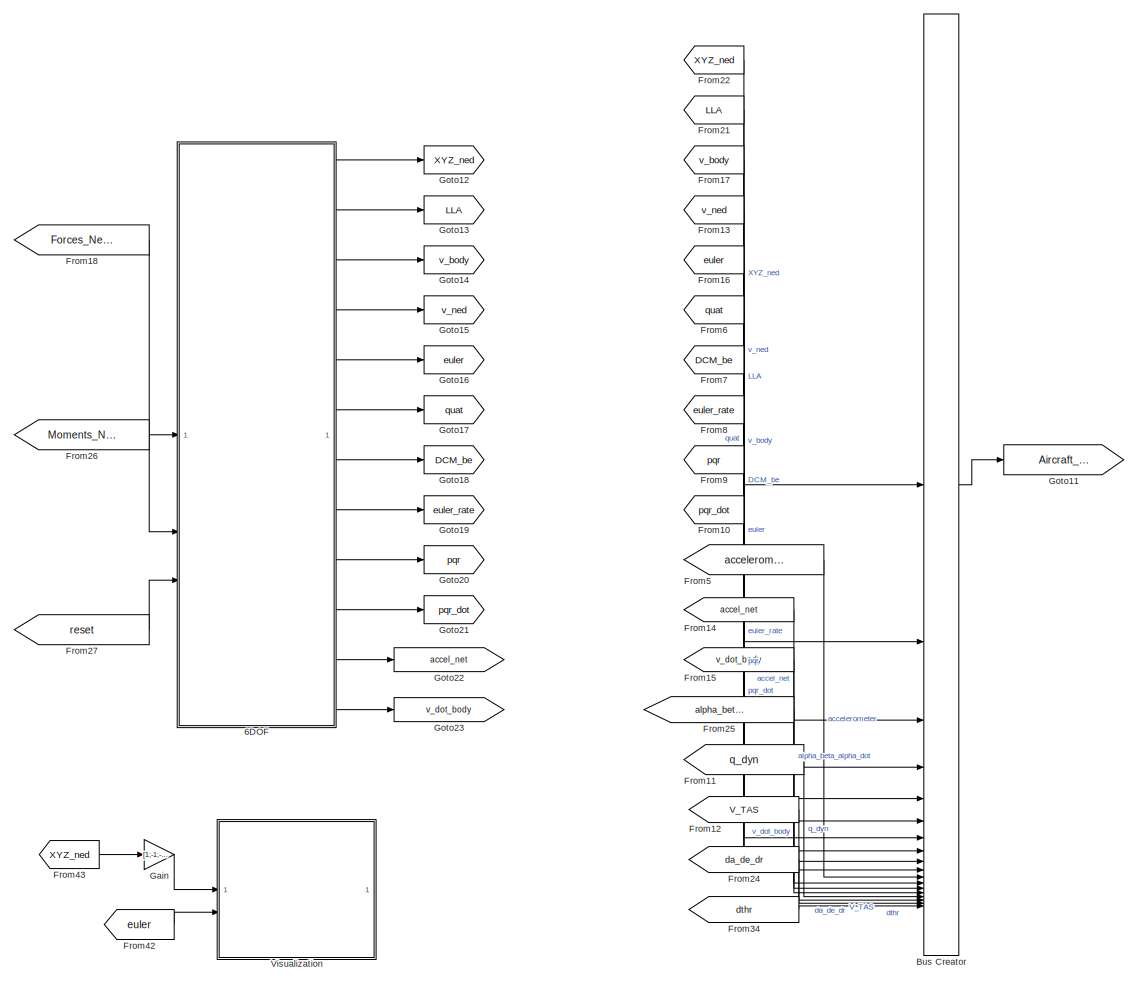
[diagram: root canvas - part 1/4, right side, full height]
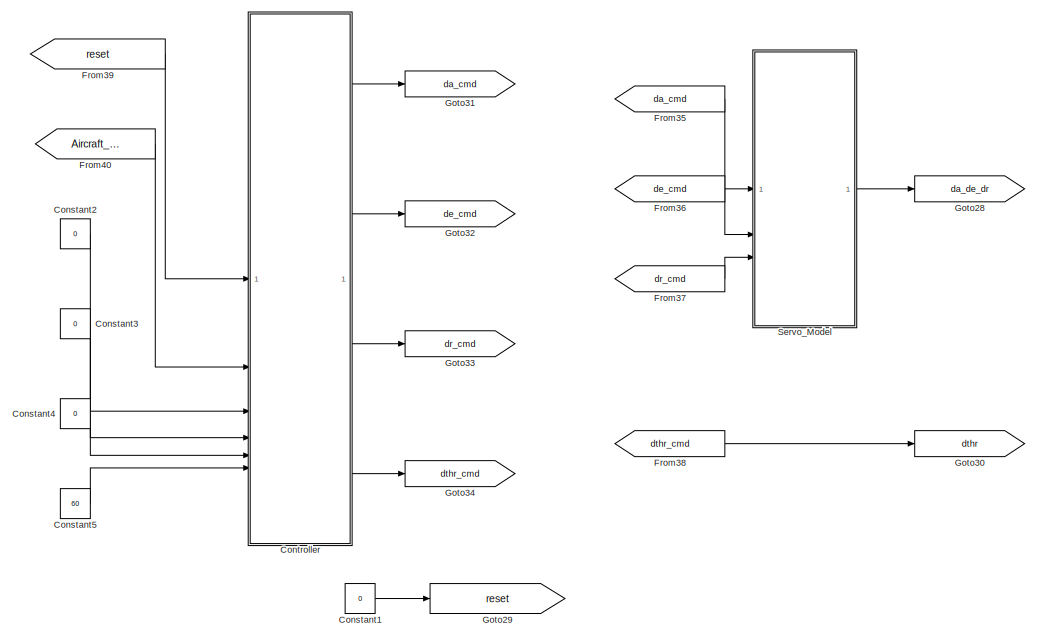
[diagram: root canvas - part 2/4, middle left region]
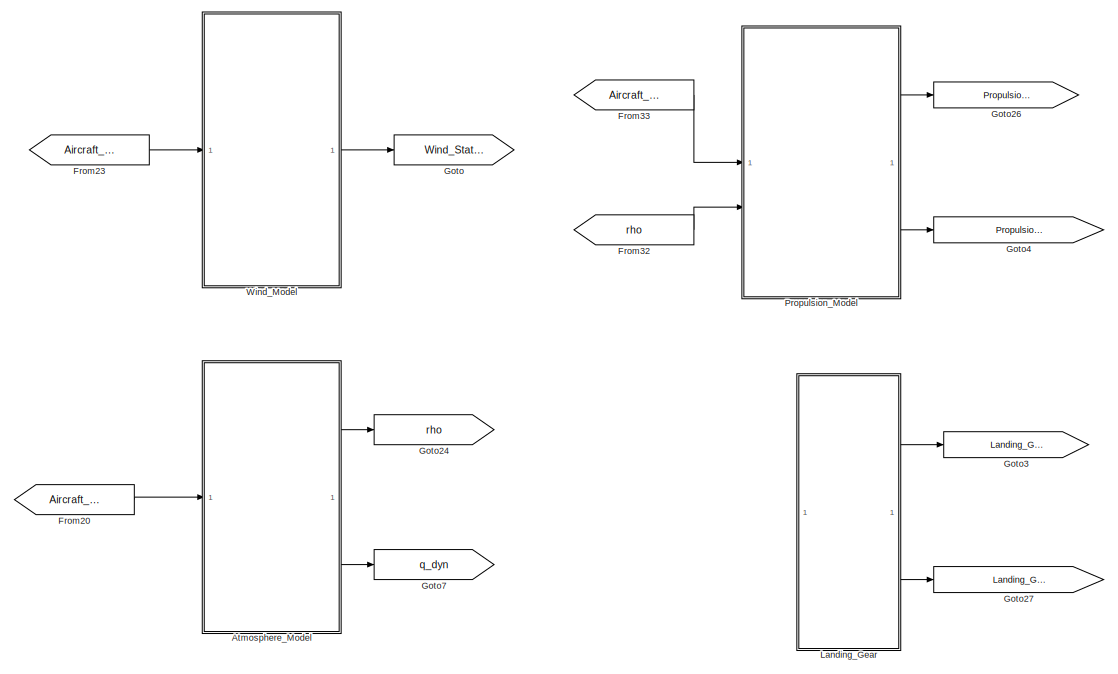
[diagram: root canvas - part 3/4, central region]
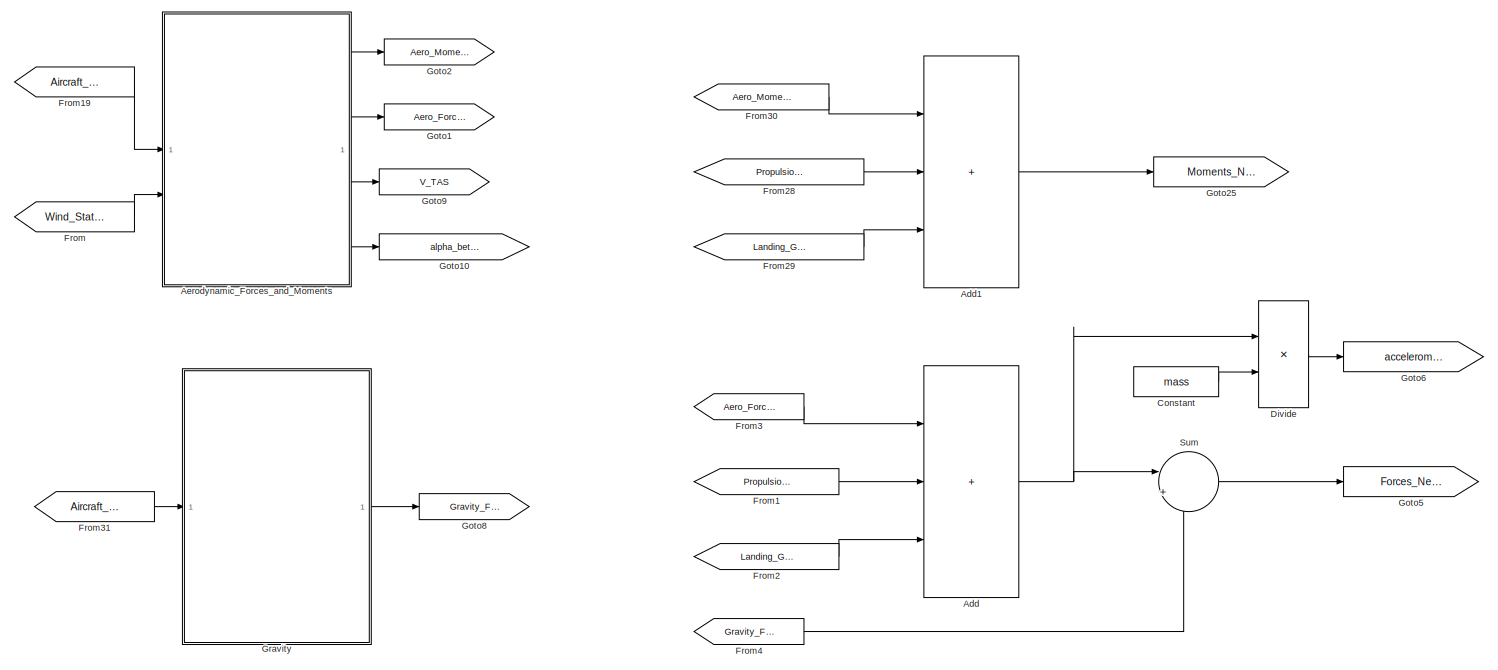
[diagram: root canvas - part 4/4, central region]
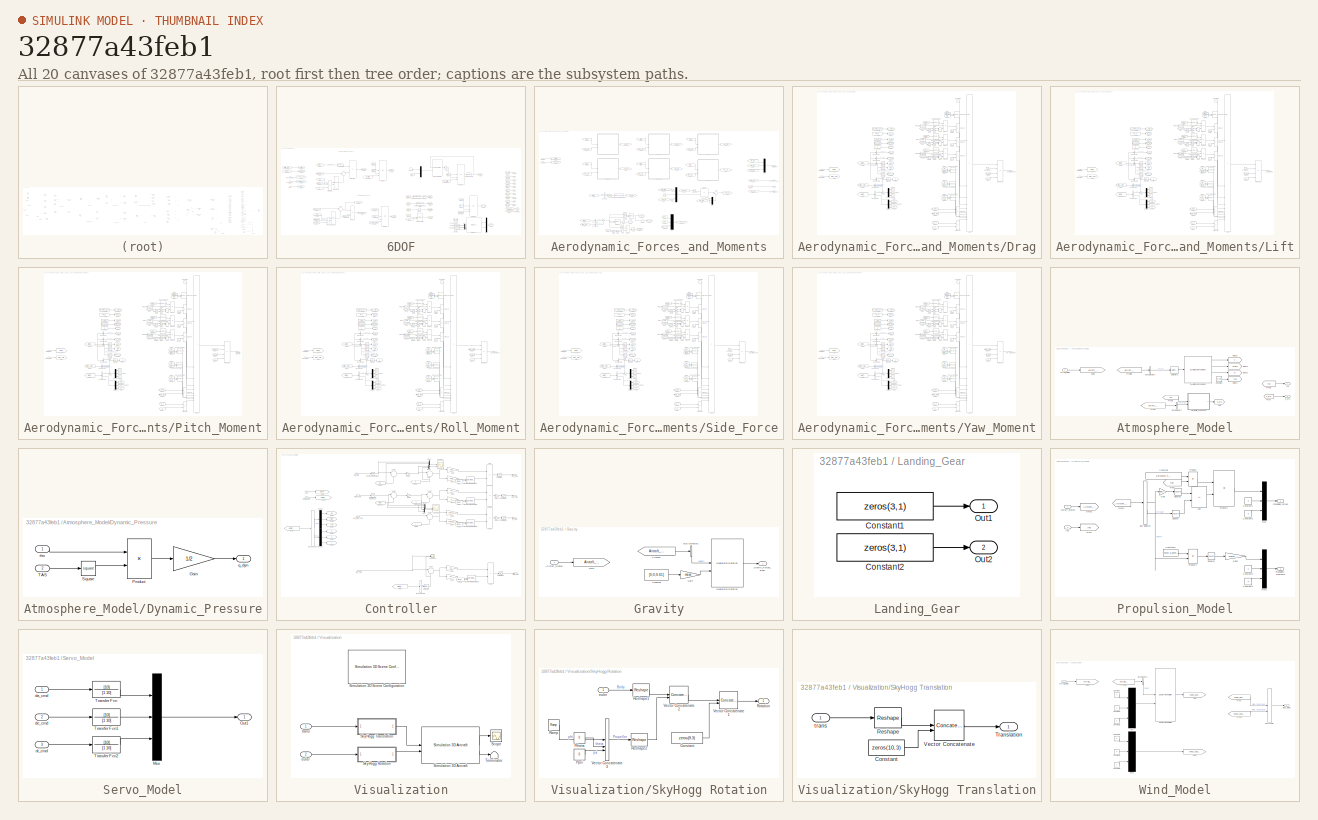
[diagram: thumbnail index - all 20 canvases of the model, root first then tree order]
MODEL slx_32877a43feb1
KIND model
CONFIG AbsTol = auto
CONFIG EnableMultiTasking = off
CONFIG FixedStep = model_sampling_time
CONFIG InitFcn = run("Parameters.m")\n
CONFIG MaxStep = auto
CONFIG MinStep = auto
CONFIG RelTol = 1e-3
CONFIG SampleTimeConstraint = Unconstrained
CONFIG SolverName = FixedStepAuto
CONFIG StartTime = 0.0
CONFIG StopTime = inf
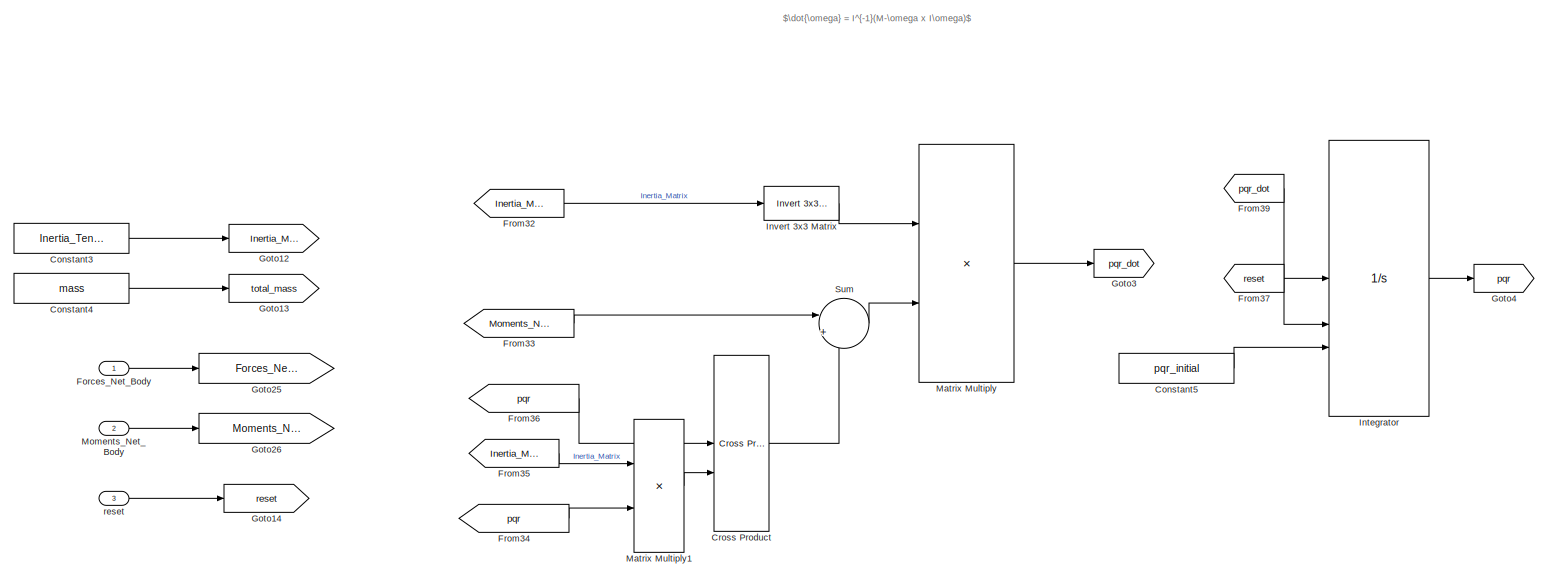
[diagram: 6DOF - part 1/5, top left region]
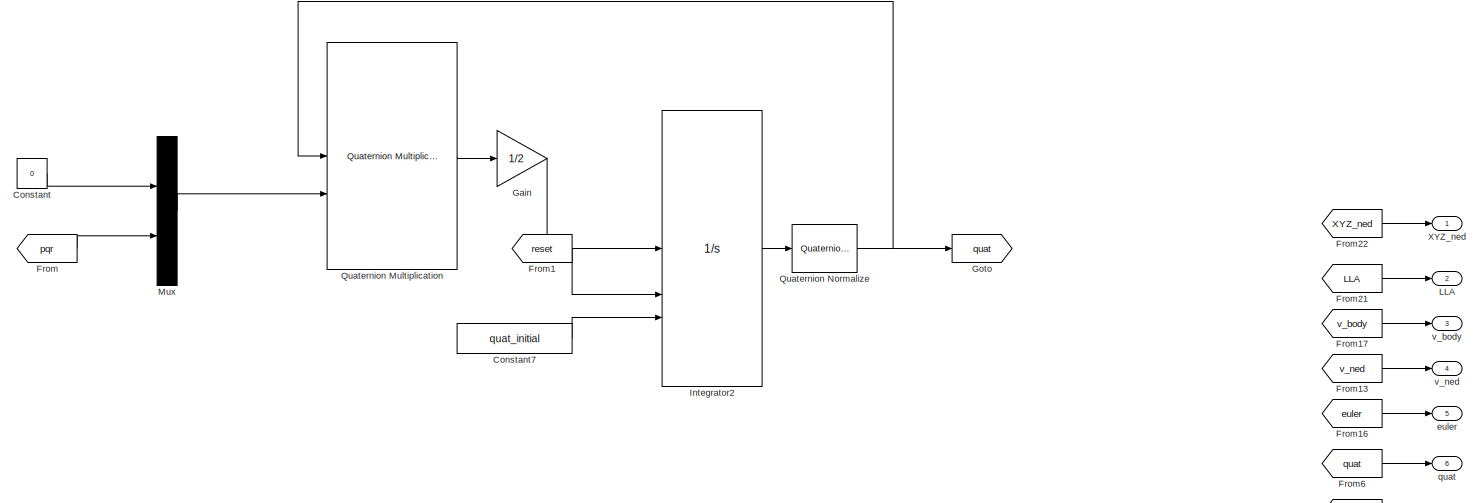
[diagram: 6DOF - part 2/5, top right region]
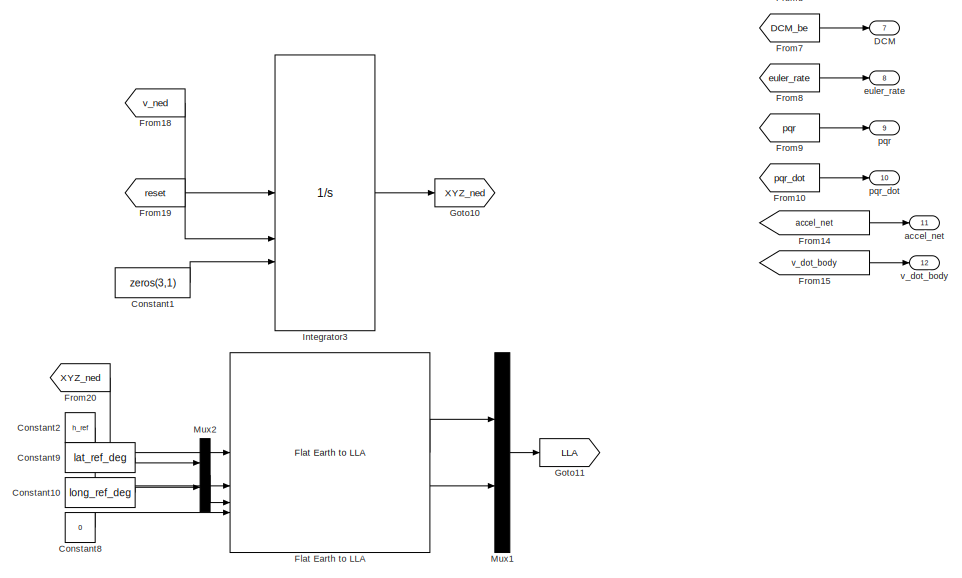
[diagram: 6DOF - part 3/5, bottom right region]
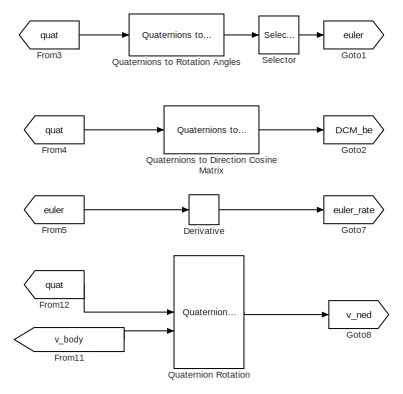
[diagram: 6DOF - part 4/5, bottom center region]
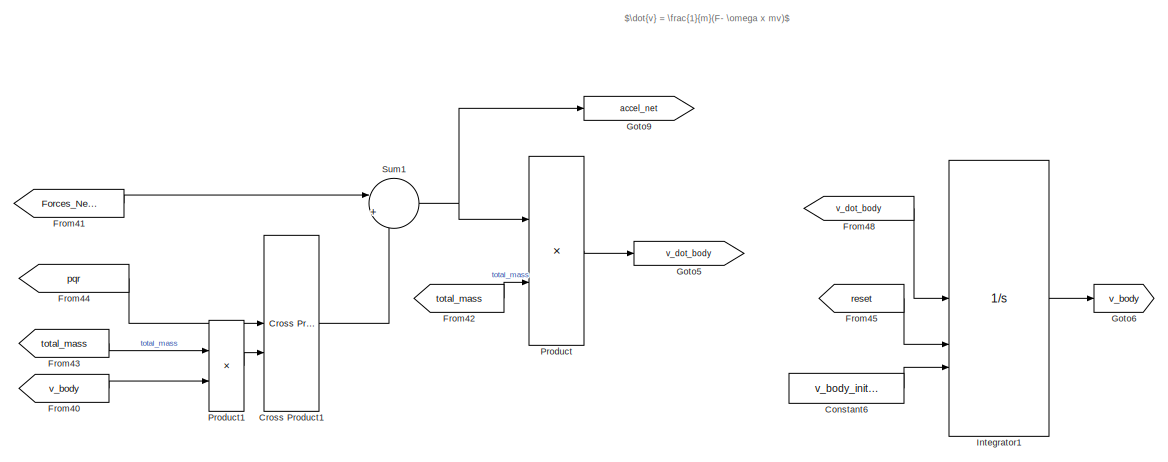
[diagram: 6DOF - part 5/5, bottom left region]
BLOCK [SubSystem] 6DOF
BLOCK [Constant] 6DOF/Constant
  Value = 0
BLOCK [Constant] 6DOF/Constant1
  Value = zeros(3,1)
BLOCK [Constant] 6DOF/Constant10
  Value = long_ref_deg
BLOCK [Constant] 6DOF/Constant2
  Value = h_ref
BLOCK [Constant] 6DOF/Constant3
  Value = Inertia_Tensor
BLOCK [Constant] 6DOF/Constant4
  Value = mass
BLOCK [Constant] 6DOF/Constant5
  Value = pqr_initial
BLOCK [Constant] 6DOF/Constant6
  Value = v_body_initial
BLOCK [Constant] 6DOF/Constant7
  Value = quat_initial
BLOCK [Constant] 6DOF/Constant8
  Value = 0
BLOCK [Constant] 6DOF/Constant9
  Value = lat_ref_deg
BLOCK [Reference] 6DOF/Cross Product  REF=matrix_library/Cross Product
  LibrarySourceBlock = simulink/Matrix\nOperations/Cross Product
  SourceBlock = matrix_library/Cross Product
  SourceType = CrossProduct
BLOCK [Reference] 6DOF/Cross Product1  REF=matrix_library/Cross Product
  LibrarySourceBlock = simulink/Matrix\nOperations/Cross Product
  SourceBlock = matrix_library/Cross Product
  SourceType = CrossProduct
BLOCK [Outport] 6DOF/DCM
  Port = 7
BLOCK [Derivative] 6DOF/Derivative
BLOCK [Reference] 6DOF/Flat Earth to LLA  REF=aerolibtransform2/Flat Earth to LLA
  SourceBlock = aerolibtransform2/Flat Earth to LLA
  SourceType = Flat Earth to LLA
BLOCK [Inport] 6DOF/Forces_Net_Body
BLOCK [From] 6DOF/From
  GotoTag = pqr
BLOCK [From] 6DOF/From1
  GotoTag = reset
BLOCK [From] 6DOF/From10
  GotoTag = pqr_dot
BLOCK [From] 6DOF/From11
  GotoTag = v_body
BLOCK [From] 6DOF/From12
  GotoTag = quat
BLOCK [From] 6DOF/From13
  GotoTag = v_ned
BLOCK [From] 6DOF/From14
  GotoTag = accel_net
BLOCK [From] 6DOF/From15
  GotoTag = v_dot_body
BLOCK [From] 6DOF/From16
  GotoTag = euler
BLOCK [From] 6DOF/From17
  GotoTag = v_body
BLOCK [From] 6DOF/From18
  GotoTag = v_ned
BLOCK [From] 6DOF/From19
  GotoTag = reset
BLOCK [From] 6DOF/From20
  GotoTag = XYZ_ned
BLOCK [From] 6DOF/From21
  GotoTag = LLA
BLOCK [From] 6DOF/From22
  GotoTag = XYZ_ned
BLOCK [From] 6DOF/From3
  GotoTag = quat
BLOCK [From] 6DOF/From32
  GotoTag = Inertia_Matrix
BLOCK [From] 6DOF/From33
  GotoTag = Moments_Net_Body
BLOCK [From] 6DOF/From34
  GotoTag = pqr
BLOCK [From] 6DOF/From35
  GotoTag = Inertia_Matrix
BLOCK [From] 6DOF/From36
  GotoTag = pqr
BLOCK [From] 6DOF/From37
  GotoTag = reset
BLOCK [From] 6DOF/From39
  GotoTag = pqr_dot
BLOCK [From] 6DOF/From4
  GotoTag = quat
BLOCK [From] 6DOF/From40
  GotoTag = v_body
BLOCK [From] 6DOF/From41
  GotoTag = Forces_Net_Body
BLOCK [From] 6DOF/From42
  GotoTag = total_mass
BLOCK [From] 6DOF/From43
  GotoTag = total_mass
BLOCK [From] 6DOF/From44
  GotoTag = pqr
BLOCK [From] 6DOF/From45
  GotoTag = reset
BLOCK [From] 6DOF/From48
  GotoTag = v_dot_body
BLOCK [From] 6DOF/From5
  GotoTag = euler
BLOCK [From] 6DOF/From6
  GotoTag = quat
BLOCK [From] 6DOF/From7
  GotoTag = DCM_be
BLOCK [From] 6DOF/From8
  GotoTag = euler_rate
BLOCK [From] 6DOF/From9
  GotoTag = pqr
BLOCK [Gain] 6DOF/Gain
  Gain = 1/2
BLOCK [Goto] 6DOF/Goto
  GotoTag = quat
BLOCK [Goto] 6DOF/Goto1
  GotoTag = euler
BLOCK [Goto] 6DOF/Goto10
  GotoTag = XYZ_ned
BLOCK [Goto] 6DOF/Goto11
  GotoTag = LLA
BLOCK [Goto] 6DOF/Goto12
  GotoTag = Inertia_Matrix
BLOCK [Goto] 6DOF/Goto13
  GotoTag = total_mass
BLOCK [Goto] 6DOF/Goto14
  GotoTag = reset
BLOCK [Goto] 6DOF/Goto2
  GotoTag = DCM_be
BLOCK [Goto] 6DOF/Goto25
  GotoTag = Forces_Net_Body
BLOCK [Goto] 6DOF/Goto26
  GotoTag = Moments_Net_Body
BLOCK [Goto] 6DOF/Goto3
  GotoTag = pqr_dot
BLOCK [Goto] 6DOF/Goto4
  GotoTag = pqr
BLOCK [Goto] 6DOF/Goto5
  GotoTag = v_dot_body
BLOCK [Goto] 6DOF/Goto6
  GotoTag = v_body
BLOCK [Goto] 6DOF/Goto7
  GotoTag = euler_rate
BLOCK [Goto] 6DOF/Goto8
  GotoTag = v_ned
BLOCK [Goto] 6DOF/Goto9
  GotoTag = accel_net
BLOCK [Integrator] 6DOF/Integrator
  ExternalReset = rising
  InitialConditionSource = external
BLOCK [Integrator] 6DOF/Integrator1
  ExternalReset = rising
  InitialConditionSource = external
BLOCK [Integrator] 6DOF/Integrator2
  ExternalReset = rising
  InitialConditionSource = external
BLOCK [Integrator] 6DOF/Integrator3
  ExternalReset = rising
  InitialConditionSource = external
BLOCK [Reference] 6DOF/Invert 3x3 Matrix  REF=aerolibutil/Invert 
3x3 Matrix
  SourceBlock = aerolibutil/Invert \n3x3 Matrix
  SourceType = Invert 3x3 Matrix
BLOCK [Outport] 6DOF/LLA
  Port = 2
BLOCK [Product] 6DOF/Matrix Multiply
  Multiplication = Matrix(*)
BLOCK [Product] 6DOF/Matrix Multiply1
  Multiplication = Matrix(*)
BLOCK [Inport] 6DOF/Moments_Net_Body
  Port = 2
BLOCK [Mux] 6DOF/Mux
  DisplayOption = bar
  Inputs = 2
BLOCK [Mux] 6DOF/Mux1
  DisplayOption = bar
  Inputs = 2
BLOCK [Mux] 6DOF/Mux2
  DisplayOption = bar
  Inputs = 2
BLOCK [Product] 6DOF/Product
  Inputs = */
BLOCK [Product] 6DOF/Product1
BLOCK [Reference] 6DOF/Quaternion Multiplication  REF=aerolibutil/Quaternion
Multiplication
  SourceBlock = aerolibutil/Quaternion\nMultiplication
  SourceType = Quaternion Multiplication
BLOCK [Reference] 6DOF/Quaternion Normalize  REF=sharedutil/Quaternion
Normalize
  LibrarySourceBlock = aerolibutil/Quaternion\nNormalize
  SourceBlock = sharedutil/Quaternion\nNormalize
  SourceType = Quaternion Normalize
BLOCK [Reference] 6DOF/Quaternion Rotation  REF=aerolibutil/Quaternion
Rotation
  SourceBlock = aerolibutil/Quaternion\nRotation
  SourceType = Quaternion Rotation
BLOCK [Reference] 6DOF/Quaternions to Direction Cosine Matrix  REF=sharedtransform/Quaternions to 
Direction Cosine Matrix
  LibrarySourceBlock = aerolibtransform2/Quaternions to \nDirection Cosine Matrix
  SourceBlock = sharedtransform/Quaternions to \nDirection Cosine Matrix
  SourceType = Quaternion2DCM
BLOCK [Reference] 6DOF/Quaternions to Rotation Angles  REF=sharedtransform/Quaternions to Rotation Angles
  AttributesFormatString = Rotation Order: %<rotationOrder>
  LibrarySourceBlock = aerolibtransform2/Quaternions to Rotation Angles
  SourceBlock = sharedtransform/Quaternions to Rotation Angles
  SourceType = Quat2Ang
BLOCK [Selector] 6DOF/Selector
  IndexOptions = Index vector (dialog)
  Indices = [3 2 1]
  InputPortWidth = 3
  OutputSizes = 1
BLOCK [Sum] 6DOF/Sum
  Inputs = |+-
BLOCK [Sum] 6DOF/Sum1
  Inputs = |+-
BLOCK [Outport] 6DOF/XYZ_ned
BLOCK [Outport] 6DOF/accel_net
  Port = 11
BLOCK [Outport] 6DOF/euler
  Port = 5
BLOCK [Outport] 6DOF/euler_rate
  Port = 8
BLOCK [Outport] 6DOF/pqr
  Port = 9
BLOCK [Outport] 6DOF/pqr_dot
  Port = 10
BLOCK [Outport] 6DOF/quat
  Port = 6
BLOCK [Inport] 6DOF/reset
  Port = 3
BLOCK [Outport] 6DOF/v_body
  Port = 3
BLOCK [Outport] 6DOF/v_dot_body
  Port = 12
BLOCK [Outport] 6DOF/v_ned
  Port = 4
BLOCK [Sum] Add
  IconShape = rectangular
  Inputs = +++
BLOCK [Sum] Add1
  IconShape = rectangular
  Inputs = +++
BLOCK [SubSystem] Aerodynamic_Forces_and_Moments
BLOCK [Sum] Aerodynamic_Forces_and_Moments/Add2
  IconShape = rectangular
BLOCK [Outport] Aerodynamic_Forces_and_Moments/Aero_Forces_Body
  Port = 2
BLOCK [Outport] Aerodynamic_Forces_and_Moments/Aero_Moments_Body
BLOCK [Inport] Aerodynamic_Forces_and_Moments/Aircraft_States
BLOCK [Trigonometry] Aerodynamic_Forces_and_Moments/Asin
  Operator = asin
BLOCK [Trigonometry] Aerodynamic_Forces_and_Moments/Atan2
  Operator = atan2
BLOCK [BusSelector] Aerodynamic_Forces_and_Moments/Bus Selector
  OutputSignals = alpha_beta_alpha_dot
BLOCK [BusSelector] Aerodynamic_Forces_and_Moments/Bus Selector1
  OutputSignals = Wind_Linear_Body
BLOCK [BusSelector] Aerodynamic_Forces_and_Moments/Bus Selector2
  OutputSignals = v_body
BLOCK [Constant] Aerodynamic_Forces_and_Moments/Constant
  Value = 0
BLOCK [Constant] Aerodynamic_Forces_and_Moments/Constant1
  Value = 0
BLOCK [Derivative] Aerodynamic_Forces_and_Moments/Derivative
BLOCK [Reference] Aerodynamic_Forces_and_Moments/Direction Cosine Matrix Body to Wind  REF=aerolibtransform2/Direction Cosine Matrix
Body to Wind
  SourceBlock = aerolibtransform2/Direction Cosine Matrix\nBody to Wind
  SourceType = DCM Body to Wind
BLOCK [Product] Aerodynamic_Forces_and_Moments/Divide
  Inputs = */
BLOCK [DotProduct] Aerodynamic_Forces_and_Moments/Dot Product
  OutDataTypeStr = Inherit: Inherit via internal rule
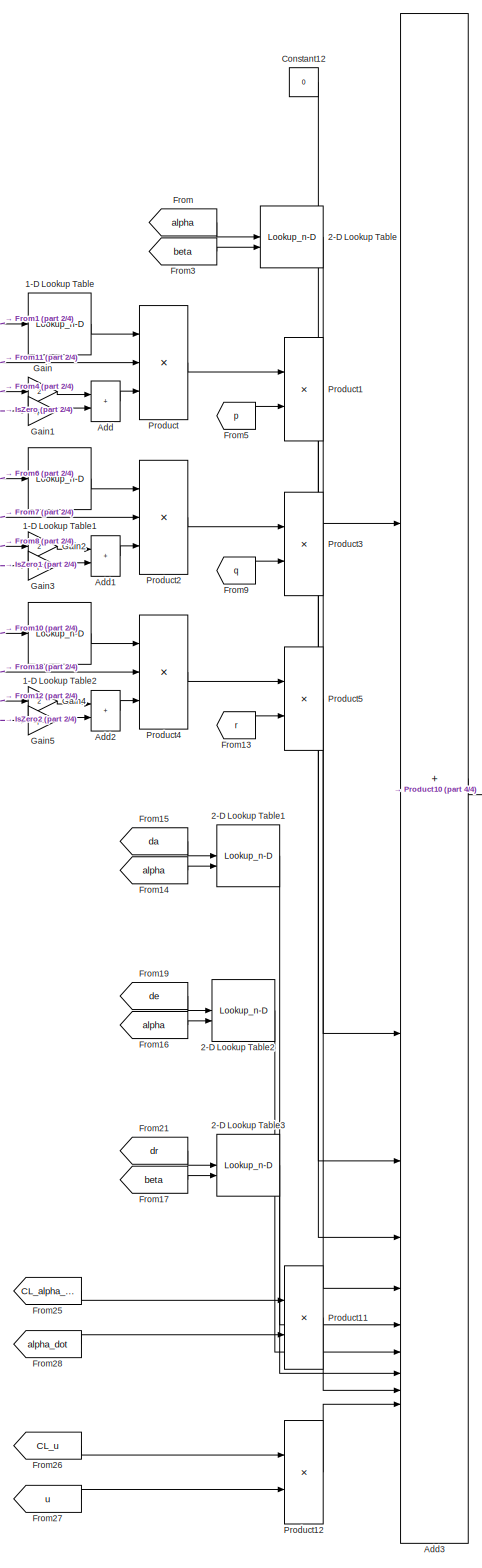
[diagram: Aerodynamic_Forces_and_Moments/Drag - part 1/4, right side, full height]
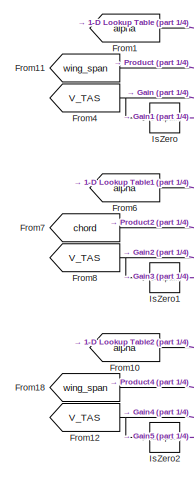
[diagram: Aerodynamic_Forces_and_Moments/Drag - part 2/4, central region]
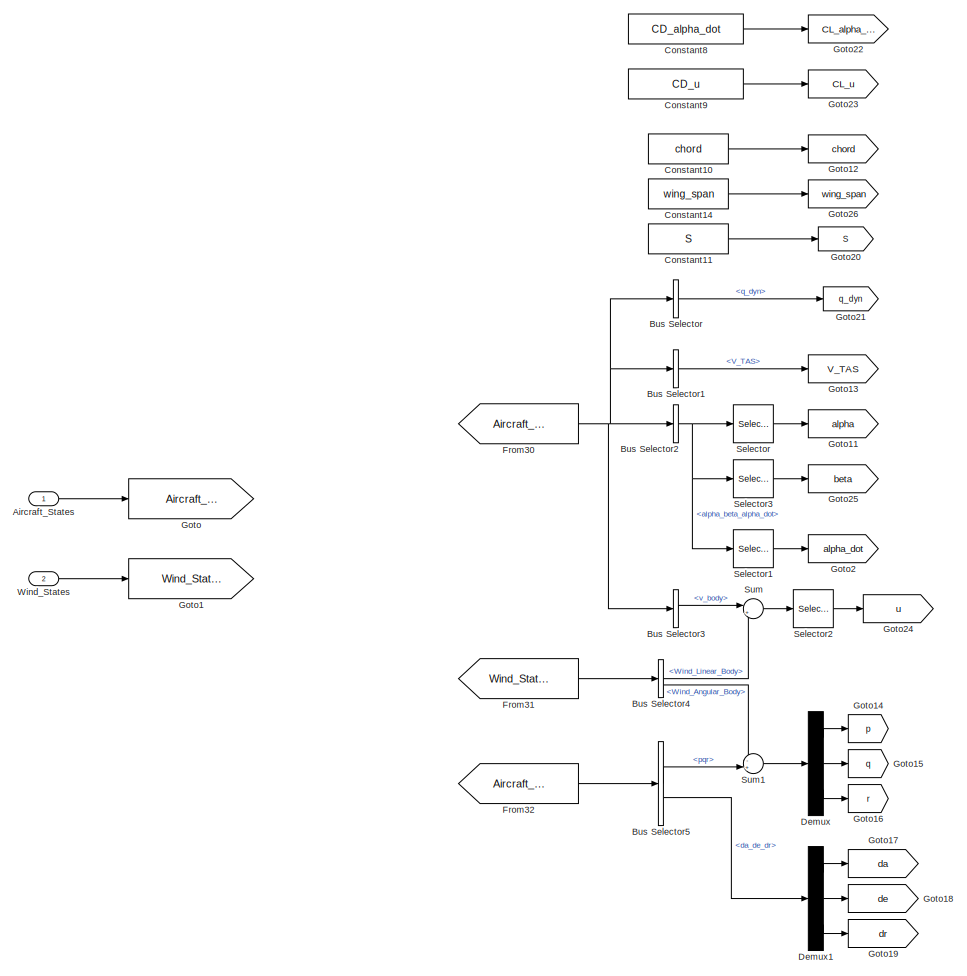
[diagram: Aerodynamic_Forces_and_Moments/Drag - part 3/4, middle left region]
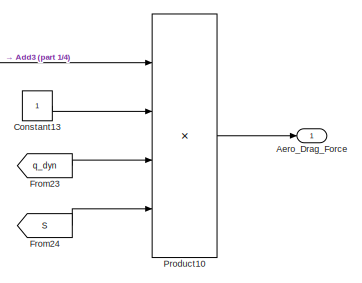
[diagram: Aerodynamic_Forces_and_Moments/Drag - part 4/4, middle right region]
BLOCK [SubSystem] Aerodynamic_Forces_and_Moments/Drag
BLOCK [Lookup_n-D] Aerodynamic_Forces_and_Moments/Drag/1-D Lookup Table
  BreakpointsForDimension1 = Alpha
  InputPortMap = u0
  InternalRulePriority = Speed
  NumberOfTableDimensions = 1
  RndMeth = Simplest
  Table = CDp
BLOCK [Lookup_n-D] Aerodynamic_Forces_and_Moments/Drag/1-D Lookup Table1
  BreakpointsForDimension1 = Alpha
  InputPortMap = u0
  InternalRulePriority = Speed
  NumberOfTableDimensions = 1
  RndMeth = Simplest
  Table = CDq
BLOCK [Lookup_n-D] Aerodynamic_Forces_and_Moments/Drag/1-D Lookup Table2
  BreakpointsForDimension1 = Alpha
  InputPortMap = u0
  InternalRulePriority = Speed
  NumberOfTableDimensions = 1
  RndMeth = Simplest
  Table = CDr
BLOCK [Lookup_n-D] Aerodynamic_Forces_and_Moments/Drag/2-D Lookup Table
  BreakpointsForDimension1 = Alpha
  BreakpointsForDimension2 = Beta
  InputPortMap = u0,u1
  InternalRulePriority = Speed
  RndMeth = Simplest
  Table = CD_alpha_beta
BLOCK [Lookup_n-D] Aerodynamic_Forces_and_Moments/Drag/2-D Lookup Table1
  BreakpointsForDimension1 = da
  BreakpointsForDimension2 = Alpha
  InputPortMap = u0,u1
  InternalRulePriority = Speed
  RndMeth = Simplest
  Table = CDda
BLOCK [Lookup_n-D] Aerodynamic_Forces_and_Moments/Drag/2-D Lookup Table2
  BreakpointsForDimension1 = da
  BreakpointsForDimension2 = Alpha
  InputPortMap = u0,u1
  InternalRulePriority = Speed
  RndMeth = Simplest
  Table = CDde
BLOCK [Lookup_n-D] Aerodynamic_Forces_and_Moments/Drag/2-D Lookup Table3
  BreakpointsForDimension1 = dr
  BreakpointsForDimension2 = Beta
  InputPortMap = u0,u1
  InternalRulePriority = Speed
  RndMeth = Simplest
  Table = CDdr
BLOCK [Sum] Aerodynamic_Forces_and_Moments/Drag/Add
  IconShape = rectangular
BLOCK [Sum] Aerodynamic_Forces_and_Moments/Drag/Add1
  IconShape = rectangular
BLOCK [Sum] Aerodynamic_Forces_and_Moments/Drag/Add2
  IconShape = rectangular
BLOCK [Sum] Aerodynamic_Forces_and_Moments/Drag/Add3
  IconShape = rectangular
  Inputs = 10
BLOCK [Outport] Aerodynamic_Forces_and_Moments/Drag/Aero_Drag_Force
  Unit = N*m
BLOCK [Inport] Aerodynamic_Forces_and_Moments/Drag/Aircraft_States
BLOCK [BusSelector] Aerodynamic_Forces_and_Moments/Drag/Bus Selector
  OutputSignals = q_dyn
BLOCK [BusSelector] Aerodynamic_Forces_and_Moments/Drag/Bus Selector1
  OutputSignals = V_TAS
BLOCK [BusSelector] Aerodynamic_Forces_and_Moments/Drag/Bus Selector2
  OutputSignals = alpha_beta_alpha_dot
BLOCK [BusSelector] Aerodynamic_Forces_and_Moments/Drag/Bus Selector3
  OutputSignals = v_body
BLOCK [BusSelector] Aerodynamic_Forces_and_Moments/Drag/Bus Selector4
  OutputSignals = Wind_Linear_Body,Wind_Angular_Body
BLOCK [BusSelector] Aerodynamic_Forces_and_Moments/Drag/Bus Selector5
  OutputSignals = pqr,da_de_dr
BLOCK [Constant] Aerodynamic_Forces_and_Moments/Drag/Constant10
  Value = chord
BLOCK [Constant] Aerodynamic_Forces_and_Moments/Drag/Constant11
  Value = S
BLOCK [Constant] Aerodynamic_Forces_and_Moments/Drag/Constant12
  Value = 0
BLOCK [Constant] Aerodynamic_Forces_and_Moments/Drag/Constant13
BLOCK [Constant] Aerodynamic_Forces_and_Moments/Drag/Constant14
  Value = wing_span
BLOCK [Constant] Aerodynamic_Forces_and_Moments/Drag/Constant8
  Value = CD_alpha_dot
BLOCK [Constant] Aerodynamic_Forces_and_Moments/Drag/Constant9
  Value = CD_u
BLOCK [Demux] Aerodynamic_Forces_and_Moments/Drag/Demux
  Outputs = 3
BLOCK [Demux] Aerodynamic_Forces_and_Moments/Drag/Demux1
  Outputs = 3
BLOCK [From] Aerodynamic_Forces_and_Moments/Drag/From
  GotoTag = alpha
BLOCK [From] Aerodynamic_Forces_and_Moments/Drag/From1
  GotoTag = alpha
BLOCK [From] Aerodynamic_Forces_and_Moments/Drag/From10
  GotoTag = alpha
BLOCK [From] Aerodynamic_Forces_and_Moments/Drag/From11
  GotoTag = wing_span
BLOCK [From] Aerodynamic_Forces_and_Moments/Drag/From12
  GotoTag = V_TAS
BLOCK [From] Aerodynamic_Forces_and_Moments/Drag/From13
  GotoTag = r
BLOCK [From] Aerodynamic_Forces_and_Moments/Drag/From14
  GotoTag = alpha
BLOCK [From] Aerodynamic_Forces_and_Moments/Drag/From15
  GotoTag = da
BLOCK [From] Aerodynamic_Forces_and_Moments/Drag/From16
  GotoTag = alpha
BLOCK [From] Aerodynamic_Forces_and_Moments/Drag/From17
  GotoTag = beta
BLOCK [From] Aerodynamic_Forces_and_Moments/Drag/From18
  GotoTag = wing_span
BLOCK [From] Aerodynamic_Forces_and_Moments/Drag/From19
  GotoTag = de
BLOCK [From] Aerodynamic_Forces_and_Moments/Drag/From21
  GotoTag = dr
BLOCK [From] Aerodynamic_Forces_and_Moments/Drag/From23
  GotoTag = q_dyn
BLOCK [From] Aerodynamic_Forces_and_Moments/Drag/From24
  GotoTag = S
BLOCK [From] Aerodynamic_Forces_and_Moments/Drag/From25
  GotoTag = CL_alpha_dot
BLOCK [From] Aerodynamic_Forces_and_Moments/Drag/From26
  GotoTag = CL_u
BLOCK [From] Aerodynamic_Forces_and_Moments/Drag/From27
  GotoTag = u
BLOCK [From] Aerodynamic_Forces_and_Moments/Drag/From28
  GotoTag = alpha_dot
BLOCK [From] Aerodynamic_Forces_and_Moments/Drag/From3
  GotoTag = beta
BLOCK [From] Aerodynamic_Forces_and_Moments/Drag/From30
  GotoTag = Aircraft_States
BLOCK [From] Aerodynamic_Forces_and_Moments/Drag/From31
  GotoTag = Wind_States
BLOCK [From] Aerodynamic_Forces_and_Moments/Drag/From32
  GotoTag = Aircraft_States
BLOCK [From] Aerodynamic_Forces_and_Moments/Drag/From4
  GotoTag = V_TAS
BLOCK [From] Aerodynamic_Forces_and_Moments/Drag/From5
  GotoTag = p
BLOCK [From] Aerodynamic_Forces_and_Moments/Drag/From6
  GotoTag = alpha
BLOCK [From] Aerodynamic_Forces_and_Moments/Drag/From7
  GotoTag = chord
BLOCK [From] Aerodynamic_Forces_and_Moments/Drag/From8
  GotoTag = V_TAS
BLOCK [From] Aerodynamic_Forces_and_Moments/Drag/From9
  GotoTag = q
BLOCK [Gain] Aerodynamic_Forces_and_Moments/Drag/Gain
  Gain = 2
BLOCK [Gain] Aerodynamic_Forces_and_Moments/Drag/Gain1
  Gain = eps
BLOCK [Gain] Aerodynamic_Forces_and_Moments/Drag/Gain2
  Gain = 2
BLOCK [Gain] Aerodynamic_Forces_and_Moments/Drag/Gain3
  Gain = eps
BLOCK [Gain] Aerodynamic_Forces_and_Moments/Drag/Gain4
  Gain = 2
BLOCK [Gain] Aerodynamic_Forces_and_Moments/Drag/Gain5
  Gain = eps
BLOCK [Goto] Aerodynamic_Forces_and_Moments/Drag/Goto
  GotoTag = Aircraft_States
BLOCK [Goto] Aerodynamic_Forces_and_Moments/Drag/Goto1
  GotoTag = Wind_States
BLOCK [Goto] Aerodynamic_Forces_and_Moments/Drag/Goto11
  GotoTag = alpha
BLOCK [Goto] Aerodynamic_Forces_and_Moments/Drag/Goto12
  GotoTag = chord
BLOCK [Goto] Aerodynamic_Forces_and_Moments/Drag/Goto13
  GotoTag = V_TAS
BLOCK [Goto] Aerodynamic_Forces_and_Moments/Drag/Goto14
  GotoTag = p
BLOCK [Goto] Aerodynamic_Forces_and_Moments/Drag/Goto15
  GotoTag = q
BLOCK [Goto] Aerodynamic_Forces_and_Moments/Drag/Goto16
  GotoTag = r
BLOCK [Goto] Aerodynamic_Forces_and_Moments/Drag/Goto17
  GotoTag = da
BLOCK [Goto] Aerodynamic_Forces_and_Moments/Drag/Goto18
  GotoTag = de
BLOCK [Goto] Aerodynamic_Forces_and_Moments/Drag/Goto19
  GotoTag = dr
BLOCK [Goto] Aerodynamic_Forces_and_Moments/Drag/Goto2
  GotoTag = alpha_dot
BLOCK [Goto] Aerodynamic_Forces_and_Moments/Drag/Goto20
  GotoTag = S
BLOCK [Goto] Aerodynamic_Forces_and_Moments/Drag/Goto21
  GotoTag = q_dyn
BLOCK [Goto] Aerodynamic_Forces_and_Moments/Drag/Goto22
  GotoTag = CL_alpha_dot
BLOCK [Goto] Aerodynamic_Forces_and_Moments/Drag/Goto23
  GotoTag = CL_u
BLOCK [Goto] Aerodynamic_Forces_and_Moments/Drag/Goto24
  GotoTag = u
BLOCK [Goto] Aerodynamic_Forces_and_Moments/Drag/Goto25
  GotoTag = beta
BLOCK [Goto] Aerodynamic_Forces_and_Moments/Drag/Goto26
  GotoTag = wing_span
BLOCK [Reference] Aerodynamic_Forces_and_Moments/Drag/IsZero  REF=simulink/Logic and Bit
Operations/Compare
To Zero
  LibrarySourceBlock = simulink/Quick Insert/Logic and Bit\nOperations/IsZero
  SourceBlock = simulink/Logic and Bit\nOperations/Compare\nTo Zero
  SourceType = Compare To Zero
BLOCK [Reference] Aerodynamic_Forces_and_Moments/Drag/IsZero1  REF=simulink/Logic and Bit
Operations/Compare
To Zero
  LibrarySourceBlock = simulink/Quick Insert/Logic and Bit\nOperations/IsZero
  SourceBlock = simulink/Logic and Bit\nOperations/Compare\nTo Zero
  SourceType = Compare To Zero
BLOCK [Reference] Aerodynamic_Forces_and_Moments/Drag/IsZero2  REF=simulink/Logic and Bit
Operations/Compare
To Zero
  LibrarySourceBlock = simulink/Quick Insert/Logic and Bit\nOperations/IsZero
  SourceBlock = simulink/Logic and Bit\nOperations/Compare\nTo Zero
  SourceType = Compare To Zero
BLOCK [Product] Aerodynamic_Forces_and_Moments/Drag/Product
  Inputs = **/
BLOCK [Product] Aerodynamic_Forces_and_Moments/Drag/Product1
BLOCK [Product] Aerodynamic_Forces_and_Moments/Drag/Product10
  Inputs = 4
BLOCK [Product] Aerodynamic_Forces_and_Moments/Drag/Product11
BLOCK [Product] Aerodynamic_Forces_and_Moments/Drag/Product12
BLOCK [Product] Aerodynamic_Forces_and_Moments/Drag/Product2
  Inputs = **/
BLOCK [Product] Aerodynamic_Forces_and_Moments/Drag/Product3
BLOCK [Product] Aerodynamic_Forces_and_Moments/Drag/Product4
  Inputs = **/
BLOCK [Product] Aerodynamic_Forces_and_Moments/Drag/Product5
BLOCK [Selector] Aerodynamic_Forces_and_Moments/Drag/Selector
  IndexOptions = Index vector (dialog)
  Indices = 1
  InputPortWidth = 3
  OutputSizes = 1
BLOCK [Selector] Aerodynamic_Forces_and_Moments/Drag/Selector1
  IndexOptions = Index vector (dialog)
  Indices = 3
  InputPortWidth = 3
  OutputSizes = 1
BLOCK [Selector] Aerodynamic_Forces_and_Moments/Drag/Selector2
  IndexOptions = Index vector (dialog)
  Indices = 1
  InputPortWidth = 3
  OutputSizes = 1
BLOCK [Selector] Aerodynamic_Forces_and_Moments/Drag/Selector3
  IndexOptions = Index vector (dialog)
  Indices = 2
  InputPortWidth = 3
  OutputSizes = 1
BLOCK [Sum] Aerodynamic_Forces_and_Moments/Drag/Sum
  Inputs = |+-
BLOCK [Sum] Aerodynamic_Forces_and_Moments/Drag/Sum1
  Inputs = -+|
BLOCK [Inport] Aerodynamic_Forces_and_Moments/Drag/Wind_States
  Port = 2
BLOCK [From] Aerodynamic_Forces_and_Moments/From
  GotoTag = Aircraft_States
BLOCK [From] Aerodynamic_Forces_and_Moments/From1
  GotoTag = Aircraft_States
BLOCK [From] Aerodynamic_Forces_and_Moments/From10
  GotoTag = Wind_States
BLOCK [From] Aerodynamic_Forces_and_Moments/From11
  GotoTag = Aero_Lift_Force
BLOCK [From] Aerodynamic_Forces_and_Moments/From12
  GotoTag = Aero_Drag_Force
BLOCK [From] Aerodynamic_Forces_and_Moments/From13
  GotoTag = DCM_wb
BLOCK [From] Aerodynamic_Forces_and_Moments/From14
  GotoTag = Wind_States
BLOCK [From] Aerodynamic_Forces_and_Moments/From15
  GotoTag = Aircraft_States
BLOCK [From] Aerodynamic_Forces_and_Moments/From16
  GotoTag = Aero_Side_Force
BLOCK [From] Aerodynamic_Forces_and_Moments/From17
  GotoTag = Aero_Roll_Moment
BLOCK [From] Aerodynamic_Forces_and_Moments/From18
  GotoTag = Aero_Pitch_Moment
BLOCK [From] Aerodynamic_Forces_and_Moments/From19
  GotoTag = Aero_Yaw_Moment
BLOCK [From] Aerodynamic_Forces_and_Moments/From2
  GotoTag = Wind_States
BLOCK [From] Aerodynamic_Forces_and_Moments/From20
  GotoTag = Aero_Forces_Body
BLOCK [From] Aerodynamic_Forces_and_Moments/From21
  GotoTag = Wind_States
BLOCK [From] Aerodynamic_Forces_and_Moments/From22
  GotoTag = V_TAS
BLOCK [From] Aerodynamic_Forces_and_Moments/From24
  GotoTag = alpha_dot
BLOCK [From] Aerodynamic_Forces_and_Moments/From25
  GotoTag = alpha_beta_alpha_dot
BLOCK [From] Aerodynamic_Forces_and_Moments/From3
  GotoTag = Aircraft_States
BLOCK [From] Aerodynamic_Forces_and_Moments/From4
  GotoTag = Wind_States
BLOCK [From] Aerodynamic_Forces_and_Moments/From5
  GotoTag = Aircraft_States
BLOCK [From] Aerodynamic_Forces_and_Moments/From6
  GotoTag = Wind_States
BLOCK [From] Aerodynamic_Forces_and_Moments/From7
  GotoTag = Aircraft_States
BLOCK [From] Aerodynamic_Forces_and_Moments/From8
  GotoTag = Wind_States
BLOCK [From] Aerodynamic_Forces_and_Moments/From85
  GotoTag = Aircraft_States
BLOCK [From] Aerodynamic_Forces_and_Moments/From86
  GotoTag = alpha
BLOCK [From] Aerodynamic_Forces_and_Moments/From87
  GotoTag = V_TAS
BLOCK [From] Aerodynamic_Forces_and_Moments/From88
  GotoTag = beta
BLOCK [From] Aerodynamic_Forces_and_Moments/From9
  GotoTag = Aircraft_States
BLOCK [Gain] Aerodynamic_Forces_and_Moments/Gain
  Gain = -1
BLOCK [Gain] Aerodynamic_Forces_and_Moments/Gain1
  Gain = -1
BLOCK [Gain] Aerodynamic_Forces_and_Moments/Gain5
  Gain = eps
BLOCK [Goto] Aerodynamic_Forces_and_Moments/Goto
  GotoTag = alpha_dot
BLOCK [Goto] Aerodynamic_Forces_and_Moments/Goto1
  GotoTag = Aircraft_States
BLOCK [Goto] Aerodynamic_Forces_and_Moments/Goto10
  GotoTag = alpha
BLOCK [Goto] Aerodynamic_Forces_and_Moments/Goto11
  GotoTag = beta
BLOCK [Goto] Aerodynamic_Forces_and_Moments/Goto12
  GotoTag = alpha_beta_alpha_dot
BLOCK [Goto] Aerodynamic_Forces_and_Moments/Goto13
  GotoTag = Aero_Forces_Body
BLOCK [Goto] Aerodynamic_Forces_and_Moments/Goto14
  GotoTag = Wind_States
BLOCK [Goto] Aerodynamic_Forces_and_Moments/Goto2
  GotoTag = Aero_Pitch_Moment
BLOCK [Goto] Aerodynamic_Forces_and_Moments/Goto3
  GotoTag = Aero_Roll_Moment
BLOCK [Goto] Aerodynamic_Forces_and_Moments/Goto4
  GotoTag = Aero_Yaw_Moment
BLOCK [Goto] Aerodynamic_Forces_and_Moments/Goto5
  GotoTag = Aero_Lift_Force
BLOCK [Goto] Aerodynamic_Forces_and_Moments/Goto6
  GotoTag = Aero_Side_Force
BLOCK [Goto] Aerodynamic_Forces_and_Moments/Goto7
  GotoTag = Aero_Drag_Force
BLOCK [Goto] Aerodynamic_Forces_and_Moments/Goto8
  GotoTag = DCM_wb
BLOCK [Goto] Aerodynamic_Forces_and_Moments/Goto9
  GotoTag = V_TAS
BLOCK [Reference] Aerodynamic_Forces_and_Moments/IsZero2  REF=simulink/Logic and Bit
Operations/Compare
To Zero
  LibrarySourceBlock = simulink/Quick Insert/Logic and Bit\nOperations/IsZero
  SourceBlock = simulink/Logic and Bit\nOperations/Compare\nTo Zero
  SourceType = Compare To Zero
BLOCK [SubSystem] Aerodynamic_Forces_and_Moments/Lift
BLOCK [Lookup_n-D] Aerodynamic_Forces_and_Moments/Lift/1-D Lookup Table
  BreakpointsForDimension1 = Alpha
  InputPortMap = u0
  InternalRulePriority = Speed
  NumberOfTableDimensions = 1
  RndMeth = Simplest
  Table = CLp
BLOCK [Lookup_n-D] Aerodynamic_Forces_and_Moments/Lift/1-D Lookup Table1
  BreakpointsForDimension1 = Alpha
  InputPortMap = u0
  InternalRulePriority = Speed
  NumberOfTableDimensions = 1
  RndMeth = Simplest
  Table = CLq
BLOCK [Lookup_n-D] Aerodynamic_Forces_and_Moments/Lift/1-D Lookup Table2
  BreakpointsForDimension1 = Alpha
  InputPortMap = u0
  InternalRulePriority = Speed
  NumberOfTableDimensions = 1
  RndMeth = Simplest
  Table = CLr
BLOCK [Lookup_n-D] Aerodynamic_Forces_and_Moments/Lift/2-D Lookup Table
  BreakpointsForDimension1 = Alpha
  BreakpointsForDimension2 = Beta
  InputPortMap = u0,u1
  InternalRulePriority = Speed
  RndMeth = Simplest
  Table = CL_alpha_beta
BLOCK [Lookup_n-D] Aerodynamic_Forces_and_Moments/Lift/2-D Lookup Table1
  BreakpointsForDimension1 = da
  BreakpointsForDimension2 = Alpha
  InputPortMap = u0,u1
  InternalRulePriority = Speed
  RndMeth = Simplest
  Table = CLda
BLOCK [Lookup_n-D] Aerodynamic_Forces_and_Moments/Lift/2-D Lookup Table2
  BreakpointsForDimension1 = da
  BreakpointsForDimension2 = Alpha
  InputPortMap = u0,u1
  InternalRulePriority = Speed
  RndMeth = Simplest
  Table = CLde
BLOCK [Lookup_n-D] Aerodynamic_Forces_and_Moments/Lift/2-D Lookup Table3
  BreakpointsForDimension1 = dr
  BreakpointsForDimension2 = Beta
  InputPortMap = u0,u1
  InternalRulePriority = Speed
  RndMeth = Simplest
  Table = CLdr
BLOCK [Sum] Aerodynamic_Forces_and_Moments/Lift/Add
  IconShape = rectangular
BLOCK [Sum] Aerodynamic_Forces_and_Moments/Lift/Add1
  IconShape = rectangular
BLOCK [Sum] Aerodynamic_Forces_and_Moments/Lift/Add2
  IconShape = rectangular
BLOCK [Sum] Aerodynamic_Forces_and_Moments/Lift/Add3
  IconShape = rectangular
  Inputs = 10
BLOCK [Outport] Aerodynamic_Forces_and_Moments/Lift/Aero_Lift_Force
  Unit = N*m
BLOCK [Inport] Aerodynamic_Forces_and_Moments/Lift/Aircraft_States
BLOCK [BusSelector] Aerodynamic_Forces_and_Moments/Lift/Bus Selector
  OutputSignals = q_dyn
BLOCK [BusSelector] Aerodynamic_Forces_and_Moments/Lift/Bus Selector1
  OutputSignals = V_TAS
BLOCK [BusSelector] Aerodynamic_Forces_and_Moments/Lift/Bus Selector2
  OutputSignals = alpha_beta_alpha_dot
BLOCK [BusSelector] Aerodynamic_Forces_and_Moments/Lift/Bus Selector3
  OutputSignals = v_body
BLOCK [BusSelector] Aerodynamic_Forces_and_Moments/Lift/Bus Selector4
  OutputSignals = Wind_Linear_Body,Wind_Angular_Body
BLOCK [BusSelector] Aerodynamic_Forces_and_Moments/Lift/Bus Selector5
  OutputSignals = pqr,da_de_dr
BLOCK [Constant] Aerodynamic_Forces_and_Moments/Lift/Constant10
  Value = chord
BLOCK [Constant] Aerodynamic_Forces_and_Moments/Lift/Constant11
  Value = S
BLOCK [Constant] Aerodynamic_Forces_and_Moments/Lift/Constant12
  Value = 0
BLOCK [Constant] Aerodynamic_Forces_and_Moments/Lift/Constant13
BLOCK [Constant] Aerodynamic_Forces_and_Moments/Lift/Constant14
  Value = wing_span
BLOCK [Constant] Aerodynamic_Forces_and_Moments/Lift/Constant8
  Value = CL_alpha_dot
BLOCK [Constant] Aerodynamic_Forces_and_Moments/Lift/Constant9
  Value = CL_u
BLOCK [Demux] Aerodynamic_Forces_and_Moments/Lift/Demux
  Outputs = 3
BLOCK [Demux] Aerodynamic_Forces_and_Moments/Lift/Demux1
  Outputs = 3
BLOCK [From] Aerodynamic_Forces_and_Moments/Lift/From
  GotoTag = alpha
BLOCK [From] Aerodynamic_Forces_and_Moments/Lift/From1
  GotoTag = alpha
BLOCK [From] Aerodynamic_Forces_and_Moments/Lift/From10
  GotoTag = alpha
BLOCK [From] Aerodynamic_Forces_and_Moments/Lift/From11
  GotoTag = wing_span
BLOCK [From] Aerodynamic_Forces_and_Moments/Lift/From12
  GotoTag = V_TAS
BLOCK [From] Aerodynamic_Forces_and_Moments/Lift/From13
  GotoTag = r
BLOCK [From] Aerodynamic_Forces_and_Moments/Lift/From14
  GotoTag = alpha
BLOCK [From] Aerodynamic_Forces_and_Moments/Lift/From15
  GotoTag = da
BLOCK [From] Aerodynamic_Forces_and_Moments/Lift/From16
  GotoTag = alpha
BLOCK [From] Aerodynamic_Forces_and_Moments/Lift/From17
  GotoTag = beta
BLOCK [From] Aerodynamic_Forces_and_Moments/Lift/From18
  GotoTag = wing_span
BLOCK [From] Aerodynamic_Forces_and_Moments/Lift/From19
  GotoTag = de
BLOCK [From] Aerodynamic_Forces_and_Moments/Lift/From21
  GotoTag = dr
BLOCK [From] Aerodynamic_Forces_and_Moments/Lift/From23
  GotoTag = q_dyn
BLOCK [From] Aerodynamic_Forces_and_Moments/Lift/From24
  GotoTag = S
BLOCK [From] Aerodynamic_Forces_and_Moments/Lift/From25
  GotoTag = CL_alpha_dot
BLOCK [From] Aerodynamic_Forces_and_Moments/Lift/From26
  GotoTag = CL_u
BLOCK [From] Aerodynamic_Forces_and_Moments/Lift/From27
  GotoTag = u
BLOCK [From] Aerodynamic_Forces_and_Moments/Lift/From28
  GotoTag = alpha_dot
BLOCK [From] Aerodynamic_Forces_and_Moments/Lift/From3
  GotoTag = beta
BLOCK [From] Aerodynamic_Forces_and_Moments/Lift/From30
  GotoTag = Aircraft_States
BLOCK [From] Aerodynamic_Forces_and_Moments/Lift/From31
  GotoTag = Wind_States
BLOCK [From] Aerodynamic_Forces_and_Moments/Lift/From32
  GotoTag = Aircraft_States
BLOCK [From] Aerodynamic_Forces_and_Moments/Lift/From4
  GotoTag = V_TAS
BLOCK [From] Aerodynamic_Forces_and_Moments/Lift/From5
  GotoTag = p
BLOCK [From] Aerodynamic_Forces_and_Moments/Lift/From6
  GotoTag = alpha
BLOCK [From] Aerodynamic_Forces_and_Moments/Lift/From7
  GotoTag = chord
BLOCK [From] Aerodynamic_Forces_and_Moments/Lift/From8
  GotoTag = V_TAS
BLOCK [From] Aerodynamic_Forces_and_Moments/Lift/From9
  GotoTag = q
BLOCK [Gain] Aerodynamic_Forces_and_Moments/Lift/Gain
  Gain = 2
BLOCK [Gain] Aerodynamic_Forces_and_Moments/Lift/Gain1
  Gain = eps
BLOCK [Gain] Aerodynamic_Forces_and_Moments/Lift/Gain2
  Gain = 2
BLOCK [Gain] Aerodynamic_Forces_and_Moments/Lift/Gain3
  Gain = eps
BLOCK [Gain] Aerodynamic_Forces_and_Moments/Lift/Gain4
  Gain = 2
BLOCK [Gain] Aerodynamic_Forces_and_Moments/Lift/Gain5
  Gain = eps
BLOCK [Goto] Aerodynamic_Forces_and_Moments/Lift/Goto
  GotoTag = Aircraft_States
BLOCK [Goto] Aerodynamic_Forces_and_Moments/Lift/Goto1
  GotoTag = Wind_States
BLOCK [Goto] Aerodynamic_Forces_and_Moments/Lift/Goto11
  GotoTag = alpha
BLOCK [Goto] Aerodynamic_Forces_and_Moments/Lift/Goto12
  GotoTag = chord
BLOCK [Goto] Aerodynamic_Forces_and_Moments/Lift/Goto13
  GotoTag = V_TAS
BLOCK [Goto] Aerodynamic_Forces_and_Moments/Lift/Goto14
  GotoTag = p
BLOCK [Goto] Aerodynamic_Forces_and_Moments/Lift/Goto15
  GotoTag = q
BLOCK [Goto] Aerodynamic_Forces_and_Moments/Lift/Goto16
  GotoTag = r
BLOCK [Goto] Aerodynamic_Forces_and_Moments/Lift/Goto17
  GotoTag = da
BLOCK [Goto] Aerodynamic_Forces_and_Moments/Lift/Goto18
  GotoTag = de
BLOCK [Goto] Aerodynamic_Forces_and_Moments/Lift/Goto19
  GotoTag = dr
BLOCK [Goto] Aerodynamic_Forces_and_Moments/Lift/Goto2
  GotoTag = alpha_dot
BLOCK [Goto] Aerodynamic_Forces_and_Moments/Lift/Goto20
  GotoTag = S
BLOCK [Goto] Aerodynamic_Forces_and_Moments/Lift/Goto21
  GotoTag = q_dyn
BLOCK [Goto] Aerodynamic_Forces_and_Moments/Lift/Goto22
  GotoTag = CL_alpha_dot
BLOCK [Goto] Aerodynamic_Forces_and_Moments/Lift/Goto23
  GotoTag = CL_u
BLOCK [Goto] Aerodynamic_Forces_and_Moments/Lift/Goto24
  GotoTag = u
BLOCK [Goto] Aerodynamic_Forces_and_Moments/Lift/Goto25
  GotoTag = beta
BLOCK [Goto] Aerodynamic_Forces_and_Moments/Lift/Goto26
  GotoTag = wing_span
BLOCK [Reference] Aerodynamic_Forces_and_Moments/Lift/IsZero  REF=simulink/Logic and Bit
Operations/Compare
To Zero
  LibrarySourceBlock = simulink/Quick Insert/Logic and Bit\nOperations/IsZero
  SourceBlock = simulink/Logic and Bit\nOperations/Compare\nTo Zero
  SourceType = Compare To Zero
BLOCK [Reference] Aerodynamic_Forces_and_Moments/Lift/IsZero1  REF=simulink/Logic and Bit
Operations/Compare
To Zero
  LibrarySourceBlock = simulink/Quick Insert/Logic and Bit\nOperations/IsZero
  SourceBlock = simulink/Logic and Bit\nOperations/Compare\nTo Zero
  SourceType = Compare To Zero
BLOCK [Reference] Aerodynamic_Forces_and_Moments/Lift/IsZero2  REF=simulink/Logic and Bit
Operations/Compare
To Zero
  LibrarySourceBlock = simulink/Quick Insert/Logic and Bit\nOperations/IsZero
  SourceBlock = simulink/Logic and Bit\nOperations/Compare\nTo Zero
  SourceType = Compare To Zero
BLOCK [Product] Aerodynamic_Forces_and_Moments/Lift/Product
  Inputs = **/
BLOCK [Product] Aerodynamic_Forces_and_Moments/Lift/Product1
BLOCK [Product] Aerodynamic_Forces_and_Moments/Lift/Product10
  Inputs = 4
BLOCK [Product] Aerodynamic_Forces_and_Moments/Lift/Product11
BLOCK [Product] Aerodynamic_Forces_and_Moments/Lift/Product12
BLOCK [Product] Aerodynamic_Forces_and_Moments/Lift/Product2
  Inputs = **/
BLOCK [Product] Aerodynamic_Forces_and_Moments/Lift/Product3
BLOCK [Product] Aerodynamic_Forces_and_Moments/Lift/Product4
  Inputs = **/
BLOCK [Product] Aerodynamic_Forces_and_Moments/Lift/Product5
BLOCK [Selector] Aerodynamic_Forces_and_Moments/Lift/Selector
  IndexOptions = Index vector (dialog)
  Indices = 1
  InputPortWidth = 3
  OutputSizes = 1
BLOCK [Selector] Aerodynamic_Forces_and_Moments/Lift/Selector1
  IndexOptions = Index vector (dialog)
  Indices = 3
  InputPortWidth = 3
  OutputSizes = 1
BLOCK [Selector] Aerodynamic_Forces_and_Moments/Lift/Selector2
  IndexOptions = Index vector (dialog)
  Indices = 1
  InputPortWidth = 3
  OutputSizes = 1
BLOCK [Selector] Aerodynamic_Forces_and_Moments/Lift/Selector3
  IndexOptions = Index vector (dialog)
  Indices = 2
  InputPortWidth = 3
  OutputSizes = 1
BLOCK [Sum] Aerodynamic_Forces_and_Moments/Lift/Sum
  Inputs = |+-
BLOCK [Sum] Aerodynamic_Forces_and_Moments/Lift/Sum1
  Inputs = -+|
BLOCK [Inport] Aerodynamic_Forces_and_Moments/Lift/Wind_States
  Port = 2
BLOCK [Product] Aerodynamic_Forces_and_Moments/Matrix Multiply
  Multiplication = Matrix(*)
BLOCK [Mux] Aerodynamic_Forces_and_Moments/Mux
  DisplayOption = bar
  Inputs = 3
BLOCK [Mux] Aerodynamic_Forces_and_Moments/Mux1
  DisplayOption = bar
  Inputs = 3
BLOCK [Mux] Aerodynamic_Forces_and_Moments/Mux2
  DisplayOption = bar
  Inputs = 3
BLOCK [Mux] Aerodynamic_Forces_and_Moments/Mux3
  DisplayOption = bar
  Inputs = 3
BLOCK [SubSystem] Aerodynamic_Forces_and_Moments/Pitch_Moment
BLOCK [Lookup_n-D] Aerodynamic_Forces_and_Moments/Pitch_Moment/1-D Lookup Table
  BreakpointsForDimension1 = Alpha
  InputPortMap = u0
  InternalRulePriority = Speed
  NumberOfTableDimensions = 1
  RndMeth = Simplest
  Table = Cmp
BLOCK [Lookup_n-D] Aerodynamic_Forces_and_Moments/Pitch_Moment/1-D Lookup Table1
  BreakpointsForDimension1 = Alpha
  InputPortMap = u0
  InternalRulePriority = Speed
  NumberOfTableDimensions = 1
  RndMeth = Simplest
  Table = Cmq
BLOCK [Lookup_n-D] Aerodynamic_Forces_and_Moments/Pitch_Moment/1-D Lookup Table2
  BreakpointsForDimension1 = Alpha
  InputPortMap = u0
  InternalRulePriority = Speed
  NumberOfTableDimensions = 1
  RndMeth = Simplest
  Table = Cmr
BLOCK [Lookup_n-D] Aerodynamic_Forces_and_Moments/Pitch_Moment/2-D Lookup Table
  BreakpointsForDimension1 = Alpha
  BreakpointsForDimension2 = Beta
  InputPortMap = u0,u1
  InternalRulePriority = Speed
  RndMeth = Simplest
  Table = Cm_alpha_beta
BLOCK [Lookup_n-D] Aerodynamic_Forces_and_Moments/Pitch_Moment/2-D Lookup Table1
  BreakpointsForDimension1 = da
  BreakpointsForDimension2 = Alpha
  InputPortMap = u0,u1
  InternalRulePriority = Speed
  RndMeth = Simplest
  Table = Cmda
BLOCK [Lookup_n-D] Aerodynamic_Forces_and_Moments/Pitch_Moment/2-D Lookup Table2
  BreakpointsForDimension1 = da
  BreakpointsForDimension2 = Alpha
  InputPortMap = u0,u1
  InternalRulePriority = Speed
  RndMeth = Simplest
  Table = Cmde
BLOCK [Lookup_n-D] Aerodynamic_Forces_and_Moments/Pitch_Moment/2-D Lookup Table3
  BreakpointsForDimension1 = dr
  BreakpointsForDimension2 = Beta
  InputPortMap = u0,u1
  InternalRulePriority = Speed
  RndMeth = Simplest
  Table = Cmdr
BLOCK [Sum] Aerodynamic_Forces_and_Moments/Pitch_Moment/Add
  IconShape = rectangular
BLOCK [Sum] Aerodynamic_Forces_and_Moments/Pitch_Moment/Add1
  IconShape = rectangular
BLOCK [Sum] Aerodynamic_Forces_and_Moments/Pitch_Moment/Add2
  IconShape = rectangular
BLOCK [Sum] Aerodynamic_Forces_and_Moments/Pitch_Moment/Add3
  IconShape = rectangular
  Inputs = 10
BLOCK [Outport] Aerodynamic_Forces_and_Moments/Pitch_Moment/Aero_Pitch_Moment
  Unit = N*m
BLOCK [Inport] Aerodynamic_Forces_and_Moments/Pitch_Moment/Aircraft_States
BLOCK [BusSelector] Aerodynamic_Forces_and_Moments/Pitch_Moment/Bus Selector
  OutputSignals = q_dyn
BLOCK [BusSelector] Aerodynamic_Forces_and_Moments/Pitch_Moment/Bus Selector1
  OutputSignals = V_TAS
BLOCK [BusSelector] Aerodynamic_Forces_and_Moments/Pitch_Moment/Bus Selector2
  OutputSignals = alpha_beta_alpha_dot
BLOCK [BusSelector] Aerodynamic_Forces_and_Moments/Pitch_Moment/Bus Selector3
  OutputSignals = v_body
BLOCK [BusSelector] Aerodynamic_Forces_and_Moments/Pitch_Moment/Bus Selector4
  OutputSignals = Wind_Linear_Body,Wind_Angular_Body
BLOCK [BusSelector] Aerodynamic_Forces_and_Moments/Pitch_Moment/Bus Selector5
  OutputSignals = pqr,da_de_dr
BLOCK [Constant] Aerodynamic_Forces_and_Moments/Pitch_Moment/Constant10
  Value = chord
BLOCK [Constant] Aerodynamic_Forces_and_Moments/Pitch_Moment/Constant11
  Value = S
BLOCK [Constant] Aerodynamic_Forces_and_Moments/Pitch_Moment/Constant12
  Value = 0
BLOCK [Constant] Aerodynamic_Forces_and_Moments/Pitch_Moment/Constant14
  Value = wing_span
BLOCK [Constant] Aerodynamic_Forces_and_Moments/Pitch_Moment/Constant8
  Value = Cm_alpha_dot
BLOCK [Constant] Aerodynamic_Forces_and_Moments/Pitch_Moment/Constant9
  Value = Cm_u
BLOCK [Demux] Aerodynamic_Forces_and_Moments/Pitch_Moment/Demux
  Outputs = 3
BLOCK [Demux] Aerodynamic_Forces_and_Moments/Pitch_Moment/Demux1
  Outputs = 3
BLOCK [From] Aerodynamic_Forces_and_Moments/Pitch_Moment/From
  GotoTag = alpha
BLOCK [From] Aerodynamic_Forces_and_Moments/Pitch_Moment/From1
  GotoTag = alpha
BLOCK [From] Aerodynamic_Forces_and_Moments/Pitch_Moment/From10
  GotoTag = alpha
BLOCK [From] Aerodynamic_Forces_and_Moments/Pitch_Moment/From11
  GotoTag = wing_span
BLOCK [From] Aerodynamic_Forces_and_Moments/Pitch_Moment/From12
  GotoTag = V_TAS
BLOCK [From] Aerodynamic_Forces_and_Moments/Pitch_Moment/From13
  GotoTag = r
BLOCK [From] Aerodynamic_Forces_and_Moments/Pitch_Moment/From14
  GotoTag = alpha
BLOCK [From] Aerodynamic_Forces_and_Moments/Pitch_Moment/From15
  GotoTag = da
BLOCK [From] Aerodynamic_Forces_and_Moments/Pitch_Moment/From16
  GotoTag = alpha
BLOCK [From] Aerodynamic_Forces_and_Moments/Pitch_Moment/From17
  GotoTag = beta
BLOCK [From] Aerodynamic_Forces_and_Moments/Pitch_Moment/From18
  GotoTag = wing_span
BLOCK [From] Aerodynamic_Forces_and_Moments/Pitch_Moment/From19
  GotoTag = de
BLOCK [From] Aerodynamic_Forces_and_Moments/Pitch_Moment/From2
  GotoTag = chord
BLOCK [From] Aerodynamic_Forces_and_Moments/Pitch_Moment/From21
  GotoTag = dr
BLOCK [From] Aerodynamic_Forces_and_Moments/Pitch_Moment/From23
  GotoTag = q_dyn
BLOCK [From] Aerodynamic_Forces_and_Moments/Pitch_Moment/From24
  GotoTag = S
BLOCK [From] Aerodynamic_Forces_and_Moments/Pitch_Moment/From25
  GotoTag = CL_alpha_dot
BLOCK [From] Aerodynamic_Forces_and_Moments/Pitch_Moment/From26
  GotoTag = CL_u
BLOCK [From] Aerodynamic_Forces_and_Moments/Pitch_Moment/From27
  GotoTag = u
BLOCK [From] Aerodynamic_Forces_and_Moments/Pitch_Moment/From28
  GotoTag = alpha_dot
BLOCK [From] Aerodynamic_Forces_and_Moments/Pitch_Moment/From3
  GotoTag = beta
BLOCK [From] Aerodynamic_Forces_and_Moments/Pitch_Moment/From30
  GotoTag = Aircraft_States
BLOCK [From] Aerodynamic_Forces_and_Moments/Pitch_Moment/From31
  GotoTag = Wind_States
BLOCK [From] Aerodynamic_Forces_and_Moments/Pitch_Moment/From32
  GotoTag = Aircraft_States
BLOCK [From] Aerodynamic_Forces_and_Moments/Pitch_Moment/From4
  GotoTag = V_TAS
BLOCK [From] Aerodynamic_Forces_and_Moments/Pitch_Moment/From5
  GotoTag = p
BLOCK [From] Aerodynamic_Forces_and_Moments/Pitch_Moment/From6
  GotoTag = alpha
BLOCK [From] Aerodynamic_Forces_and_Moments/Pitch_Moment/From7
  GotoTag = chord
BLOCK [From] Aerodynamic_Forces_and_Moments/Pitch_Moment/From8
  GotoTag = V_TAS
BLOCK [From] Aerodynamic_Forces_and_Moments/Pitch_Moment/From9
  GotoTag = q
BLOCK [Gain] Aerodynamic_Forces_and_Moments/Pitch_Moment/Gain
  Gain = 2
BLOCK [Gain] Aerodynamic_Forces_and_Moments/Pitch_Moment/Gain1
  Gain = eps
BLOCK [Gain] Aerodynamic_Forces_and_Moments/Pitch_Moment/Gain2
  Gain = 2
BLOCK [Gain] Aerodynamic_Forces_and_Moments/Pitch_Moment/Gain3
  Gain = eps
BLOCK [Gain] Aerodynamic_Forces_and_Moments/Pitch_Moment/Gain4
  Gain = 2
BLOCK [Gain] Aerodynamic_Forces_and_Moments/Pitch_Moment/Gain5
  Gain = eps
BLOCK [Goto] Aerodynamic_Forces_and_Moments/Pitch_Moment/Goto
  GotoTag = Aircraft_States
BLOCK [Goto] Aerodynamic_Forces_and_Moments/Pitch_Moment/Goto1
  GotoTag = Wind_States
BLOCK [Goto] Aerodynamic_Forces_and_Moments/Pitch_Moment/Goto11
  GotoTag = alpha
BLOCK [Goto] Aerodynamic_Forces_and_Moments/Pitch_Moment/Goto12
  GotoTag = chord
BLOCK [Goto] Aerodynamic_Forces_and_Moments/Pitch_Moment/Goto13
  GotoTag = V_TAS
BLOCK [Goto] Aerodynamic_Forces_and_Moments/Pitch_Moment/Goto14
  GotoTag = p
BLOCK [Goto] Aerodynamic_Forces_and_Moments/Pitch_Moment/Goto15
  GotoTag = q
BLOCK [Goto] Aerodynamic_Forces_and_Moments/Pitch_Moment/Goto16
  GotoTag = r
BLOCK [Goto] Aerodynamic_Forces_and_Moments/Pitch_Moment/Goto17
  GotoTag = da
BLOCK [Goto] Aerodynamic_Forces_and_Moments/Pitch_Moment/Goto18
  GotoTag = de
BLOCK [Goto] Aerodynamic_Forces_and_Moments/Pitch_Moment/Goto19
  GotoTag = dr
BLOCK [Goto] Aerodynamic_Forces_and_Moments/Pitch_Moment/Goto2
  GotoTag = alpha_dot
BLOCK [Goto] Aerodynamic_Forces_and_Moments/Pitch_Moment/Goto20
  GotoTag = S
BLOCK [Goto] Aerodynamic_Forces_and_Moments/Pitch_Moment/Goto21
  GotoTag = q_dyn
BLOCK [Goto] Aerodynamic_Forces_and_Moments/Pitch_Moment/Goto22
  GotoTag = CL_alpha_dot
BLOCK [Goto] Aerodynamic_Forces_and_Moments/Pitch_Moment/Goto23
  GotoTag = CL_u
BLOCK [Goto] Aerodynamic_Forces_and_Moments/Pitch_Moment/Goto24
  GotoTag = u
BLOCK [Goto] Aerodynamic_Forces_and_Moments/Pitch_Moment/Goto25
  GotoTag = beta
BLOCK [Goto] Aerodynamic_Forces_and_Moments/Pitch_Moment/Goto26
  GotoTag = wing_span
BLOCK [Reference] Aerodynamic_Forces_and_Moments/Pitch_Moment/IsZero  REF=simulink/Logic and Bit
Operations/Compare
To Zero
  LibrarySourceBlock = simulink/Quick Insert/Logic and Bit\nOperations/IsZero
  SourceBlock = simulink/Logic and Bit\nOperations/Compare\nTo Zero
  SourceType = Compare To Zero
BLOCK [Reference] Aerodynamic_Forces_and_Moments/Pitch_Moment/IsZero1  REF=simulink/Logic and Bit
Operations/Compare
To Zero
  LibrarySourceBlock = simulink/Quick Insert/Logic and Bit\nOperations/IsZero
  SourceBlock = simulink/Logic and Bit\nOperations/Compare\nTo Zero
  SourceType = Compare To Zero
BLOCK [Reference] Aerodynamic_Forces_and_Moments/Pitch_Moment/IsZero2  REF=simulink/Logic and Bit
Operations/Compare
To Zero
  LibrarySourceBlock = simulink/Quick Insert/Logic and Bit\nOperations/IsZero
  SourceBlock = simulink/Logic and Bit\nOperations/Compare\nTo Zero
  SourceType = Compare To Zero
BLOCK [Product] Aerodynamic_Forces_and_Moments/Pitch_Moment/Product
  Inputs = **/
BLOCK [Product] Aerodynamic_Forces_and_Moments/Pitch_Moment/Product1
BLOCK [Product] Aerodynamic_Forces_and_Moments/Pitch_Moment/Product10
  Inputs = 4
BLOCK [Product] Aerodynamic_Forces_and_Moments/Pitch_Moment/Product11
BLOCK [Product] Aerodynamic_Forces_and_Moments/Pitch_Moment/Product12
BLOCK [Product] Aerodynamic_Forces_and_Moments/Pitch_Moment/Product2
  Inputs = **/
BLOCK [Product] Aerodynamic_Forces_and_Moments/Pitch_Moment/Product3
BLOCK [Product] Aerodynamic_Forces_and_Moments/Pitch_Moment/Product4
  Inputs = **/
BLOCK [Product] Aerodynamic_Forces_and_Moments/Pitch_Moment/Product5
BLOCK [Selector] Aerodynamic_Forces_and_Moments/Pitch_Moment/Selector
  IndexOptions = Index vector (dialog)
  Indices = 1
  InputPortWidth = 3
  OutputSizes = 1
BLOCK [Selector] Aerodynamic_Forces_and_Moments/Pitch_Moment/Selector1
  IndexOptions = Index vector (dialog)
  Indices = 3
  InputPortWidth = 3
  OutputSizes = 1
BLOCK [Selector] Aerodynamic_Forces_and_Moments/Pitch_Moment/Selector2
  IndexOptions = Index vector (dialog)
  Indices = 1
  InputPortWidth = 3
  OutputSizes = 1
BLOCK [Selector] Aerodynamic_Forces_and_Moments/Pitch_Moment/Selector3
  IndexOptions = Index vector (dialog)
  Indices = 2
  InputPortWidth = 3
  OutputSizes = 1
BLOCK [Sum] Aerodynamic_Forces_and_Moments/Pitch_Moment/Sum
  Inputs = |+-
BLOCK [Sum] Aerodynamic_Forces_and_Moments/Pitch_Moment/Sum1
  Inputs = -+|
BLOCK [Inport] Aerodynamic_Forces_and_Moments/Pitch_Moment/Wind_States
  Port = 2
BLOCK [SubSystem] Aerodynamic_Forces_and_Moments/Roll_Moment
BLOCK [Lookup_n-D] Aerodynamic_Forces_and_Moments/Roll_Moment/1-D Lookup Table
  BreakpointsForDimension1 = Alpha
  InputPortMap = u0
  InternalRulePriority = Speed
  NumberOfTableDimensions = 1
  RndMeth = Simplest
  Table = Clp
BLOCK [Lookup_n-D] Aerodynamic_Forces_and_Moments/Roll_Moment/1-D Lookup Table1
  BreakpointsForDimension1 = Alpha
  InputPortMap = u0
  InternalRulePriority = Speed
  NumberOfTableDimensions = 1
  RndMeth = Simplest
  Table = Clq
BLOCK [Lookup_n-D] Aerodynamic_Forces_and_Moments/Roll_Moment/1-D Lookup Table2
  BreakpointsForDimension1 = Alpha
  InputPortMap = u0
  InternalRulePriority = Speed
  NumberOfTableDimensions = 1
  RndMeth = Simplest
  Table = Clr
BLOCK [Lookup_n-D] Aerodynamic_Forces_and_Moments/Roll_Moment/2-D Lookup Table
  BreakpointsForDimension1 = Alpha
  BreakpointsForDimension2 = Beta
  InputPortMap = u0,u1
  InternalRulePriority = Speed
  RndMeth = Simplest
  Table = Cl_alpha_beta
BLOCK [Lookup_n-D] Aerodynamic_Forces_and_Moments/Roll_Moment/2-D Lookup Table1
  BreakpointsForDimension1 = da
  BreakpointsForDimension2 = Alpha
  InputPortMap = u0,u1
  InternalRulePriority = Speed
  RndMeth = Simplest
  Table = Clda
BLOCK [Lookup_n-D] Aerodynamic_Forces_and_Moments/Roll_Moment/2-D Lookup Table2
  BreakpointsForDimension1 = da
  BreakpointsForDimension2 = Alpha
  InputPortMap = u0,u1
  InternalRulePriority = Speed
  RndMeth = Simplest
  Table = Clde
BLOCK [Lookup_n-D] Aerodynamic_Forces_and_Moments/Roll_Moment/2-D Lookup Table3
  BreakpointsForDimension1 = dr
  BreakpointsForDimension2 = Beta
  InputPortMap = u0,u1
  InternalRulePriority = Speed
  RndMeth = Simplest
  Table = Cldr
BLOCK [Sum] Aerodynamic_Forces_and_Moments/Roll_Moment/Add
  IconShape = rectangular
BLOCK [Sum] Aerodynamic_Forces_and_Moments/Roll_Moment/Add1
  IconShape = rectangular
BLOCK [Sum] Aerodynamic_Forces_and_Moments/Roll_Moment/Add2
  IconShape = rectangular
BLOCK [Sum] Aerodynamic_Forces_and_Moments/Roll_Moment/Add3
  IconShape = rectangular
  Inputs = 10
BLOCK [Outport] Aerodynamic_Forces_and_Moments/Roll_Moment/Aero_Roll_Moment
  Unit = N*m
BLOCK [Inport] Aerodynamic_Forces_and_Moments/Roll_Moment/Aircraft_States
BLOCK [BusSelector] Aerodynamic_Forces_and_Moments/Roll_Moment/Bus Selector
  OutputSignals = q_dyn
BLOCK [BusSelector] Aerodynamic_Forces_and_Moments/Roll_Moment/Bus Selector1
  OutputSignals = V_TAS
BLOCK [BusSelector] Aerodynamic_Forces_and_Moments/Roll_Moment/Bus Selector2
  OutputSignals = alpha_beta_alpha_dot
BLOCK [BusSelector] Aerodynamic_Forces_and_Moments/Roll_Moment/Bus Selector3
  OutputSignals = v_body
BLOCK [BusSelector] Aerodynamic_Forces_and_Moments/Roll_Moment/Bus Selector4
  OutputSignals = Wind_Linear_Body,Wind_Angular_Body
BLOCK [BusSelector] Aerodynamic_Forces_and_Moments/Roll_Moment/Bus Selector5
  OutputSignals = pqr,da_de_dr
BLOCK [Constant] Aerodynamic_Forces_and_Moments/Roll_Moment/Constant10
  Value = chord
BLOCK [Constant] Aerodynamic_Forces_and_Moments/Roll_Moment/Constant11
  Value = S
BLOCK [Constant] Aerodynamic_Forces_and_Moments/Roll_Moment/Constant12
  Value = 0
BLOCK [Constant] Aerodynamic_Forces_and_Moments/Roll_Moment/Constant14
  Value = wing_span
BLOCK [Constant] Aerodynamic_Forces_and_Moments/Roll_Moment/Constant8
  Value = Cl_alpha_dot
BLOCK [Constant] Aerodynamic_Forces_and_Moments/Roll_Moment/Constant9
  Value = Cl_u
BLOCK [Demux] Aerodynamic_Forces_and_Moments/Roll_Moment/Demux
  Outputs = 3
BLOCK [Demux] Aerodynamic_Forces_and_Moments/Roll_Moment/Demux1
  Outputs = 3
BLOCK [From] Aerodynamic_Forces_and_Moments/Roll_Moment/From
  GotoTag = alpha
BLOCK [From] Aerodynamic_Forces_and_Moments/Roll_Moment/From1
  GotoTag = alpha
BLOCK [From] Aerodynamic_Forces_and_Moments/Roll_Moment/From10
  GotoTag = alpha
BLOCK [From] Aerodynamic_Forces_and_Moments/Roll_Moment/From11
  GotoTag = wing_span
BLOCK [From] Aerodynamic_Forces_and_Moments/Roll_Moment/From12
  GotoTag = V_TAS
BLOCK [From] Aerodynamic_Forces_and_Moments/Roll_Moment/From13
  GotoTag = r
BLOCK [From] Aerodynamic_Forces_and_Moments/Roll_Moment/From14
  GotoTag = alpha
BLOCK [From] Aerodynamic_Forces_and_Moments/Roll_Moment/From15
  GotoTag = da
BLOCK [From] Aerodynamic_Forces_and_Moments/Roll_Moment/From16
  GotoTag = alpha
BLOCK [From] Aerodynamic_Forces_and_Moments/Roll_Moment/From17
  GotoTag = beta
BLOCK [From] Aerodynamic_Forces_and_Moments/Roll_Moment/From18
  GotoTag = wing_span
BLOCK [From] Aerodynamic_Forces_and_Moments/Roll_Moment/From19
  GotoTag = de
BLOCK [From] Aerodynamic_Forces_and_Moments/Roll_Moment/From20
  GotoTag = wing_span
BLOCK [From] Aerodynamic_Forces_and_Moments/Roll_Moment/From21
  GotoTag = dr
BLOCK [From] Aerodynamic_Forces_and_Moments/Roll_Moment/From23
  GotoTag = q_dyn
BLOCK [From] Aerodynamic_Forces_and_Moments/Roll_Moment/From24
  GotoTag = S
BLOCK [From] Aerodynamic_Forces_and_Moments/Roll_Moment/From25
  GotoTag = CL_alpha_dot
BLOCK [From] Aerodynamic_Forces_and_Moments/Roll_Moment/From26
  GotoTag = CL_u
BLOCK [From] Aerodynamic_Forces_and_Moments/Roll_Moment/From27
  GotoTag = u
BLOCK [From] Aerodynamic_Forces_and_Moments/Roll_Moment/From28
  GotoTag = alpha_dot
BLOCK [From] Aerodynamic_Forces_and_Moments/Roll_Moment/From3
  GotoTag = beta
BLOCK [From] Aerodynamic_Forces_and_Moments/Roll_Moment/From30
  GotoTag = Aircraft_States
BLOCK [From] Aerodynamic_Forces_and_Moments/Roll_Moment/From31
  GotoTag = Wind_States
BLOCK [From] Aerodynamic_Forces_and_Moments/Roll_Moment/From32
  GotoTag = Aircraft_States
BLOCK [From] Aerodynamic_Forces_and_Moments/Roll_Moment/From4
  GotoTag = V_TAS
BLOCK [From] Aerodynamic_Forces_and_Moments/Roll_Moment/From5
  GotoTag = p
BLOCK [From] Aerodynamic_Forces_and_Moments/Roll_Moment/From6
  GotoTag = alpha
BLOCK [From] Aerodynamic_Forces_and_Moments/Roll_Moment/From7
  GotoTag = chord
BLOCK [From] Aerodynamic_Forces_and_Moments/Roll_Moment/From8
  GotoTag = V_TAS
BLOCK [From] Aerodynamic_Forces_and_Moments/Roll_Moment/From9
  GotoTag = q
BLOCK [Gain] Aerodynamic_Forces_and_Moments/Roll_Moment/Gain
  Gain = 2
BLOCK [Gain] Aerodynamic_Forces_and_Moments/Roll_Moment/Gain1
  Gain = eps
BLOCK [Gain] Aerodynamic_Forces_and_Moments/Roll_Moment/Gain2
  Gain = 2
BLOCK [Gain] Aerodynamic_Forces_and_Moments/Roll_Moment/Gain3
  Gain = eps
BLOCK [Gain] Aerodynamic_Forces_and_Moments/Roll_Moment/Gain4
  Gain = 2
BLOCK [Gain] Aerodynamic_Forces_and_Moments/Roll_Moment/Gain5
  Gain = eps
BLOCK [Goto] Aerodynamic_Forces_and_Moments/Roll_Moment/Goto
  GotoTag = Aircraft_States
BLOCK [Goto] Aerodynamic_Forces_and_Moments/Roll_Moment/Goto1
  GotoTag = Wind_States
BLOCK [Goto] Aerodynamic_Forces_and_Moments/Roll_Moment/Goto11
  GotoTag = alpha
BLOCK [Goto] Aerodynamic_Forces_and_Moments/Roll_Moment/Goto12
  GotoTag = chord
BLOCK [Goto] Aerodynamic_Forces_and_Moments/Roll_Moment/Goto13
  GotoTag = V_TAS
BLOCK [Goto] Aerodynamic_Forces_and_Moments/Roll_Moment/Goto14
  GotoTag = p
BLOCK [Goto] Aerodynamic_Forces_and_Moments/Roll_Moment/Goto15
  GotoTag = q
BLOCK [Goto] Aerodynamic_Forces_and_Moments/Roll_Moment/Goto16
  GotoTag = r
BLOCK [Goto] Aerodynamic_Forces_and_Moments/Roll_Moment/Goto17
  GotoTag = da
BLOCK [Goto] Aerodynamic_Forces_and_Moments/Roll_Moment/Goto18
  GotoTag = de
BLOCK [Goto] Aerodynamic_Forces_and_Moments/Roll_Moment/Goto19
  GotoTag = dr
BLOCK [Goto] Aerodynamic_Forces_and_Moments/Roll_Moment/Goto2
  GotoTag = alpha_dot
BLOCK [Goto] Aerodynamic_Forces_and_Moments/Roll_Moment/Goto20
  GotoTag = S
BLOCK [Goto] Aerodynamic_Forces_and_Moments/Roll_Moment/Goto21
  GotoTag = q_dyn
BLOCK [Goto] Aerodynamic_Forces_and_Moments/Roll_Moment/Goto22
  GotoTag = CL_alpha_dot
BLOCK [Goto] Aerodynamic_Forces_and_Moments/Roll_Moment/Goto23
  GotoTag = CL_u
BLOCK [Goto] Aerodynamic_Forces_and_Moments/Roll_Moment/Goto24
  GotoTag = u
BLOCK [Goto] Aerodynamic_Forces_and_Moments/Roll_Moment/Goto25
  GotoTag = beta
BLOCK [Goto] Aerodynamic_Forces_and_Moments/Roll_Moment/Goto26
  GotoTag = wing_span
BLOCK [Reference] Aerodynamic_Forces_and_Moments/Roll_Moment/IsZero  REF=simulink/Logic and Bit
Operations/Compare
To Zero
  LibrarySourceBlock = simulink/Quick Insert/Logic and Bit\nOperations/IsZero
  SourceBlock = simulink/Logic and Bit\nOperations/Compare\nTo Zero
  SourceType = Compare To Zero
BLOCK [Reference] Aerodynamic_Forces_and_Moments/Roll_Moment/IsZero1  REF=simulink/Logic and Bit
Operations/Compare
To Zero
  LibrarySourceBlock = simulink/Quick Insert/Logic and Bit\nOperations/IsZero
  SourceBlock = simulink/Logic and Bit\nOperations/Compare\nTo Zero
  SourceType = Compare To Zero
BLOCK [Reference] Aerodynamic_Forces_and_Moments/Roll_Moment/IsZero2  REF=simulink/Logic and Bit
Operations/Compare
To Zero
  LibrarySourceBlock = simulink/Quick Insert/Logic and Bit\nOperations/IsZero
  SourceBlock = simulink/Logic and Bit\nOperations/Compare\nTo Zero
  SourceType = Compare To Zero
BLOCK [Product] Aerodynamic_Forces_and_Moments/Roll_Moment/Product
  Inputs = **/
BLOCK [Product] Aerodynamic_Forces_and_Moments/Roll_Moment/Product1
BLOCK [Product] Aerodynamic_Forces_and_Moments/Roll_Moment/Product10
  Inputs = 4
BLOCK [Product] Aerodynamic_Forces_and_Moments/Roll_Moment/Product11
BLOCK [Product] Aerodynamic_Forces_and_Moments/Roll_Moment/Product12
BLOCK [Product] Aerodynamic_Forces_and_Moments/Roll_Moment/Product2
  Inputs = **/
BLOCK [Product] Aerodynamic_Forces_and_Moments/Roll_Moment/Product3
BLOCK [Product] Aerodynamic_Forces_and_Moments/Roll_Moment/Product4
  Inputs = **/
BLOCK [Product] Aerodynamic_Forces_and_Moments/Roll_Moment/Product5
BLOCK [Selector] Aerodynamic_Forces_and_Moments/Roll_Moment/Selector
  IndexOptions = Index vector (dialog)
  Indices = 1
  InputPortWidth = 3
  OutputSizes = 1
BLOCK [Selector] Aerodynamic_Forces_and_Moments/Roll_Moment/Selector1
  IndexOptions = Index vector (dialog)
  Indices = 3
  InputPortWidth = 3
  OutputSizes = 1
BLOCK [Selector] Aerodynamic_Forces_and_Moments/Roll_Moment/Selector2
  IndexOptions = Index vector (dialog)
  Indices = 1
  InputPortWidth = 3
  OutputSizes = 1
BLOCK [Selector] Aerodynamic_Forces_and_Moments/Roll_Moment/Selector3
  IndexOptions = Index vector (dialog)
  Indices = 2
  InputPortWidth = 3
  OutputSizes = 1
BLOCK [Sum] Aerodynamic_Forces_and_Moments/Roll_Moment/Sum
  Inputs = |+-
BLOCK [Sum] Aerodynamic_Forces_and_Moments/Roll_Moment/Sum1
  Inputs = -+|
BLOCK [Inport] Aerodynamic_Forces_and_Moments/Roll_Moment/Wind_States
  Port = 2
BLOCK [Selector] Aerodynamic_Forces_and_Moments/Selector
  IndexOptions = Index vector (dialog)
  Indices = 3
  InputPortWidth = 3
  OutputSizes = 1
BLOCK [Selector] Aerodynamic_Forces_and_Moments/Selector1
  IndexOptions = Index vector (dialog)
  Indices = 1
  InputPortWidth = 3
  OutputSizes = 1
BLOCK [Selector] Aerodynamic_Forces_and_Moments/Selector2
  IndexOptions = Index vector (dialog)
  Indices = 2
  InputPortWidth = 3
  OutputSizes = 1
BLOCK [Selector] Aerodynamic_Forces_and_Moments/Selector3
  IndexOptions = Index vector (dialog)
  Indices = [1 2]
  InputPortWidth = 3
  OutputSizes = 1
BLOCK [SubSystem] Aerodynamic_Forces_and_Moments/Side_Force
BLOCK [Lookup_n-D] Aerodynamic_Forces_and_Moments/Side_Force/1-D Lookup Table
  BreakpointsForDimension1 = Alpha
  InputPortMap = u0
  InternalRulePriority = Speed
  NumberOfTableDimensions = 1
  RndMeth = Simplest
  Table = CYp
BLOCK [Lookup_n-D] Aerodynamic_Forces_and_Moments/Side_Force/1-D Lookup Table1
  BreakpointsForDimension1 = Alpha
  InputPortMap = u0
  InternalRulePriority = Speed
  NumberOfTableDimensions = 1
  RndMeth = Simplest
  Table = CYq
BLOCK [Lookup_n-D] Aerodynamic_Forces_and_Moments/Side_Force/1-D Lookup Table2
  BreakpointsForDimension1 = Alpha
  InputPortMap = u0
  InternalRulePriority = Speed
  NumberOfTableDimensions = 1
  RndMeth = Simplest
  Table = CYr
BLOCK [Lookup_n-D] Aerodynamic_Forces_and_Moments/Side_Force/2-D Lookup Table
  BreakpointsForDimension1 = Alpha
  BreakpointsForDimension2 = Beta
  InputPortMap = u0,u1
  InternalRulePriority = Speed
  RndMeth = Simplest
  Table = CY_alpha_beta
BLOCK [Lookup_n-D] Aerodynamic_Forces_and_Moments/Side_Force/2-D Lookup Table1
  BreakpointsForDimension1 = da
  BreakpointsForDimension2 = Alpha
  InputPortMap = u0,u1
  InternalRulePriority = Speed
  RndMeth = Simplest
  Table = CYda
BLOCK [Lookup_n-D] Aerodynamic_Forces_and_Moments/Side_Force/2-D Lookup Table2
  BreakpointsForDimension1 = da
  BreakpointsForDimension2 = Alpha
  InputPortMap = u0,u1
  InternalRulePriority = Speed
  RndMeth = Simplest
  Table = CYde
BLOCK [Lookup_n-D] Aerodynamic_Forces_and_Moments/Side_Force/2-D Lookup Table3
  BreakpointsForDimension1 = dr
  BreakpointsForDimension2 = Beta
  InputPortMap = u0,u1
  InternalRulePriority = Speed
  RndMeth = Simplest
  Table = CYdr
BLOCK [Sum] Aerodynamic_Forces_and_Moments/Side_Force/Add
  IconShape = rectangular
BLOCK [Sum] Aerodynamic_Forces_and_Moments/Side_Force/Add1
  IconShape = rectangular
BLOCK [Sum] Aerodynamic_Forces_and_Moments/Side_Force/Add2
  IconShape = rectangular
BLOCK [Sum] Aerodynamic_Forces_and_Moments/Side_Force/Add3
  IconShape = rectangular
  Inputs = 10
BLOCK [Outport] Aerodynamic_Forces_and_Moments/Side_Force/Aero_Side_Force
  Unit = N*m
BLOCK [Inport] Aerodynamic_Forces_and_Moments/Side_Force/Aircraft_States
BLOCK [BusSelector] Aerodynamic_Forces_and_Moments/Side_Force/Bus Selector
  OutputSignals = q_dyn
BLOCK [BusSelector] Aerodynamic_Forces_and_Moments/Side_Force/Bus Selector1
  OutputSignals = V_TAS
BLOCK [BusSelector] Aerodynamic_Forces_and_Moments/Side_Force/Bus Selector2
  OutputSignals = alpha_beta_alpha_dot
BLOCK [BusSelector] Aerodynamic_Forces_and_Moments/Side_Force/Bus Selector3
  OutputSignals = v_body
BLOCK [BusSelector] Aerodynamic_Forces_and_Moments/Side_Force/Bus Selector4
  OutputSignals = Wind_Linear_Body,Wind_Angular_Body
BLOCK [BusSelector] Aerodynamic_Forces_and_Moments/Side_Force/Bus Selector5
  OutputSignals = pqr,da_de_dr
BLOCK [Constant] Aerodynamic_Forces_and_Moments/Side_Force/Constant10
  Value = chord
BLOCK [Constant] Aerodynamic_Forces_and_Moments/Side_Force/Constant11
  Value = S
BLOCK [Constant] Aerodynamic_Forces_and_Moments/Side_Force/Constant12
  Value = 0
BLOCK [Constant] Aerodynamic_Forces_and_Moments/Side_Force/Constant13
BLOCK [Constant] Aerodynamic_Forces_and_Moments/Side_Force/Constant14
  Value = wing_span
BLOCK [Constant] Aerodynamic_Forces_and_Moments/Side_Force/Constant8
  Value = CY_alpha_dot
BLOCK [Constant] Aerodynamic_Forces_and_Moments/Side_Force/Constant9
  Value = CY_u
BLOCK [Demux] Aerodynamic_Forces_and_Moments/Side_Force/Demux
  Outputs = 3
BLOCK [Demux] Aerodynamic_Forces_and_Moments/Side_Force/Demux1
  Outputs = 3
BLOCK [From] Aerodynamic_Forces_and_Moments/Side_Force/From
  GotoTag = alpha
BLOCK [From] Aerodynamic_Forces_and_Moments/Side_Force/From1
  GotoTag = alpha
BLOCK [From] Aerodynamic_Forces_and_Moments/Side_Force/From10
  GotoTag = alpha
BLOCK [From] Aerodynamic_Forces_and_Moments/Side_Force/From11
  GotoTag = wing_span
BLOCK [From] Aerodynamic_Forces_and_Moments/Side_Force/From12
  GotoTag = V_TAS
BLOCK [From] Aerodynamic_Forces_and_Moments/Side_Force/From13
  GotoTag = r
BLOCK [From] Aerodynamic_Forces_and_Moments/Side_Force/From14
  GotoTag = alpha
BLOCK [From] Aerodynamic_Forces_and_Moments/Side_Force/From15
  GotoTag = da
BLOCK [From] Aerodynamic_Forces_and_Moments/Side_Force/From16
  GotoTag = alpha
BLOCK [From] Aerodynamic_Forces_and_Moments/Side_Force/From17
  GotoTag = beta
BLOCK [From] Aerodynamic_Forces_and_Moments/Side_Force/From18
  GotoTag = wing_span
BLOCK [From] Aerodynamic_Forces_and_Moments/Side_Force/From19
  GotoTag = de
BLOCK [From] Aerodynamic_Forces_and_Moments/Side_Force/From21
  GotoTag = dr
BLOCK [From] Aerodynamic_Forces_and_Moments/Side_Force/From23
  GotoTag = q_dyn
BLOCK [From] Aerodynamic_Forces_and_Moments/Side_Force/From24
  GotoTag = S
BLOCK [From] Aerodynamic_Forces_and_Moments/Side_Force/From25
  GotoTag = CL_alpha_dot
BLOCK [From] Aerodynamic_Forces_and_Moments/Side_Force/From26
  GotoTag = CL_u
BLOCK [From] Aerodynamic_Forces_and_Moments/Side_Force/From27
  GotoTag = u
BLOCK [From] Aerodynamic_Forces_and_Moments/Side_Force/From28
  GotoTag = alpha_dot
BLOCK [From] Aerodynamic_Forces_and_Moments/Side_Force/From3
  GotoTag = beta
BLOCK [From] Aerodynamic_Forces_and_Moments/Side_Force/From30
  GotoTag = Aircraft_States
BLOCK [From] Aerodynamic_Forces_and_Moments/Side_Force/From31
  GotoTag = Wind_States
BLOCK [From] Aerodynamic_Forces_and_Moments/Side_Force/From32
  GotoTag = Aircraft_States
BLOCK [From] Aerodynamic_Forces_and_Moments/Side_Force/From4
  GotoTag = V_TAS
BLOCK [From] Aerodynamic_Forces_and_Moments/Side_Force/From5
  GotoTag = p
BLOCK [From] Aerodynamic_Forces_and_Moments/Side_Force/From6
  GotoTag = alpha
BLOCK [From] Aerodynamic_Forces_and_Moments/Side_Force/From7
  GotoTag = chord
BLOCK [From] Aerodynamic_Forces_and_Moments/Side_Force/From8
  GotoTag = V_TAS
BLOCK [From] Aerodynamic_Forces_and_Moments/Side_Force/From9
  GotoTag = q
BLOCK [Gain] Aerodynamic_Forces_and_Moments/Side_Force/Gain
  Gain = 2
BLOCK [Gain] Aerodynamic_Forces_and_Moments/Side_Force/Gain1
  Gain = eps
BLOCK [Gain] Aerodynamic_Forces_and_Moments/Side_Force/Gain2
  Gain = 2
BLOCK [Gain] Aerodynamic_Forces_and_Moments/Side_Force/Gain3
  Gain = eps
BLOCK [Gain] Aerodynamic_Forces_and_Moments/Side_Force/Gain4
  Gain = 2
BLOCK [Gain] Aerodynamic_Forces_and_Moments/Side_Force/Gain5
  Gain = eps
BLOCK [Goto] Aerodynamic_Forces_and_Moments/Side_Force/Goto
  GotoTag = Aircraft_States
BLOCK [Goto] Aerodynamic_Forces_and_Moments/Side_Force/Goto1
  GotoTag = Wind_States
BLOCK [Goto] Aerodynamic_Forces_and_Moments/Side_Force/Goto11
  GotoTag = alpha
BLOCK [Goto] Aerodynamic_Forces_and_Moments/Side_Force/Goto12
  GotoTag = chord
BLOCK [Goto] Aerodynamic_Forces_and_Moments/Side_Force/Goto13
  GotoTag = V_TAS
BLOCK [Goto] Aerodynamic_Forces_and_Moments/Side_Force/Goto14
  GotoTag = p
BLOCK [Goto] Aerodynamic_Forces_and_Moments/Side_Force/Goto15
  GotoTag = q
BLOCK [Goto] Aerodynamic_Forces_and_Moments/Side_Force/Goto16
  GotoTag = r
BLOCK [Goto] Aerodynamic_Forces_and_Moments/Side_Force/Goto17
  GotoTag = da
BLOCK [Goto] Aerodynamic_Forces_and_Moments/Side_Force/Goto18
  GotoTag = de
BLOCK [Goto] Aerodynamic_Forces_and_Moments/Side_Force/Goto19
  GotoTag = dr
BLOCK [Goto] Aerodynamic_Forces_and_Moments/Side_Force/Goto2
  GotoTag = alpha_dot
BLOCK [Goto] Aerodynamic_Forces_and_Moments/Side_Force/Goto20
  GotoTag = S
BLOCK [Goto] Aerodynamic_Forces_and_Moments/Side_Force/Goto21
  GotoTag = q_dyn
BLOCK [Goto] Aerodynamic_Forces_and_Moments/Side_Force/Goto22
  GotoTag = CL_alpha_dot
BLOCK [Goto] Aerodynamic_Forces_and_Moments/Side_Force/Goto23
  GotoTag = CL_u
BLOCK [Goto] Aerodynamic_Forces_and_Moments/Side_Force/Goto24
  GotoTag = u
BLOCK [Goto] Aerodynamic_Forces_and_Moments/Side_Force/Goto25
  GotoTag = beta
BLOCK [Goto] Aerodynamic_Forces_and_Moments/Side_Force/Goto26
  GotoTag = wing_span
BLOCK [Reference] Aerodynamic_Forces_and_Moments/Side_Force/IsZero  REF=simulink/Logic and Bit
Operations/Compare
To Zero
  LibrarySourceBlock = simulink/Quick Insert/Logic and Bit\nOperations/IsZero
  SourceBlock = simulink/Logic and Bit\nOperations/Compare\nTo Zero
  SourceType = Compare To Zero
BLOCK [Reference] Aerodynamic_Forces_and_Moments/Side_Force/IsZero1  REF=simulink/Logic and Bit
Operations/Compare
To Zero
  LibrarySourceBlock = simulink/Quick Insert/Logic and Bit\nOperations/IsZero
  SourceBlock = simulink/Logic and Bit\nOperations/Compare\nTo Zero
  SourceType = Compare To Zero
BLOCK [Reference] Aerodynamic_Forces_and_Moments/Side_Force/IsZero2  REF=simulink/Logic and Bit
Operations/Compare
To Zero
  LibrarySourceBlock = simulink/Quick Insert/Logic and Bit\nOperations/IsZero
  SourceBlock = simulink/Logic and Bit\nOperations/Compare\nTo Zero
  SourceType = Compare To Zero
BLOCK [Product] Aerodynamic_Forces_and_Moments/Side_Force/Product
  Inputs = **/
BLOCK [Product] Aerodynamic_Forces_and_Moments/Side_Force/Product1
BLOCK [Product] Aerodynamic_Forces_and_Moments/Side_Force/Product10
  Inputs = 4
BLOCK [Product] Aerodynamic_Forces_and_Moments/Side_Force/Product11
BLOCK [Product] Aerodynamic_Forces_and_Moments/Side_Force/Product12
BLOCK [Product] Aerodynamic_Forces_and_Moments/Side_Force/Product2
  Inputs = **/
BLOCK [Product] Aerodynamic_Forces_and_Moments/Side_Force/Product3
BLOCK [Product] Aerodynamic_Forces_and_Moments/Side_Force/Product4
  Inputs = **/
BLOCK [Product] Aerodynamic_Forces_and_Moments/Side_Force/Product5
BLOCK [Selector] Aerodynamic_Forces_and_Moments/Side_Force/Selector
  IndexOptions = Index vector (dialog)
  Indices = 1
  InputPortWidth = 3
  OutputSizes = 1
BLOCK [Selector] Aerodynamic_Forces_and_Moments/Side_Force/Selector1
  IndexOptions = Index vector (dialog)
  Indices = 3
  InputPortWidth = 3
  OutputSizes = 1
BLOCK [Selector] Aerodynamic_Forces_and_Moments/Side_Force/Selector2
  IndexOptions = Index vector (dialog)
  Indices = 1
  InputPortWidth = 3
  OutputSizes = 1
BLOCK [Selector] Aerodynamic_Forces_and_Moments/Side_Force/Selector3
  IndexOptions = Index vector (dialog)
  Indices = 2
  InputPortWidth = 3
  OutputSizes = 1
BLOCK [Sum] Aerodynamic_Forces_and_Moments/Side_Force/Sum
  Inputs = |+-
BLOCK [Sum] Aerodynamic_Forces_and_Moments/Side_Force/Sum1
  Inputs = -+|
BLOCK [Inport] Aerodynamic_Forces_and_Moments/Side_Force/Wind_States
  Port = 2
BLOCK [Sqrt] Aerodynamic_Forces_and_Moments/Sqrt
BLOCK [Sum] Aerodynamic_Forces_and_Moments/Sum
  Inputs = |++
BLOCK [Sum] Aerodynamic_Forces_and_Moments/Sum1
  Inputs = |+-
BLOCK [Math] Aerodynamic_Forces_and_Moments/Transpose
  Operator = transpose
BLOCK [Outport] Aerodynamic_Forces_and_Moments/V_TAS
  Port = 3
BLOCK [Inport] Aerodynamic_Forces_and_Moments/Wind_States
  Port = 2
BLOCK [SubSystem] Aerodynamic_Forces_and_Moments/Yaw_Moment
BLOCK [Lookup_n-D] Aerodynamic_Forces_and_Moments/Yaw_Moment/1-D Lookup Table
  BreakpointsForDimension1 = Alpha
  InputPortMap = u0
  InternalRulePriority = Speed
  NumberOfTableDimensions = 1
  RndMeth = Simplest
  Table = Cnp
BLOCK [Lookup_n-D] Aerodynamic_Forces_and_Moments/Yaw_Moment/1-D Lookup Table1
  BreakpointsForDimension1 = Alpha
  InputPortMap = u0
  InternalRulePriority = Speed
  NumberOfTableDimensions = 1
  RndMeth = Simplest
  Table = Cnq
BLOCK [Lookup_n-D] Aerodynamic_Forces_and_Moments/Yaw_Moment/1-D Lookup Table2
  BreakpointsForDimension1 = Alpha
  InputPortMap = u0
  InternalRulePriority = Speed
  NumberOfTableDimensions = 1
  RndMeth = Simplest
  Table = Cnr
BLOCK [Lookup_n-D] Aerodynamic_Forces_and_Moments/Yaw_Moment/2-D Lookup Table
  BreakpointsForDimension1 = Alpha
  BreakpointsForDimension2 = Beta
  InputPortMap = u0,u1
  InternalRulePriority = Speed
  RndMeth = Simplest
  Table = Cn_alpha_beta
BLOCK [Lookup_n-D] Aerodynamic_Forces_and_Moments/Yaw_Moment/2-D Lookup Table1
  BreakpointsForDimension1 = da
  BreakpointsForDimension2 = Alpha
  InputPortMap = u0,u1
  InternalRulePriority = Speed
  RndMeth = Simplest
  Table = Cnda
BLOCK [Lookup_n-D] Aerodynamic_Forces_and_Moments/Yaw_Moment/2-D Lookup Table2
  BreakpointsForDimension1 = da
  BreakpointsForDimension2 = Alpha
  InputPortMap = u0,u1
  InternalRulePriority = Speed
  RndMeth = Simplest
  Table = Cnde
BLOCK [Lookup_n-D] Aerodynamic_Forces_and_Moments/Yaw_Moment/2-D Lookup Table3
  BreakpointsForDimension1 = dr
  BreakpointsForDimension2 = Beta
  InputPortMap = u0,u1
  InternalRulePriority = Speed
  RndMeth = Simplest
  Table = Cndr
BLOCK [Sum] Aerodynamic_Forces_and_Moments/Yaw_Moment/Add
  IconShape = rectangular
BLOCK [Sum] Aerodynamic_Forces_and_Moments/Yaw_Moment/Add1
  IconShape = rectangular
BLOCK [Sum] Aerodynamic_Forces_and_Moments/Yaw_Moment/Add2
  IconShape = rectangular
BLOCK [Sum] Aerodynamic_Forces_and_Moments/Yaw_Moment/Add3
  IconShape = rectangular
  Inputs = 10
BLOCK [Outport] Aerodynamic_Forces_and_Moments/Yaw_Moment/Aero_Yaw_Moment
  Unit = N*m
BLOCK [Inport] Aerodynamic_Forces_and_Moments/Yaw_Moment/Aircraft_States
BLOCK [BusSelector] Aerodynamic_Forces_and_Moments/Yaw_Moment/Bus Selector
  OutputSignals = q_dyn
BLOCK [BusSelector] Aerodynamic_Forces_and_Moments/Yaw_Moment/Bus Selector1
  OutputSignals = V_TAS
BLOCK [BusSelector] Aerodynamic_Forces_and_Moments/Yaw_Moment/Bus Selector2
  OutputSignals = alpha_beta_alpha_dot
BLOCK [BusSelector] Aerodynamic_Forces_and_Moments/Yaw_Moment/Bus Selector3
  OutputSignals = v_body
BLOCK [BusSelector] Aerodynamic_Forces_and_Moments/Yaw_Moment/Bus Selector4
  OutputSignals = Wind_Linear_Body,Wind_Angular_Body
BLOCK [BusSelector] Aerodynamic_Forces_and_Moments/Yaw_Moment/Bus Selector5
  OutputSignals = pqr,da_de_dr
BLOCK [Constant] Aerodynamic_Forces_and_Moments/Yaw_Moment/Constant10
  Value = chord
BLOCK [Constant] Aerodynamic_Forces_and_Moments/Yaw_Moment/Constant11
  Value = S
BLOCK [Constant] Aerodynamic_Forces_and_Moments/Yaw_Moment/Constant12
  Value = 0
BLOCK [Constant] Aerodynamic_Forces_and_Moments/Yaw_Moment/Constant14
  Value = wing_span
BLOCK [Constant] Aerodynamic_Forces_and_Moments/Yaw_Moment/Constant8
  Value = Cn_alpha_dot
BLOCK [Constant] Aerodynamic_Forces_and_Moments/Yaw_Moment/Constant9
  Value = Cn_u
BLOCK [Demux] Aerodynamic_Forces_and_Moments/Yaw_Moment/Demux
  Outputs = 3
BLOCK [Demux] Aerodynamic_Forces_and_Moments/Yaw_Moment/Demux1
  Outputs = 3
BLOCK [From] Aerodynamic_Forces_and_Moments/Yaw_Moment/From
  GotoTag = alpha
BLOCK [From] Aerodynamic_Forces_and_Moments/Yaw_Moment/From1
  GotoTag = alpha
BLOCK [From] Aerodynamic_Forces_and_Moments/Yaw_Moment/From10
  GotoTag = alpha
BLOCK [From] Aerodynamic_Forces_and_Moments/Yaw_Moment/From11
  GotoTag = wing_span
BLOCK [From] Aerodynamic_Forces_and_Moments/Yaw_Moment/From12
  GotoTag = V_TAS
BLOCK [From] Aerodynamic_Forces_and_Moments/Yaw_Moment/From13
  GotoTag = r
BLOCK [From] Aerodynamic_Forces_and_Moments/Yaw_Moment/From14
  GotoTag = alpha
BLOCK [From] Aerodynamic_Forces_and_Moments/Yaw_Moment/From15
  GotoTag = da
BLOCK [From] Aerodynamic_Forces_and_Moments/Yaw_Moment/From16
  GotoTag = alpha
BLOCK [From] Aerodynamic_Forces_and_Moments/Yaw_Moment/From17
  GotoTag = beta
BLOCK [From] Aerodynamic_Forces_and_Moments/Yaw_Moment/From18
  GotoTag = wing_span
BLOCK [From] Aerodynamic_Forces_and_Moments/Yaw_Moment/From19
  GotoTag = de
BLOCK [From] Aerodynamic_Forces_and_Moments/Yaw_Moment/From20
  GotoTag = wing_span
BLOCK [From] Aerodynamic_Forces_and_Moments/Yaw_Moment/From21
  GotoTag = dr
BLOCK [From] Aerodynamic_Forces_and_Moments/Yaw_Moment/From23
  GotoTag = q_dyn
BLOCK [From] Aerodynamic_Forces_and_Moments/Yaw_Moment/From24
  GotoTag = S
BLOCK [From] Aerodynamic_Forces_and_Moments/Yaw_Moment/From25
  GotoTag = CL_alpha_dot
BLOCK [From] Aerodynamic_Forces_and_Moments/Yaw_Moment/From26
  GotoTag = CL_u
BLOCK [From] Aerodynamic_Forces_and_Moments/Yaw_Moment/From27
  GotoTag = u
BLOCK [From] Aerodynamic_Forces_and_Moments/Yaw_Moment/From28
  GotoTag = alpha_dot
BLOCK [From] Aerodynamic_Forces_and_Moments/Yaw_Moment/From3
  GotoTag = beta
BLOCK [From] Aerodynamic_Forces_and_Moments/Yaw_Moment/From30
  GotoTag = Aircraft_States
BLOCK [From] Aerodynamic_Forces_and_Moments/Yaw_Moment/From31
  GotoTag = Wind_States
BLOCK [From] Aerodynamic_Forces_and_Moments/Yaw_Moment/From32
  GotoTag = Aircraft_States
BLOCK [From] Aerodynamic_Forces_and_Moments/Yaw_Moment/From4
  GotoTag = V_TAS
BLOCK [From] Aerodynamic_Forces_and_Moments/Yaw_Moment/From5
  GotoTag = p
BLOCK [From] Aerodynamic_Forces_and_Moments/Yaw_Moment/From6
  GotoTag = alpha
BLOCK [From] Aerodynamic_Forces_and_Moments/Yaw_Moment/From7
  GotoTag = chord
BLOCK [From] Aerodynamic_Forces_and_Moments/Yaw_Moment/From8
  GotoTag = V_TAS
BLOCK [From] Aerodynamic_Forces_and_Moments/Yaw_Moment/From9
  GotoTag = q
BLOCK [Gain] Aerodynamic_Forces_and_Moments/Yaw_Moment/Gain
  Gain = 2
BLOCK [Gain] Aerodynamic_Forces_and_Moments/Yaw_Moment/Gain1
  Gain = eps
BLOCK [Gain] Aerodynamic_Forces_and_Moments/Yaw_Moment/Gain2
  Gain = 2
BLOCK [Gain] Aerodynamic_Forces_and_Moments/Yaw_Moment/Gain3
  Gain = eps
BLOCK [Gain] Aerodynamic_Forces_and_Moments/Yaw_Moment/Gain4
  Gain = 2
BLOCK [Gain] Aerodynamic_Forces_and_Moments/Yaw_Moment/Gain5
  Gain = eps
BLOCK [Goto] Aerodynamic_Forces_and_Moments/Yaw_Moment/Goto
  GotoTag = Aircraft_States
BLOCK [Goto] Aerodynamic_Forces_and_Moments/Yaw_Moment/Goto1
  GotoTag = Wind_States
BLOCK [Goto] Aerodynamic_Forces_and_Moments/Yaw_Moment/Goto11
  GotoTag = alpha
BLOCK [Goto] Aerodynamic_Forces_and_Moments/Yaw_Moment/Goto12
  GotoTag = chord
BLOCK [Goto] Aerodynamic_Forces_and_Moments/Yaw_Moment/Goto13
  GotoTag = V_TAS
BLOCK [Goto] Aerodynamic_Forces_and_Moments/Yaw_Moment/Goto14
  GotoTag = p
BLOCK [Goto] Aerodynamic_Forces_and_Moments/Yaw_Moment/Goto15
  GotoTag = q
BLOCK [Goto] Aerodynamic_Forces_and_Moments/Yaw_Moment/Goto16
  GotoTag = r
BLOCK [Goto] Aerodynamic_Forces_and_Moments/Yaw_Moment/Goto17
  GotoTag = da
BLOCK [Goto] Aerodynamic_Forces_and_Moments/Yaw_Moment/Goto18
  GotoTag = de
BLOCK [Goto] Aerodynamic_Forces_and_Moments/Yaw_Moment/Goto19
  GotoTag = dr
BLOCK [Goto] Aerodynamic_Forces_and_Moments/Yaw_Moment/Goto2
  GotoTag = alpha_dot
BLOCK [Goto] Aerodynamic_Forces_and_Moments/Yaw_Moment/Goto20
  GotoTag = S
BLOCK [Goto] Aerodynamic_Forces_and_Moments/Yaw_Moment/Goto21
  GotoTag = q_dyn
BLOCK [Goto] Aerodynamic_Forces_and_Moments/Yaw_Moment/Goto22
  GotoTag = CL_alpha_dot
BLOCK [Goto] Aerodynamic_Forces_and_Moments/Yaw_Moment/Goto23
  GotoTag = CL_u
BLOCK [Goto] Aerodynamic_Forces_and_Moments/Yaw_Moment/Goto24
  GotoTag = u
BLOCK [Goto] Aerodynamic_Forces_and_Moments/Yaw_Moment/Goto25
  GotoTag = beta
BLOCK [Goto] Aerodynamic_Forces_and_Moments/Yaw_Moment/Goto26
  GotoTag = wing_span
BLOCK [Reference] Aerodynamic_Forces_and_Moments/Yaw_Moment/IsZero  REF=simulink/Logic and Bit
Operations/Compare
To Zero
  LibrarySourceBlock = simulink/Quick Insert/Logic and Bit\nOperations/IsZero
  SourceBlock = simulink/Logic and Bit\nOperations/Compare\nTo Zero
  SourceType = Compare To Zero
BLOCK [Reference] Aerodynamic_Forces_and_Moments/Yaw_Moment/IsZero1  REF=simulink/Logic and Bit
Operations/Compare
To Zero
  LibrarySourceBlock = simulink/Quick Insert/Logic and Bit\nOperations/IsZero
  SourceBlock = simulink/Logic and Bit\nOperations/Compare\nTo Zero
  SourceType = Compare To Zero
BLOCK [Reference] Aerodynamic_Forces_and_Moments/Yaw_Moment/IsZero2  REF=simulink/Logic and Bit
Operations/Compare
To Zero
  LibrarySourceBlock = simulink/Quick Insert/Logic and Bit\nOperations/IsZero
  SourceBlock = simulink/Logic and Bit\nOperations/Compare\nTo Zero
  SourceType = Compare To Zero
BLOCK [Product] Aerodynamic_Forces_and_Moments/Yaw_Moment/Product
  Inputs = **/
BLOCK [Product] Aerodynamic_Forces_and_Moments/Yaw_Moment/Product1
BLOCK [Product] Aerodynamic_Forces_and_Moments/Yaw_Moment/Product10
  Inputs = 4
BLOCK [Product] Aerodynamic_Forces_and_Moments/Yaw_Moment/Product11
BLOCK [Product] Aerodynamic_Forces_and_Moments/Yaw_Moment/Product12
BLOCK [Product] Aerodynamic_Forces_and_Moments/Yaw_Moment/Product2
  Inputs = **/
BLOCK [Product] Aerodynamic_Forces_and_Moments/Yaw_Moment/Product3
BLOCK [Product] Aerodynamic_Forces_and_Moments/Yaw_Moment/Product4
  Inputs = **/
BLOCK [Product] Aerodynamic_Forces_and_Moments/Yaw_Moment/Product5
BLOCK [Selector] Aerodynamic_Forces_and_Moments/Yaw_Moment/Selector
  IndexOptions = Index vector (dialog)
  Indices = 1
  InputPortWidth = 3
  OutputSizes = 1
BLOCK [Selector] Aerodynamic_Forces_and_Moments/Yaw_Moment/Selector1
  IndexOptions = Index vector (dialog)
  Indices = 3
  InputPortWidth = 3
  OutputSizes = 1
BLOCK [Selector] Aerodynamic_Forces_and_Moments/Yaw_Moment/Selector2
  IndexOptions = Index vector (dialog)
  Indices = 1
  InputPortWidth = 3
  OutputSizes = 1
BLOCK [Selector] Aerodynamic_Forces_and_Moments/Yaw_Moment/Selector3
  IndexOptions = Index vector (dialog)
  Indices = 2
  InputPortWidth = 3
  OutputSizes = 1
BLOCK [Sum] Aerodynamic_Forces_and_Moments/Yaw_Moment/Sum
  Inputs = |+-
BLOCK [Sum] Aerodynamic_Forces_and_Moments/Yaw_Moment/Sum1
  Inputs = -+|
BLOCK [Inport] Aerodynamic_Forces_and_Moments/Yaw_Moment/Wind_States
  Port = 2
BLOCK [Outport] Aerodynamic_Forces_and_Moments/alpha_beta_alpha_dot
  Port = 4
BLOCK [SubSystem] Atmosphere_Model
BLOCK [Inport] Atmosphere_Model/Aircraft_States
BLOCK [BusSelector] Atmosphere_Model/Bus Selector1
  OutputSignals = V_TAS
BLOCK [BusSelector] Atmosphere_Model/Bus Selector3
  OutputSignals = LLA
BLOCK [Constant] Atmosphere_Model/Constant
  Value = rho_msl
BLOCK [SubSystem] Atmosphere_Model/Dynamic_Pressure
BLOCK [Gain] Atmosphere_Model/Dynamic_Pressure/Gain
  Gain = 1/2
BLOCK [Product] Atmosphere_Model/Dynamic_Pressure/Product
BLOCK [Math] Atmosphere_Model/Dynamic_Pressure/Square
  Operator = square
BLOCK [Inport] Atmosphere_Model/Dynamic_Pressure/TAS
  Port = 2
  Unit = m/s
BLOCK [Outport] Atmosphere_Model/Dynamic_Pressure/q_dyn
  Unit = N/m^2
BLOCK [Inport] Atmosphere_Model/Dynamic_Pressure/rho
  Unit = kg/m^3
BLOCK [From] Atmosphere_Model/From
  GotoTag = q_dyn
BLOCK [From] Atmosphere_Model/From1
  GotoTag = rho
BLOCK [From] Atmosphere_Model/From2
  GotoTag = rho
BLOCK [From] Atmosphere_Model/From4
  GotoTag = Aircraft_States
BLOCK [From] Atmosphere_Model/From89
  GotoTag = Aircraft_States
BLOCK [Goto] Atmosphere_Model/Goto
  GotoTag = q_dyn
BLOCK [Goto] Atmosphere_Model/Goto1
  GotoTag = Aircraft_States
BLOCK [Goto] Atmosphere_Model/Goto13
  GotoTag = Mach
BLOCK [Goto] Atmosphere_Model/Goto14
  GotoTag = rho
BLOCK [Goto] Atmosphere_Model/Goto15
  GotoTag = P
BLOCK [Goto] Atmosphere_Model/Goto16
  GotoTag = T
BLOCK [Reference] Atmosphere_Model/ISA Atmosphere Model  REF=aerolibatmos2/ISA Atmosphere Model
  SourceBlock = aerolibatmos2/ISA Atmosphere Model
  SourceType = International Standard Atmosphere Model
BLOCK [Selector] Atmosphere_Model/Selector3
  IndexOptions = Index vector (dialog)
  Indices = 3
  InputPortWidth = 3
  OutputSizes = 1
BLOCK [Outport] Atmosphere_Model/q_dyn
  Port = 2
BLOCK [Outport] Atmosphere_Model/rho
BLOCK [BusCreator] Bus Creator
  DisplayOption = bar
  InheritFromInputs = on
  Inputs = 18
BLOCK [Constant] Constant
  Value = mass
BLOCK [Constant] Constant1
  Value = 0
BLOCK [Constant] Constant2
  Value = 0
BLOCK [Constant] Constant3
  Value = 0
BLOCK [Constant] Constant4
  Value = 0
BLOCK [Constant] Constant5
  Value = 60
BLOCK [SubSystem] Controller
  SystemSampleTime = 1/50
  TreatAsAtomicUnit = on
BLOCK [Sum] Controller/Add
  IconShape = rectangular
BLOCK [Sum] Controller/Add1
  IconShape = rectangular
BLOCK [Sum] Controller/Add2
  IconShape = rectangular
BLOCK [Sum] Controller/Add3
  IconShape = rectangular
BLOCK [Inport] Controller/Aircraft_States
  Port = 2
BLOCK [BusSelector] Controller/Bus Selector
  OutputSignals = euler,pqr
BLOCK [BusSelector] Controller/Bus Selector1
  OutputSignals = v_body
BLOCK [Reference] Controller/Degrees to Radians  REF=simulink_extras/Transformations/Degrees to
Radians
  SourceBlock = simulink_extras/Transformations/Degrees to\nRadians
  SourceType = DegreesToRadians
BLOCK [Reference] Controller/Degrees to Radians1  REF=simulink_extras/Transformations/Degrees to
Radians
  SourceBlock = simulink_extras/Transformations/Degrees to\nRadians
  SourceType = DegreesToRadians
BLOCK [Demux] Controller/Demux
  Outputs = 3
BLOCK [Demux] Controller/Demux1
  Outputs = 3
BLOCK [DiscreteIntegrator] Controller/Discrete-Time Integrator
  ExternalReset = rising
  ICPrevOutput = DiscIntNeverNeededParam
  ICPrevScaledInput = DiscIntNeverNeededParam
  InitialConditionSetting = Auto
  LimitOutput = on
  LowerSaturationLimit = -da_lim
  SampleTime = -1
  UpperSaturationLimit = da_lim
BLOCK [DiscreteIntegrator] Controller/Discrete-Time Integrator1
  ExternalReset = rising
  ICPrevOutput = DiscIntNeverNeededParam
  ICPrevScaledInput = DiscIntNeverNeededParam
  InitialConditionSetting = Auto
  LimitOutput = on
  LowerSaturationLimit = -de_lim
  SampleTime = -1
  UpperSaturationLimit = de_lim
BLOCK [DiscreteIntegrator] Controller/Discrete-Time Integrator2
  ExternalReset = rising
  ICPrevOutput = DiscIntNeverNeededParam
  ICPrevScaledInput = DiscIntNeverNeededParam
  InitialConditionSetting = Auto
  LimitOutput = on
  LowerSaturationLimit = -dr_lim
  SampleTime = -1
  UpperSaturationLimit = dr_lim
BLOCK [DiscreteIntegrator] Controller/Discrete-Time Integrator3
  ExternalReset = rising
  ICPrevOutput = DiscIntNeverNeededParam
  ICPrevScaledInput = DiscIntNeverNeededParam
  InitialConditionSetting = Auto
  LimitOutput = on
  LowerSaturationLimit = 0
  SampleTime = -1
  UpperSaturationLimit = dth_lim
BLOCK [From] Controller/From
  GotoTag = reset
BLOCK [From] Controller/From1
  GotoTag = reset
BLOCK [From] Controller/From10
  GotoTag = pitch
BLOCK [From] Controller/From2
  GotoTag = reset
BLOCK [From] Controller/From3
  GotoTag = Aircraft_States
BLOCK [From] Controller/From4
  GotoTag = p
BLOCK [From] Controller/From5
  GotoTag = q
BLOCK [From] Controller/From6
  GotoTag = r
BLOCK [From] Controller/From7
  GotoTag = Aircraft_States
BLOCK [From] Controller/From8
  GotoTag = reset
BLOCK [From] Controller/From9
  GotoTag = roll
BLOCK [Gain] Controller/Gain
  Gain = 0.05
BLOCK [Gain] Controller/Gain1
  Gain = 0.05
BLOCK [Gain] Controller/Gain11
  Gain = -1
BLOCK [Gain] Controller/Gain12
BLOCK [Gain] Controller/Gain2
  Gain = 0.2
BLOCK [Gain] Controller/Gain3
BLOCK [Gain] Controller/Gain4
  Gain = 0.05*0
BLOCK [Gain] Controller/Gain5
  Gain = 0.05*0
BLOCK [Gain] Controller/Gain6
  Gain = 0.1
BLOCK [Gain] Controller/Gain7
  Gain = 0.1
BLOCK [Gain] Controller/Gain8
  Gain = 2
BLOCK [Gain] Controller/Gain9
  Gain = 2
BLOCK [Goto] Controller/Goto
  GotoTag = reset
BLOCK [Goto] Controller/Goto1
  GotoTag = Aircraft_States
BLOCK [Goto] Controller/Goto2
  GotoTag = p
BLOCK [Goto] Controller/Goto3
  GotoTag = q
BLOCK [Goto] Controller/Goto4
  GotoTag = r
BLOCK [Goto] Controller/Goto5
  GotoTag = roll
BLOCK [Goto] Controller/Goto6
  GotoTag = pitch
BLOCK [Goto] Controller/Goto7
  GotoTag = yaw
BLOCK [Inport] Controller/In1
BLOCK [Mux] Controller/Mux
  DisplayOption = bar
  Inputs = 2
BLOCK [Mux] Controller/Mux1
  DisplayOption = bar
  Inputs = 2
BLOCK [Mux] Controller/Mux2
  DisplayOption = bar
  Inputs = 2
BLOCK [Mux] Controller/Mux3
  DisplayOption = bar
  Inputs = 2
BLOCK [Saturate] Controller/Saturation
  LowerLimit = -da_lim
  UpperLimit = da_lim
BLOCK [Saturate] Controller/Saturation1
  LowerLimit = -de_lim
  UpperLimit = de_lim
BLOCK [Saturate] Controller/Saturation2
  LowerLimit = -dr_lim
  UpperLimit = dr_lim
BLOCK [Saturate] Controller/Saturation3
  LowerLimit = 0
  UpperLimit = dth_lim
BLOCK [Scope] Controller/Scope
  Floating = off
  NumInputPorts = 2
  ScopeSpecificationString = Simulink.scopes.TimeScopeBlockCfg('CurrentConfiguration', extmgr.ConfigurationSet(extmgr.Configuration('Core','General UI',true),extmgr.Configuration('Core','Source UI',true),extmgr.Configuration('Sources','WiredSimulink',true,'DataLoggingVariableName','ScopeData1'),extmgr.Configuration('Visuals','Time Domain',true,'SerializedDisplays',{struct('MinYLimReal','-0.43633','MaxYLimReal','0.43635','YLab...<+2121ch>
BLOCK [Scope] Controller/Scope1
  Floating = off
  NumInputPorts = 2
  ScopeSpecificationString = Simulink.scopes.TimeScopeBlockCfg('CurrentConfiguration', extmgr.ConfigurationSet(extmgr.Configuration('Core','General UI',true),extmgr.Configuration('Core','Source UI',true),extmgr.Configuration('Sources','WiredSimulink',true,'DataLoggingVariableName','ScopeData2'),extmgr.Configuration('Visuals','Time Domain',true,'SerializedDisplays',{struct('MinYLimReal','-0.04379','MaxYLimReal','0.39403','YLab...<+2101ch>
BLOCK [Scope] Controller/Scope3
  Floating = off
  NumInputPorts = 2
  ScopeSpecificationString = Simulink.scopes.TimeScopeBlockCfg('CurrentConfiguration', extmgr.ConfigurationSet(extmgr.Configuration('Core','General UI',true),extmgr.Configuration('Core','Source UI',true),extmgr.Configuration('Sources','WiredSimulink',true,'DataLoggingVariableName','ScopeData4'),extmgr.Configuration('Visuals','Time Domain',true,'SerializedDisplays',{struct('MinYLimReal','27.08291','MaxYLimReal','30.73188','YLa...<+1444ch>
BLOCK [Selector] Controller/Selector
  IndexOptions = Index vector (dialog)
  Indices = 1
  InputPortWidth = 3
  OutputSizes = 1
BLOCK [Sum] Controller/Sum
  Inputs = |+-
BLOCK [Sum] Controller/Sum1
  Inputs = |+-
BLOCK [Sum] Controller/Sum2
  Inputs = |+-
BLOCK [Sum] Controller/Sum3
  Inputs = |+-
BLOCK [Sum] Controller/Sum4
  Inputs = |+-
BLOCK [Sum] Controller/Sum5
  Inputs = |+-
BLOCK [Outport] Controller/da_cmd
BLOCK [Outport] Controller/de_cmd
  Port = 2
BLOCK [Outport] Controller/dr_cmd
  Port = 3
BLOCK [Outport] Controller/dthr_cmd
  Port = 4
BLOCK [Inport] Controller/pitch_cmd
  Port = 4
BLOCK [Inport] Controller/roll_cmd
  Port = 3
BLOCK [Inport] Controller/tas_cmd
  Port = 6
BLOCK [Inport] Controller/yaw_rate_cmd
  Port = 5
BLOCK [Product] Divide
  Inputs = */
BLOCK [From] From
  GotoTag = Wind_States
BLOCK [From] From1
  GotoTag = Propulsion_Forces_Body
BLOCK [From] From10
  GotoTag = pqr_dot
BLOCK [From] From11
  GotoTag = q_dyn
BLOCK [From] From12
  GotoTag = V_TAS
BLOCK [From] From13
  GotoTag = v_ned
BLOCK [From] From14
  GotoTag = accel_net
BLOCK [From] From15
  GotoTag = v_dot_body
BLOCK [From] From16
  GotoTag = euler
BLOCK [From] From17
  GotoTag = v_body
BLOCK [From] From18
  GotoTag = Forces_Net_Body
BLOCK [From] From19
  GotoTag = Aircraft_States
BLOCK [From] From2
  GotoTag = Landing_Gear_Forces_Body
BLOCK [From] From20
  GotoTag = Aircraft_States
BLOCK [From] From21
  GotoTag = LLA
BLOCK [From] From22
  GotoTag = XYZ_ned
BLOCK [From] From23
  GotoTag = Aircraft_States
BLOCK [From] From24
  GotoTag = da_de_dr
BLOCK [From] From25
  GotoTag = alpha_beta_alpha_dot
BLOCK [From] From26
  GotoTag = Moments_Net_Body
BLOCK [From] From27
  GotoTag = reset
BLOCK [From] From28
  GotoTag = Propulsion_Moments_Body
BLOCK [From] From29
  GotoTag = Landing_Gear_Moments_Body
BLOCK [From] From3
  GotoTag = Aero_Forces_Body
BLOCK [From] From30
  GotoTag = Aero_Moments_Body
BLOCK [From] From31
  GotoTag = Aircraft_States
BLOCK [From] From32
  GotoTag = rho
BLOCK [From] From33
  GotoTag = Aircraft_States
BLOCK [From] From34
  GotoTag = dthr
BLOCK [From] From35
  GotoTag = da_cmd
BLOCK [From] From36
  GotoTag = de_cmd
BLOCK [From] From37
  GotoTag = dr_cmd
BLOCK [From] From38
  GotoTag = dthr_cmd
BLOCK [From] From39
  GotoTag = reset
BLOCK [From] From4
  GotoTag = Gravity_Forces_Body
BLOCK [From] From40
  GotoTag = Aircraft_States
BLOCK [From] From42
  GotoTag = euler
BLOCK [From] From43
  GotoTag = XYZ_ned
BLOCK [From] From5
  GotoTag = accelerometer
BLOCK [From] From6
  GotoTag = quat
BLOCK [From] From7
  GotoTag = DCM_be
BLOCK [From] From8
  GotoTag = euler_rate
BLOCK [From] From9
  GotoTag = pqr
BLOCK [Gain] Gain
  Gain = [1;-1;-1]
BLOCK [Goto] Goto
  GotoTag = Wind_States
BLOCK [Goto] Goto1
  GotoTag = Aero_Forces_Body
BLOCK [Goto] Goto10
  GotoTag = alpha_beta_alpha_dot
BLOCK [Goto] Goto11
  GotoTag = Aircraft_States
BLOCK [Goto] Goto12
  GotoTag = XYZ_ned
BLOCK [Goto] Goto13
  GotoTag = LLA
BLOCK [Goto] Goto14
  GotoTag = v_body
BLOCK [Goto] Goto15
  GotoTag = v_ned
BLOCK [Goto] Goto16
  GotoTag = euler
BLOCK [Goto] Goto17
  GotoTag = quat
BLOCK [Goto] Goto18
  GotoTag = DCM_be
BLOCK [Goto] Goto19
  GotoTag = euler_rate
BLOCK [Goto] Goto2
  GotoTag = Aero_Moments_Body
BLOCK [Goto] Goto20
  GotoTag = pqr
BLOCK [Goto] Goto21
  GotoTag = pqr_dot
BLOCK [Goto] Goto22
  GotoTag = accel_net
BLOCK [Goto] Goto23
  GotoTag = v_dot_body
BLOCK [Goto] Goto24
  GotoTag = rho
BLOCK [Goto] Goto25
  GotoTag = Moments_Net_Body
BLOCK [Goto] Goto26
  GotoTag = Propulsion_Forces_Body
BLOCK [Goto] Goto27
  GotoTag = Landing_Gear_Moments_Body
BLOCK [Goto] Goto28
  GotoTag = da_de_dr
BLOCK [Goto] Goto29
  GotoTag = reset
BLOCK [Goto] Goto3
  GotoTag = Landing_Gear_Forces_Body
BLOCK [Goto] Goto30
  GotoTag = dthr
BLOCK [Goto] Goto31
  GotoTag = da_cmd
BLOCK [Goto] Goto32
  GotoTag = de_cmd
BLOCK [Goto] Goto33
  GotoTag = dr_cmd
BLOCK [Goto] Goto34
  GotoTag = dthr_cmd
BLOCK [Goto] Goto4
  GotoTag = Propulsion_Moments_Body
BLOCK [Goto] Goto5
  GotoTag = Forces_Net_Body
BLOCK [Goto] Goto6
  GotoTag = accelerometer
BLOCK [Goto] Goto7
  GotoTag = q_dyn
BLOCK [Goto] Goto8
  GotoTag = Gravity_Forces_Body
BLOCK [Goto] Goto9
  GotoTag = V_TAS
BLOCK [SubSystem] Gravity
BLOCK [Inport] Gravity/Aircraft_States
BLOCK [BusSelector] Gravity/Bus Selector1
  OutputSignals = quat
BLOCK [Constant] Gravity/Constant
  Value = [0;0;9.81]
BLOCK [From] Gravity/From83
  GotoTag = Aircraft_States
BLOCK [Gain] Gravity/Gain
  Gain = mass
BLOCK [Goto] Gravity/Goto
  GotoTag = Aircraft_States
BLOCK [Outport] Gravity/Gravity_Forces_Body
BLOCK [Reference] Gravity/Quaternion Rotation  REF=aerolibutil/Quaternion
Rotation
  SourceBlock = aerolibutil/Quaternion\nRotation
  SourceType = Quaternion Rotation
BLOCK [SubSystem] Landing_Gear
BLOCK [Constant] Landing_Gear/Constant1
  Value = zeros(3,1)
BLOCK [Constant] Landing_Gear/Constant2
  Value = zeros(3,1)
BLOCK [Outport] Landing_Gear/Out1
BLOCK [Outport] Landing_Gear/Out2
  Port = 2
BLOCK [SubSystem] Propulsion_Model
BLOCK [Sum] Propulsion_Model/Add
  IconShape = rectangular
  Inputs = +-
BLOCK [Inport] Propulsion_Model/Aircraft_States
BLOCK [BusSelector] Propulsion_Model/Bus Selector
  OutputSignals = dthr,V_TAS
BLOCK [Constant] Propulsion_Model/Constant
  Value = 1/2*Motor.Sprop*Motor.Cprop
BLOCK [Constant] Propulsion_Model/Constant1
  Value = 0
BLOCK [Constant] Propulsion_Model/Constant2
  Value = 0
BLOCK [Constant] Propulsion_Model/Constant3
  Value = 0
BLOCK [Constant] Propulsion_Model/Constant4
  Value = 0
BLOCK [Constant] Propulsion_Model/Constant5
  Value = Motor.k_omega
BLOCK [From] Propulsion_Model/From
  GotoTag = rho
BLOCK [From] Propulsion_Model/From1
  GotoTag = Aircraft_States
BLOCK [Gain] Propulsion_Model/Gain
  Gain = Motor.k_motor
BLOCK [Gain] Propulsion_Model/Gain1
  Gain = -Motor.k_Tp
BLOCK [Goto] Propulsion_Model/Goto
  GotoTag = rho
BLOCK [Goto] Propulsion_Model/Goto1
  GotoTag = Aircraft_States
BLOCK [Mux] Propulsion_Model/Mux
  DisplayOption = bar
  Inputs = 3
BLOCK [Mux] Propulsion_Model/Mux1
  DisplayOption = bar
  Inputs = 3
BLOCK [Product] Propulsion_Model/Product
BLOCK [Product] Propulsion_Model/Product1
BLOCK [Product] Propulsion_Model/Product2
BLOCK [Outport] Propulsion_Model/Propulsion_Forces
BLOCK [Outport] Propulsion_Model/Propulsion_Moments
  Port = 2
BLOCK [Math] Propulsion_Model/Square
  Operator = square
BLOCK [Math] Propulsion_Model/Square1
  Operator = square
BLOCK [Math] Propulsion_Model/Square2
  Operator = square
BLOCK [Inport] Propulsion_Model/rho
  Port = 2
BLOCK [SubSystem] Servo_Model
BLOCK [Mux] Servo_Model/Mux
  DisplayOption = bar
  Inputs = 3
BLOCK [Outport] Servo_Model/Out1
BLOCK [TransferFcn] Servo_Model/Transfer Fcn
  Denominator = [1 10]
  Numerator = [10]
BLOCK [TransferFcn] Servo_Model/Transfer Fcn1
  Denominator = [1 10]
  Numerator = [10]
BLOCK [TransferFcn] Servo_Model/Transfer Fcn2
  Denominator = [1 10]
  Numerator = [10]
BLOCK [Inport] Servo_Model/da_cmd
BLOCK [Inport] Servo_Model/de_cmd
  Port = 2
BLOCK [Inport] Servo_Model/dr_cmd
  Port = 3
BLOCK [Sum] Sum
  Inputs = |++
BLOCK [SubSystem] Visualization
BLOCK [Scope] Visualization/Scope
  Floating = off
  NumInputPorts = 1
  ScopeSpecificationString = Simulink.scopes.TimeScopeBlockCfg('CurrentConfiguration', extmgr.ConfigurationSet(extmgr.Configuration('Core','General UI',true),extmgr.Configuration('Core','Source UI',true),extmgr.Configuration('Sources','WiredSimulink',true,'DataLoggingVariableName','ScopeData1'),extmgr.Configuration('Visuals','Time Domain',true,'SerializedDisplays',{struct('MinYLimReal','1995','MaxYLimReal','2055','YLabelReal'...<+1523ch>
BLOCK [Reference] Visualization/Simulation 3D Aircraft  REF=aerolibsim3d/Simulation 3D Aircraft
  SourceBlock = aerolibsim3d/Simulation 3D Aircraft
  SourceType = Simulation 3D Aircraft
BLOCK [Reference] Visualization/Simulation 3D Scene Configuration  REF=sim3dlib/Simulation 3D Scene Configuration
  Priority = 0
  SourceBlock = sim3dlib/Simulation 3D Scene Configuration
  SourceType = Simulation 3D Scene Configuration
BLOCK [SubSystem] Visualization/SkyHogg Rotation
BLOCK [Constant] Visualization/SkyHogg Rotation/Constant
  Value = zeros(9,3)
BLOCK [Constant] Visualization/SkyHogg Rotation/Ppsi
  Value = 0
BLOCK [Constant] Visualization/SkyHogg Rotation/Ptheta
  Value = 0
BLOCK [Reference] Visualization/SkyHogg Rotation/Ramp  REF=simulink/Sources/Ramp
  SourceBlock = simulink/Sources/Ramp
  SourceType = Ramp
BLOCK [Reshape] Visualization/SkyHogg Rotation/Reshape1
  OutputDimensionality = Row vector (2-D)
BLOCK [Reshape] Visualization/SkyHogg Rotation/Reshape2
  OutputDimensionality = Row vector (2-D)
BLOCK [Outport] Visualization/SkyHogg Rotation/Rotation
BLOCK [Concatenate] Visualization/SkyHogg Rotation/Vector Concatenate1
  Mode = Multidimensional array
BLOCK [Concatenate] Visualization/SkyHogg Rotation/Vector Concatenate2
  Mode = Multidimensional array
BLOCK [Concatenate] Visualization/SkyHogg Rotation/Vector Concatenate3
  NumInputs = 3
BLOCK [Inport] Visualization/SkyHogg Rotation/euler
BLOCK [SubSystem] Visualization/SkyHogg Translation
BLOCK [Constant] Visualization/SkyHogg Translation/Constant
  Value = zeros(10,3)
BLOCK [Reshape] Visualization/SkyHogg Translation/Reshape
  OutputDimensionality = Row vector (2-D)
BLOCK [Outport] Visualization/SkyHogg Translation/Translation
BLOCK [Concatenate] Visualization/SkyHogg Translation/Vector Concatenate
  Mode = Multidimensional array
BLOCK [Inport] Visualization/SkyHogg Translation/trans
BLOCK [Terminator] Visualization/Terminator
BLOCK [Inport] Visualization/euler
  Port = 2
BLOCK [Inport] Visualization/trans
BLOCK [SubSystem] Wind_Model
BLOCK [Inport] Wind_Model/Aircraft_States
BLOCK [BusCreator] Wind_Model/Bus Creator
  DisplayOption = bar
  InheritFromInputs = on
  Inputs = 2
BLOCK [BusSelector] Wind_Model/Bus Selector1
  OutputSignals = quat
BLOCK [Constant] Wind_Model/Constant
  Value = 0
BLOCK [Constant] Wind_Model/Constant1
  Value = 0
BLOCK [Constant] Wind_Model/Constant2
  Value = 0
BLOCK [Constant] Wind_Model/Constant3
  Value = 0
BLOCK [Constant] Wind_Model/Constant4
  Value = 0
BLOCK [Constant] Wind_Model/Constant5
  Value = 0
BLOCK [From] Wind_Model/From
  GotoTag = Wind_Linear_Body
BLOCK [From] Wind_Model/From1
  GotoTag = Wind_Angular_Body
BLOCK [From] Wind_Model/From83
  GotoTag = Aircraft_States
BLOCK [Goto] Wind_Model/Goto
  GotoTag = Wind_Linear_Body
BLOCK [Goto] Wind_Model/Goto1
  GotoTag = Wind_Angular_Body
BLOCK [Goto] Wind_Model/Goto2
  GotoTag = Aircraft_States
BLOCK [Mux] Wind_Model/Mux
  DisplayOption = bar
  Inputs = 3
BLOCK [Mux] Wind_Model/Mux1
  DisplayOption = bar
  Inputs = 3
BLOCK [Reference] Wind_Model/Quaternion Rotation  REF=aerolibutil/Quaternion
Rotation
  SourceBlock = aerolibutil/Quaternion\nRotation
  SourceType = Quaternion Rotation
BLOCK [Outport] Wind_Model/Wind_States
ANNOTATION 6DOF: $\dot{\omega} = I^{-1}(M-\omega x I\omega)$
ANNOTATION 6DOF: $\dot{v} = \frac{1}{m}(F- \omega x mv)$
LINE 6DOF/Constant10:1 -> 6DOF/Mux2:2
LINE 6DOF/Constant1:1 -> 6DOF/Integrator3:3
LINE 6DOF/Constant2:1 -> 6DOF/Flat Earth to LLA:2
LINE 6DOF/Constant3:1 -> 6DOF/Goto12:1
LINE 6DOF/Constant4:1 -> 6DOF/Goto13:1
LINE 6DOF/Constant5:1 -> 6DOF/Integrator:3
LINE 6DOF/Constant6:1 -> 6DOF/Integrator1:3
LINE 6DOF/Constant7:1 -> 6DOF/Integrator2:3
LINE 6DOF/Constant8:1 -> 6DOF/Flat Earth to LLA:4
LINE 6DOF/Constant9:1 -> 6DOF/Mux2:1
LINE 6DOF/Constant:1 -> 6DOF/Mux:1
LINE 6DOF/Cross Product1:1 -> 6DOF/Sum1:2
LINE 6DOF/Cross Product:1 -> 6DOF/Sum:2
LINE 6DOF/Derivative:1 -> 6DOF/Goto7:1
LINE 6DOF/Flat Earth to LLA:1 -> 6DOF/Mux1:1
LINE 6DOF/Flat Earth to LLA:2 -> 6DOF/Mux1:2
LINE 6DOF/Forces_Net_Body:1 -> 6DOF/Goto25:1
LINE 6DOF/From10:1 -> 6DOF/pqr_dot:1
LINE 6DOF/From11:1 -> 6DOF/Quaternion Rotation:2
LINE 6DOF/From12:1 -> 6DOF/Quaternion Rotation:1
LINE 6DOF/From13:1 -> 6DOF/v_ned:1
LINE 6DOF/From14:1 -> 6DOF/accel_net:1
LINE 6DOF/From15:1 -> 6DOF/v_dot_body:1
LINE 6DOF/From16:1 -> 6DOF/euler:1
LINE 6DOF/From17:1 -> 6DOF/v_body:1
LINE 6DOF/From18:1 -> 6DOF/Integrator3:1
LINE 6DOF/From19:1 -> 6DOF/Integrator3:2
LINE 6DOF/From1:1 -> 6DOF/Integrator2:2
LINE 6DOF/From20:1 -> 6DOF/Flat Earth to LLA:1
LINE 6DOF/From21:1 -> 6DOF/LLA:1
LINE 6DOF/From22:1 -> 6DOF/XYZ_ned:1
LINE 6DOF/From32:1 -> 6DOF/Invert 3x3 Matrix:1
LINE 6DOF/From33:1 -> 6DOF/Sum:1
LINE 6DOF/From34:1 -> 6DOF/Matrix Multiply1:2
LINE 6DOF/From35:1 -> 6DOF/Matrix Multiply1:1
LINE 6DOF/From36:1 -> 6DOF/Cross Product:1
LINE 6DOF/From37:1 -> 6DOF/Integrator:2
LINE 6DOF/From39:1 -> 6DOF/Integrator:1
LINE 6DOF/From3:1 -> 6DOF/Quaternions to Rotation Angles:1
LINE 6DOF/From40:1 -> 6DOF/Product1:2
LINE 6DOF/From41:1 -> 6DOF/Sum1:1
LINE 6DOF/From42:1 -> 6DOF/Product:2
LINE 6DOF/From43:1 -> 6DOF/Product1:1
LINE 6DOF/From44:1 -> 6DOF/Cross Product1:1
LINE 6DOF/From45:1 -> 6DOF/Integrator1:2
LINE 6DOF/From48:1 -> 6DOF/Integrator1:1
LINE 6DOF/From4:1 -> 6DOF/Quaternions to Direction Cosine Matrix:1
LINE 6DOF/From5:1 -> 6DOF/Derivative:1
LINE 6DOF/From6:1 -> 6DOF/quat:1
LINE 6DOF/From7:1 -> 6DOF/DCM:1
LINE 6DOF/From8:1 -> 6DOF/euler_rate:1
LINE 6DOF/From9:1 -> 6DOF/pqr:1
LINE 6DOF/From:1 -> 6DOF/Mux:2
LINE 6DOF/Gain:1 -> 6DOF/Integrator2:1
LINE 6DOF/Integrator1:1 -> 6DOF/Goto6:1
LINE 6DOF/Integrator2:1 -> 6DOF/Quaternion Normalize:1
LINE 6DOF/Integrator3:1 -> 6DOF/Goto10:1
LINE 6DOF/Integrator:1 -> 6DOF/Goto4:1
LINE 6DOF/Invert 3x3 Matrix:1 -> 6DOF/Matrix Multiply:1
LINE 6DOF/Matrix Multiply1:1 -> 6DOF/Cross Product:2
LINE 6DOF/Matrix Multiply:1 -> 6DOF/Goto3:1
LINE 6DOF/Moments_Net_Body:1 -> 6DOF/Goto26:1
LINE 6DOF/Mux1:1 -> 6DOF/Goto11:1
LINE 6DOF/Mux2:1 -> 6DOF/Flat Earth to LLA:3
LINE 6DOF/Mux:1 -> 6DOF/Quaternion Multiplication:2
LINE 6DOF/Product1:1 -> 6DOF/Cross Product1:2
LINE 6DOF/Product:1 -> 6DOF/Goto5:1
LINE 6DOF/Quaternion Multiplication:1 -> 6DOF/Gain:1
NET 6DOF/Quaternion Normalize:1 -> 6DOF/Goto:1, 6DOF/Quaternion Multiplication:1
LINE 6DOF/Quaternion Rotation:1 -> 6DOF/Goto8:1
LINE 6DOF/Quaternions to Direction Cosine Matrix:1 -> 6DOF/Goto2:1
LINE 6DOF/Quaternions to Rotation Angles:1 -> 6DOF/Selector:1
LINE 6DOF/Selector:1 -> 6DOF/Goto1:1
NET 6DOF/Sum1:1 -> 6DOF/Goto9:1, 6DOF/Product:1
LINE 6DOF/Sum:1 -> 6DOF/Matrix Multiply:2
LINE 6DOF/reset:1 -> 6DOF/Goto14:1
LINE 6DOF:1 -> Goto12:1
LINE 6DOF:10 -> Goto21:1
LINE 6DOF:11 -> Goto22:1
LINE 6DOF:12 -> Goto23:1
LINE 6DOF:2 -> Goto13:1
LINE 6DOF:3 -> Goto14:1
LINE 6DOF:4 -> Goto15:1
LINE 6DOF:5 -> Goto16:1
LINE 6DOF:6 -> Goto17:1
LINE 6DOF:7 -> Goto18:1
LINE 6DOF:8 -> Goto19:1
LINE 6DOF:9 -> Goto20:1
LINE Add1:1 -> Goto25:1
NET Add:1 -> Divide:1, Sum:1
LINE Aerodynamic_Forces_and_Moments/Add2:1 -> Aerodynamic_Forces_and_Moments/Divide:2
LINE Aerodynamic_Forces_and_Moments/Aircraft_States:1 -> Aerodynamic_Forces_and_Moments/Goto1:1
LINE Aerodynamic_Forces_and_Moments/Asin:1 -> Aerodynamic_Forces_and_Moments/Goto11:1
NET Aerodynamic_Forces_and_Moments/Atan2:1 -> Aerodynamic_Forces_and_Moments/Derivative:1, Aerodynamic_Forces_and_Moments/Goto10:1
LINE Aerodynamic_Forces_and_Moments/Bus Selector1:1 -> Aerodynamic_Forces_and_Moments/Sum1:2
LINE Aerodynamic_Forces_and_Moments/Bus Selector2:1 -> Aerodynamic_Forces_and_Moments/Sum1:1
LINE Aerodynamic_Forces_and_Moments/Bus Selector:1 -> Aerodynamic_Forces_and_Moments/Selector3:1
NET Aerodynamic_Forces_and_Moments/Constant1:1 -> Aerodynamic_Forces_and_Moments/Mux2:1, Aerodynamic_Forces_and_Moments/Mux2:3
LINE Aerodynamic_Forces_and_Moments/Constant:1 -> Aerodynamic_Forces_and_Moments/Mux:2
LINE Aerodynamic_Forces_and_Moments/Derivative:1 -> Aerodynamic_Forces_and_Moments/Goto:1
LINE Aerodynamic_Forces_and_Moments/Direction Cosine Matrix Body to Wind:1 -> Aerodynamic_Forces_and_Moments/Goto8:1
LINE Aerodynamic_Forces_and_Moments/Divide:1 -> Aerodynamic_Forces_and_Moments/Asin:1
LINE Aerodynamic_Forces_and_Moments/Dot Product:1 -> Aerodynamic_Forces_and_Moments/Sqrt:1
LINE Aerodynamic_Forces_and_Moments/Drag/1-D Lookup Table1:1 -> Aerodynamic_Forces_and_Moments/Drag/Product2:1
LINE Aerodynamic_Forces_and_Moments/Drag/1-D Lookup Table2:1 -> Aerodynamic_Forces_and_Moments/Drag/Product4:1
LINE Aerodynamic_Forces_and_Moments/Drag/1-D Lookup Table:1 -> Aerodynamic_Forces_and_Moments/Drag/Product:1
LINE Aerodynamic_Forces_and_Moments/Drag/2-D Lookup Table1:1 -> Aerodynamic_Forces_and_Moments/Drag/Add3:6
LINE Aerodynamic_Forces_and_Moments/Drag/2-D Lookup Table2:1 -> Aerodynamic_Forces_and_Moments/Drag/Add3:7
LINE Aerodynamic_Forces_and_Moments/Drag/2-D Lookup Table3:1 -> Aerodynamic_Forces_and_Moments/Drag/Add3:8
LINE Aerodynamic_Forces_and_Moments/Drag/2-D Lookup Table:1 -> Aerodynamic_Forces_and_Moments/Drag/Add3:2
LINE Aerodynamic_Forces_and_Moments/Drag/Add1:1 -> Aerodynamic_Forces_and_Moments/Drag/Product2:3
LINE Aerodynamic_Forces_and_Moments/Drag/Add2:1 -> Aerodynamic_Forces_and_Moments/Drag/Product4:3
LINE Aerodynamic_Forces_and_Moments/Drag/Add3:1 -> Aerodynamic_Forces_and_Moments/Drag/Product10:1
LINE Aerodynamic_Forces_and_Moments/Drag/Add:1 -> Aerodynamic_Forces_and_Moments/Drag/Product:3
LINE Aerodynamic_Forces_and_Moments/Drag/Aircraft_States:1 -> Aerodynamic_Forces_and_Moments/Drag/Goto:1
LINE Aerodynamic_Forces_and_Moments/Drag/Bus Selector1:1 -> Aerodynamic_Forces_and_Moments/Drag/Goto13:1
NET Aerodynamic_Forces_and_Moments/Drag/Bus Selector2:1 -> Aerodynamic_Forces_and_Moments/Drag/Selector1:1, Aerodynamic_Forces_and_Moments/Drag/Selector3:1, Aerodynamic_Forces_and_Moments/Drag/Selector:1
LINE Aerodynamic_Forces_and_Moments/Drag/Bus Selector3:1 -> Aerodynamic_Forces_and_Moments/Drag/Sum:1
LINE Aerodynamic_Forces_and_Moments/Drag/Bus Selector4:1 -> Aerodynamic_Forces_and_Moments/Drag/Sum:2
LINE Aerodynamic_Forces_and_Moments/Drag/Bus Selector4:2 -> Aerodynamic_Forces_and_Moments/Drag/Sum1:1
LINE Aerodynamic_Forces_and_Moments/Drag/Bus Selector5:1 -> Aerodynamic_Forces_and_Moments/Drag/Sum1:2
LINE Aerodynamic_Forces_and_Moments/Drag/Bus Selector5:2 -> Aerodynamic_Forces_and_Moments/Drag/Demux1:1
LINE Aerodynamic_Forces_and_Moments/Drag/Bus Selector:1 -> Aerodynamic_Forces_and_Moments/Drag/Goto21:1
LINE Aerodynamic_Forces_and_Moments/Drag/Constant10:1 -> Aerodynamic_Forces_and_Moments/Drag/Goto12:1
LINE Aerodynamic_Forces_and_Moments/Drag/Constant11:1 -> Aerodynamic_Forces_and_Moments/Drag/Goto20:1
LINE Aerodynamic_Forces_and_Moments/Drag/Constant12:1 -> Aerodynamic_Forces_and_Moments/Drag/Add3:1
LINE Aerodynamic_Forces_and_Moments/Drag/Constant13:1 -> Aerodynamic_Forces_and_Moments/Drag/Product10:2
LINE Aerodynamic_Forces_and_Moments/Drag/Constant14:1 -> Aerodynamic_Forces_and_Moments/Drag/Goto26:1
LINE Aerodynamic_Forces_and_Moments/Drag/Constant8:1 -> Aerodynamic_Forces_and_Moments/Drag/Goto22:1
LINE Aerodynamic_Forces_and_Moments/Drag/Constant9:1 -> Aerodynamic_Forces_and_Moments/Drag/Goto23:1
LINE Aerodynamic_Forces_and_Moments/Drag/Demux1:1 -> Aerodynamic_Forces_and_Moments/Drag/Goto17:1
LINE Aerodynamic_Forces_and_Moments/Drag/Demux1:2 -> Aerodynamic_Forces_and_Moments/Drag/Goto18:1
LINE Aerodynamic_Forces_and_Moments/Drag/Demux1:3 -> Aerodynamic_Forces_and_Moments/Drag/Goto19:1
LINE Aerodynamic_Forces_and_Moments/Drag/Demux:1 -> Aerodynamic_Forces_and_Moments/Drag/Goto14:1
LINE Aerodynamic_Forces_and_Moments/Drag/Demux:2 -> Aerodynamic_Forces_and_Moments/Drag/Goto15:1
LINE Aerodynamic_Forces_and_Moments/Drag/Demux:3 -> Aerodynamic_Forces_and_Moments/Drag/Goto16:1
LINE Aerodynamic_Forces_and_Moments/Drag/From10:1 -> Aerodynamic_Forces_and_Moments/Drag/1-D Lookup Table2:1
LINE Aerodynamic_Forces_and_Moments/Drag/From11:1 -> Aerodynamic_Forces_and_Moments/Drag/Product:2
NET Aerodynamic_Forces_and_Moments/Drag/From12:1 -> Aerodynamic_Forces_and_Moments/Drag/Gain4:1, Aerodynamic_Forces_and_Moments/Drag/IsZero2:1
LINE Aerodynamic_Forces_and_Moments/Drag/From13:1 -> Aerodynamic_Forces_and_Moments/Drag/Product5:2
LINE Aerodynamic_Forces_and_Moments/Drag/From14:1 -> Aerodynamic_Forces_and_Moments/Drag/2-D Lookup Table1:2
LINE Aerodynamic_Forces_and_Moments/Drag/From15:1 -> Aerodynamic_Forces_and_Moments/Drag/2-D Lookup Table1:1
LINE Aerodynamic_Forces_and_Moments/Drag/From16:1 -> Aerodynamic_Forces_and_Moments/Drag/2-D Lookup Table2:2
LINE Aerodynamic_Forces_and_Moments/Drag/From17:1 -> Aerodynamic_Forces_and_Moments/Drag/2-D Lookup Table3:2
LINE Aerodynamic_Forces_and_Moments/Drag/From18:1 -> Aerodynamic_Forces_and_Moments/Drag/Product4:2
LINE Aerodynamic_Forces_and_Moments/Drag/From19:1 -> Aerodynamic_Forces_and_Moments/Drag/2-D Lookup Table2:1
LINE Aerodynamic_Forces_and_Moments/Drag/From1:1 -> Aerodynamic_Forces_and_Moments/Drag/1-D Lookup Table:1
LINE Aerodynamic_Forces_and_Moments/Drag/From21:1 -> Aerodynamic_Forces_and_Moments/Drag/2-D Lookup Table3:1
LINE Aerodynamic_Forces_and_Moments/Drag/From23:1 -> Aerodynamic_Forces_and_Moments/Drag/Product10:3
LINE Aerodynamic_Forces_and_Moments/Drag/From24:1 -> Aerodynamic_Forces_and_Moments/Drag/Product10:4
LINE Aerodynamic_Forces_and_Moments/Drag/From25:1 -> Aerodynamic_Forces_and_Moments/Drag/Product11:1
LINE Aerodynamic_Forces_and_Moments/Drag/From26:1 -> Aerodynamic_Forces_and_Moments/Drag/Product12:1
LINE Aerodynamic_Forces_and_Moments/Drag/From27:1 -> Aerodynamic_Forces_and_Moments/Drag/Product12:2
LINE Aerodynamic_Forces_and_Moments/Drag/From28:1 -> Aerodynamic_Forces_and_Moments/Drag/Product11:2
NET Aerodynamic_Forces_and_Moments/Drag/From30:1 -> Aerodynamic_Forces_and_Moments/Drag/Bus Selector1:1, Aerodynamic_Forces_and_Moments/Drag/Bus Selector2:1, Aerodynamic_Forces_and_Moments/Drag/Bus Selector3:1, Aerodynamic_Forces_and_Moments/Drag/Bus Selector:1
LINE Aerodynamic_Forces_and_Moments/Drag/From31:1 -> Aerodynamic_Forces_and_Moments/Drag/Bus Selector4:1
LINE Aerodynamic_Forces_and_Moments/Drag/From32:1 -> Aerodynamic_Forces_and_Moments/Drag/Bus Selector5:1
LINE Aerodynamic_Forces_and_Moments/Drag/From3:1 -> Aerodynamic_Forces_and_Moments/Drag/2-D Lookup Table:2
NET Aerodynamic_Forces_and_Moments/Drag/From4:1 -> Aerodynamic_Forces_and_Moments/Drag/Gain:1, Aerodynamic_Forces_and_Moments/Drag/IsZero:1
LINE Aerodynamic_Forces_and_Moments/Drag/From5:1 -> Aerodynamic_Forces_and_Moments/Drag/Product1:2
LINE Aerodynamic_Forces_and_Moments/Drag/From6:1 -> Aerodynamic_Forces_and_Moments/Drag/1-D Lookup Table1:1
LINE Aerodynamic_Forces_and_Moments/Drag/From7:1 -> Aerodynamic_Forces_and_Moments/Drag/Product2:2
NET Aerodynamic_Forces_and_Moments/Drag/From8:1 -> Aerodynamic_Forces_and_Moments/Drag/Gain2:1, Aerodynamic_Forces_and_Moments/Drag/IsZero1:1
LINE Aerodynamic_Forces_and_Moments/Drag/From9:1 -> Aerodynamic_Forces_and_Moments/Drag/Product3:2
LINE Aerodynamic_Forces_and_Moments/Drag/From:1 -> Aerodynamic_Forces_and_Moments/Drag/2-D Lookup Table:1
LINE Aerodynamic_Forces_and_Moments/Drag/Gain1:1 -> Aerodynamic_Forces_and_Moments/Drag/Add:2
LINE Aerodynamic_Forces_and_Moments/Drag/Gain2:1 -> Aerodynamic_Forces_and_Moments/Drag/Add1:1
LINE Aerodynamic_Forces_and_Moments/Drag/Gain3:1 -> Aerodynamic_Forces_and_Moments/Drag/Add1:2
LINE Aerodynamic_Forces_and_Moments/Drag/Gain4:1 -> Aerodynamic_Forces_and_Moments/Drag/Add2:1
LINE Aerodynamic_Forces_and_Moments/Drag/Gain5:1 -> Aerodynamic_Forces_and_Moments/Drag/Add2:2
LINE Aerodynamic_Forces_and_Moments/Drag/Gain:1 -> Aerodynamic_Forces_and_Moments/Drag/Add:1
LINE Aerodynamic_Forces_and_Moments/Drag/IsZero1:1 -> Aerodynamic_Forces_and_Moments/Drag/Gain3:1
LINE Aerodynamic_Forces_and_Moments/Drag/IsZero2:1 -> Aerodynamic_Forces_and_Moments/Drag/Gain5:1
LINE Aerodynamic_Forces_and_Moments/Drag/IsZero:1 -> Aerodynamic_Forces_and_Moments/Drag/Gain1:1
LINE Aerodynamic_Forces_and_Moments/Drag/Product10:1 -> Aerodynamic_Forces_and_Moments/Drag/Aero_Drag_Force:1
LINE Aerodynamic_Forces_and_Moments/Drag/Product11:1 -> Aerodynamic_Forces_and_Moments/Drag/Add3:9
LINE Aerodynamic_Forces_and_Moments/Drag/Product12:1 -> Aerodynamic_Forces_and_Moments/Drag/Add3:10
LINE Aerodynamic_Forces_and_Moments/Drag/Product1:1 -> Aerodynamic_Forces_and_Moments/Drag/Add3:3
LINE Aerodynamic_Forces_and_Moments/Drag/Product2:1 -> Aerodynamic_Forces_and_Moments/Drag/Product3:1
LINE Aerodynamic_Forces_and_Moments/Drag/Product3:1 -> Aerodynamic_Forces_and_Moments/Drag/Add3:4
LINE Aerodynamic_Forces_and_Moments/Drag/Product4:1 -> Aerodynamic_Forces_and_Moments/Drag/Product5:1
LINE Aerodynamic_Forces_and_Moments/Drag/Product5:1 -> Aerodynamic_Forces_and_Moments/Drag/Add3:5
LINE Aerodynamic_Forces_and_Moments/Drag/Product:1 -> Aerodynamic_Forces_and_Moments/Drag/Product1:1
LINE Aerodynamic_Forces_and_Moments/Drag/Selector1:1 -> Aerodynamic_Forces_and_Moments/Drag/Goto2:1
LINE Aerodynamic_Forces_and_Moments/Drag/Selector2:1 -> Aerodynamic_Forces_and_Moments/Drag/Goto24:1
LINE Aerodynamic_Forces_and_Moments/Drag/Selector3:1 -> Aerodynamic_Forces_and_Moments/Drag/Goto25:1
LINE Aerodynamic_Forces_and_Moments/Drag/Selector:1 -> Aerodynamic_Forces_and_Moments/Drag/Goto11:1
LINE Aerodynamic_Forces_and_Moments/Drag/Sum1:1 -> Aerodynamic_Forces_and_Moments/Drag/Demux:1
LINE Aerodynamic_Forces_and_Moments/Drag/Sum:1 -> Aerodynamic_Forces_and_Moments/Drag/Selector2:1
LINE Aerodynamic_Forces_and_Moments/Drag/Wind_States:1 -> Aerodynamic_Forces_and_Moments/Drag/Goto1:1
LINE Aerodynamic_Forces_and_Moments/Drag:1 -> Aerodynamic_Forces_and_Moments/Goto7:1
LINE Aerodynamic_Forces_and_Moments/From10:1 -> Aerodynamic_Forces_and_Moments/Drag:2
LINE Aerodynamic_Forces_and_Moments/From11:1 -> Aerodynamic_Forces_and_Moments/Gain1:1
LINE Aerodynamic_Forces_and_Moments/From12:1 -> Aerodynamic_Forces_and_Moments/Gain:1
LINE Aerodynamic_Forces_and_Moments/From13:1 -> Aerodynamic_Forces_and_Moments/Transpose:1
LINE Aerodynamic_Forces_and_Moments/From14:1 -> Aerodynamic_Forces_and_Moments/Yaw_Moment:2
LINE Aerodynamic_Forces_and_Moments/From15:1 -> Aerodynamic_Forces_and_Moments/Yaw_Moment:1
LINE Aerodynamic_Forces_and_Moments/From16:1 -> Aerodynamic_Forces_and_Moments/Mux2:2
LINE Aerodynamic_Forces_and_Moments/From17:1 -> Aerodynamic_Forces_and_Moments/Mux3:1
LINE Aerodynamic_Forces_and_Moments/From18:1 -> Aerodynamic_Forces_and_Moments/Mux3:2
LINE Aerodynamic_Forces_and_Moments/From19:1 -> Aerodynamic_Forces_and_Moments/Mux3:3
LINE Aerodynamic_Forces_and_Moments/From1:1 -> Aerodynamic_Forces_and_Moments/Lift:1
LINE Aerodynamic_Forces_and_Moments/From20:1 -> Aerodynamic_Forces_and_Moments/Aero_Forces_Body:1
LINE Aerodynamic_Forces_and_Moments/From21:1 -> Aerodynamic_Forces_and_Moments/Bus Selector1:1
LINE Aerodynamic_Forces_and_Moments/From22:1 -> Aerodynamic_Forces_and_Moments/V_TAS:1
LINE Aerodynamic_Forces_and_Moments/From24:1 -> Aerodynamic_Forces_and_Moments/Mux1:3
LINE Aerodynamic_Forces_and_Moments/From25:1 -> Aerodynamic_Forces_and_Moments/alpha_beta_alpha_dot:1
LINE Aerodynamic_Forces_and_Moments/From2:1 -> Aerodynamic_Forces_and_Moments/Lift:2
LINE Aerodynamic_Forces_and_Moments/From3:1 -> Aerodynamic_Forces_and_Moments/Roll_Moment:1
LINE Aerodynamic_Forces_and_Moments/From4:1 -> Aerodynamic_Forces_and_Moments/Roll_Moment:2
LINE Aerodynamic_Forces_and_Moments/From5:1 -> Aerodynamic_Forces_and_Moments/Side_Force:1
LINE Aerodynamic_Forces_and_Moments/From6:1 -> Aerodynamic_Forces_and_Moments/Side_Force:2
LINE Aerodynamic_Forces_and_Moments/From7:1 -> Aerodynamic_Forces_and_Moments/Pitch_Moment:1
LINE Aerodynamic_Forces_and_Moments/From85:1 -> Aerodynamic_Forces_and_Moments/Bus Selector2:1
LINE Aerodynamic_Forces_and_Moments/From86:1 -> Aerodynamic_Forces_and_Moments/Mux1:1
NET Aerodynamic_Forces_and_Moments/From87:1 -> Aerodynamic_Forces_and_Moments/Add2:1, Aerodynamic_Forces_and_Moments/IsZero2:1
LINE Aerodynamic_Forces_and_Moments/From88:1 -> Aerodynamic_Forces_and_Moments/Mux1:2
LINE Aerodynamic_Forces_and_Moments/From8:1 -> Aerodynamic_Forces_and_Moments/Pitch_Moment:2
LINE Aerodynamic_Forces_and_Moments/From9:1 -> Aerodynamic_Forces_and_Moments/Drag:1
LINE Aerodynamic_Forces_and_Moments/From:1 -> Aerodynamic_Forces_and_Moments/Bus Selector:1
LINE Aerodynamic_Forces_and_Moments/Gain1:1 -> Aerodynamic_Forces_and_Moments/Mux:3
LINE Aerodynamic_Forces_and_Moments/Gain5:1 -> Aerodynamic_Forces_and_Moments/Add2:2
LINE Aerodynamic_Forces_and_Moments/Gain:1 -> Aerodynamic_Forces_and_Moments/Mux:1
LINE Aerodynamic_Forces_and_Moments/IsZero2:1 -> Aerodynamic_Forces_and_Moments/Gain5:1
LINE Aerodynamic_Forces_and_Moments/Lift/1-D Lookup Table1:1 -> Aerodynamic_Forces_and_Moments/Lift/Product2:1
LINE Aerodynamic_Forces_and_Moments/Lift/1-D Lookup Table2:1 -> Aerodynamic_Forces_and_Moments/Lift/Product4:1
LINE Aerodynamic_Forces_and_Moments/Lift/1-D Lookup Table:1 -> Aerodynamic_Forces_and_Moments/Lift/Product:1
LINE Aerodynamic_Forces_and_Moments/Lift/2-D Lookup Table1:1 -> Aerodynamic_Forces_and_Moments/Lift/Add3:6
LINE Aerodynamic_Forces_and_Moments/Lift/2-D Lookup Table2:1 -> Aerodynamic_Forces_and_Moments/Lift/Add3:7
LINE Aerodynamic_Forces_and_Moments/Lift/2-D Lookup Table3:1 -> Aerodynamic_Forces_and_Moments/Lift/Add3:8
LINE Aerodynamic_Forces_and_Moments/Lift/2-D Lookup Table:1 -> Aerodynamic_Forces_and_Moments/Lift/Add3:2
LINE Aerodynamic_Forces_and_Moments/Lift/Add1:1 -> Aerodynamic_Forces_and_Moments/Lift/Product2:3
LINE Aerodynamic_Forces_and_Moments/Lift/Add2:1 -> Aerodynamic_Forces_and_Moments/Lift/Product4:3
LINE Aerodynamic_Forces_and_Moments/Lift/Add3:1 -> Aerodynamic_Forces_and_Moments/Lift/Product10:1
LINE Aerodynamic_Forces_and_Moments/Lift/Add:1 -> Aerodynamic_Forces_and_Moments/Lift/Product:3
LINE Aerodynamic_Forces_and_Moments/Lift/Aircraft_States:1 -> Aerodynamic_Forces_and_Moments/Lift/Goto:1
LINE Aerodynamic_Forces_and_Moments/Lift/Bus Selector1:1 -> Aerodynamic_Forces_and_Moments/Lift/Goto13:1
NET Aerodynamic_Forces_and_Moments/Lift/Bus Selector2:1 -> Aerodynamic_Forces_and_Moments/Lift/Selector1:1, Aerodynamic_Forces_and_Moments/Lift/Selector3:1, Aerodynamic_Forces_and_Moments/Lift/Selector:1
LINE Aerodynamic_Forces_and_Moments/Lift/Bus Selector3:1 -> Aerodynamic_Forces_and_Moments/Lift/Sum:1
LINE Aerodynamic_Forces_and_Moments/Lift/Bus Selector4:1 -> Aerodynamic_Forces_and_Moments/Lift/Sum:2
LINE Aerodynamic_Forces_and_Moments/Lift/Bus Selector4:2 -> Aerodynamic_Forces_and_Moments/Lift/Sum1:1
LINE Aerodynamic_Forces_and_Moments/Lift/Bus Selector5:1 -> Aerodynamic_Forces_and_Moments/Lift/Sum1:2
LINE Aerodynamic_Forces_and_Moments/Lift/Bus Selector5:2 -> Aerodynamic_Forces_and_Moments/Lift/Demux1:1
LINE Aerodynamic_Forces_and_Moments/Lift/Bus Selector:1 -> Aerodynamic_Forces_and_Moments/Lift/Goto21:1
LINE Aerodynamic_Forces_and_Moments/Lift/Constant10:1 -> Aerodynamic_Forces_and_Moments/Lift/Goto12:1
LINE Aerodynamic_Forces_and_Moments/Lift/Constant11:1 -> Aerodynamic_Forces_and_Moments/Lift/Goto20:1
LINE Aerodynamic_Forces_and_Moments/Lift/Constant12:1 -> Aerodynamic_Forces_and_Moments/Lift/Add3:1
LINE Aerodynamic_Forces_and_Moments/Lift/Constant13:1 -> Aerodynamic_Forces_and_Moments/Lift/Product10:2
LINE Aerodynamic_Forces_and_Moments/Lift/Constant14:1 -> Aerodynamic_Forces_and_Moments/Lift/Goto26:1
LINE Aerodynamic_Forces_and_Moments/Lift/Constant8:1 -> Aerodynamic_Forces_and_Moments/Lift/Goto22:1
LINE Aerodynamic_Forces_and_Moments/Lift/Constant9:1 -> Aerodynamic_Forces_and_Moments/Lift/Goto23:1
LINE Aerodynamic_Forces_and_Moments/Lift/Demux1:1 -> Aerodynamic_Forces_and_Moments/Lift/Goto17:1
LINE Aerodynamic_Forces_and_Moments/Lift/Demux1:2 -> Aerodynamic_Forces_and_Moments/Lift/Goto18:1
LINE Aerodynamic_Forces_and_Moments/Lift/Demux1:3 -> Aerodynamic_Forces_and_Moments/Lift/Goto19:1
LINE Aerodynamic_Forces_and_Moments/Lift/Demux:1 -> Aerodynamic_Forces_and_Moments/Lift/Goto14:1
LINE Aerodynamic_Forces_and_Moments/Lift/Demux:2 -> Aerodynamic_Forces_and_Moments/Lift/Goto15:1
LINE Aerodynamic_Forces_and_Moments/Lift/Demux:3 -> Aerodynamic_Forces_and_Moments/Lift/Goto16:1
LINE Aerodynamic_Forces_and_Moments/Lift/From10:1 -> Aerodynamic_Forces_and_Moments/Lift/1-D Lookup Table2:1
LINE Aerodynamic_Forces_and_Moments/Lift/From11:1 -> Aerodynamic_Forces_and_Moments/Lift/Product:2
NET Aerodynamic_Forces_and_Moments/Lift/From12:1 -> Aerodynamic_Forces_and_Moments/Lift/Gain4:1, Aerodynamic_Forces_and_Moments/Lift/IsZero2:1
LINE Aerodynamic_Forces_and_Moments/Lift/From13:1 -> Aerodynamic_Forces_and_Moments/Lift/Product5:2
LINE Aerodynamic_Forces_and_Moments/Lift/From14:1 -> Aerodynamic_Forces_and_Moments/Lift/2-D Lookup Table1:2
LINE Aerodynamic_Forces_and_Moments/Lift/From15:1 -> Aerodynamic_Forces_and_Moments/Lift/2-D Lookup Table1:1
LINE Aerodynamic_Forces_and_Moments/Lift/From16:1 -> Aerodynamic_Forces_and_Moments/Lift/2-D Lookup Table2:2
LINE Aerodynamic_Forces_and_Moments/Lift/From17:1 -> Aerodynamic_Forces_and_Moments/Lift/2-D Lookup Table3:2
LINE Aerodynamic_Forces_and_Moments/Lift/From18:1 -> Aerodynamic_Forces_and_Moments/Lift/Product4:2
LINE Aerodynamic_Forces_and_Moments/Lift/From19:1 -> Aerodynamic_Forces_and_Moments/Lift/2-D Lookup Table2:1
LINE Aerodynamic_Forces_and_Moments/Lift/From1:1 -> Aerodynamic_Forces_and_Moments/Lift/1-D Lookup Table:1
LINE Aerodynamic_Forces_and_Moments/Lift/From21:1 -> Aerodynamic_Forces_and_Moments/Lift/2-D Lookup Table3:1
LINE Aerodynamic_Forces_and_Moments/Lift/From23:1 -> Aerodynamic_Forces_and_Moments/Lift/Product10:3
LINE Aerodynamic_Forces_and_Moments/Lift/From24:1 -> Aerodynamic_Forces_and_Moments/Lift/Product10:4
LINE Aerodynamic_Forces_and_Moments/Lift/From25:1 -> Aerodynamic_Forces_and_Moments/Lift/Product11:1
LINE Aerodynamic_Forces_and_Moments/Lift/From26:1 -> Aerodynamic_Forces_and_Moments/Lift/Product12:1
LINE Aerodynamic_Forces_and_Moments/Lift/From27:1 -> Aerodynamic_Forces_and_Moments/Lift/Product12:2
LINE Aerodynamic_Forces_and_Moments/Lift/From28:1 -> Aerodynamic_Forces_and_Moments/Lift/Product11:2
NET Aerodynamic_Forces_and_Moments/Lift/From30:1 -> Aerodynamic_Forces_and_Moments/Lift/Bus Selector1:1, Aerodynamic_Forces_and_Moments/Lift/Bus Selector2:1, Aerodynamic_Forces_and_Moments/Lift/Bus Selector3:1, Aerodynamic_Forces_and_Moments/Lift/Bus Selector:1
LINE Aerodynamic_Forces_and_Moments/Lift/From31:1 -> Aerodynamic_Forces_and_Moments/Lift/Bus Selector4:1
LINE Aerodynamic_Forces_and_Moments/Lift/From32:1 -> Aerodynamic_Forces_and_Moments/Lift/Bus Selector5:1
LINE Aerodynamic_Forces_and_Moments/Lift/From3:1 -> Aerodynamic_Forces_and_Moments/Lift/2-D Lookup Table:2
NET Aerodynamic_Forces_and_Moments/Lift/From4:1 -> Aerodynamic_Forces_and_Moments/Lift/Gain:1, Aerodynamic_Forces_and_Moments/Lift/IsZero:1
LINE Aerodynamic_Forces_and_Moments/Lift/From5:1 -> Aerodynamic_Forces_and_Moments/Lift/Product1:2
LINE Aerodynamic_Forces_and_Moments/Lift/From6:1 -> Aerodynamic_Forces_and_Moments/Lift/1-D Lookup Table1:1
LINE Aerodynamic_Forces_and_Moments/Lift/From7:1 -> Aerodynamic_Forces_and_Moments/Lift/Product2:2
NET Aerodynamic_Forces_and_Moments/Lift/From8:1 -> Aerodynamic_Forces_and_Moments/Lift/Gain2:1, Aerodynamic_Forces_and_Moments/Lift/IsZero1:1
LINE Aerodynamic_Forces_and_Moments/Lift/From9:1 -> Aerodynamic_Forces_and_Moments/Lift/Product3:2
LINE Aerodynamic_Forces_and_Moments/Lift/From:1 -> Aerodynamic_Forces_and_Moments/Lift/2-D Lookup Table:1
LINE Aerodynamic_Forces_and_Moments/Lift/Gain1:1 -> Aerodynamic_Forces_and_Moments/Lift/Add:2
LINE Aerodynamic_Forces_and_Moments/Lift/Gain2:1 -> Aerodynamic_Forces_and_Moments/Lift/Add1:1
LINE Aerodynamic_Forces_and_Moments/Lift/Gain3:1 -> Aerodynamic_Forces_and_Moments/Lift/Add1:2
LINE Aerodynamic_Forces_and_Moments/Lift/Gain4:1 -> Aerodynamic_Forces_and_Moments/Lift/Add2:1
LINE Aerodynamic_Forces_and_Moments/Lift/Gain5:1 -> Aerodynamic_Forces_and_Moments/Lift/Add2:2
LINE Aerodynamic_Forces_and_Moments/Lift/Gain:1 -> Aerodynamic_Forces_and_Moments/Lift/Add:1
LINE Aerodynamic_Forces_and_Moments/Lift/IsZero1:1 -> Aerodynamic_Forces_and_Moments/Lift/Gain3:1
LINE Aerodynamic_Forces_and_Moments/Lift/IsZero2:1 -> Aerodynamic_Forces_and_Moments/Lift/Gain5:1
LINE Aerodynamic_Forces_and_Moments/Lift/IsZero:1 -> Aerodynamic_Forces_and_Moments/Lift/Gain1:1
LINE Aerodynamic_Forces_and_Moments/Lift/Product10:1 -> Aerodynamic_Forces_and_Moments/Lift/Aero_Lift_Force:1
LINE Aerodynamic_Forces_and_Moments/Lift/Product11:1 -> Aerodynamic_Forces_and_Moments/Lift/Add3:9
LINE Aerodynamic_Forces_and_Moments/Lift/Product12:1 -> Aerodynamic_Forces_and_Moments/Lift/Add3:10
LINE Aerodynamic_Forces_and_Moments/Lift/Product1:1 -> Aerodynamic_Forces_and_Moments/Lift/Add3:3
LINE Aerodynamic_Forces_and_Moments/Lift/Product2:1 -> Aerodynamic_Forces_and_Moments/Lift/Product3:1
LINE Aerodynamic_Forces_and_Moments/Lift/Product3:1 -> Aerodynamic_Forces_and_Moments/Lift/Add3:4
LINE Aerodynamic_Forces_and_Moments/Lift/Product4:1 -> Aerodynamic_Forces_and_Moments/Lift/Product5:1
LINE Aerodynamic_Forces_and_Moments/Lift/Product5:1 -> Aerodynamic_Forces_and_Moments/Lift/Add3:5
LINE Aerodynamic_Forces_and_Moments/Lift/Product:1 -> Aerodynamic_Forces_and_Moments/Lift/Product1:1
LINE Aerodynamic_Forces_and_Moments/Lift/Selector1:1 -> Aerodynamic_Forces_and_Moments/Lift/Goto2:1
LINE Aerodynamic_Forces_and_Moments/Lift/Selector2:1 -> Aerodynamic_Forces_and_Moments/Lift/Goto24:1
LINE Aerodynamic_Forces_and_Moments/Lift/Selector3:1 -> Aerodynamic_Forces_and_Moments/Lift/Goto25:1
LINE Aerodynamic_Forces_and_Moments/Lift/Selector:1 -> Aerodynamic_Forces_and_Moments/Lift/Goto11:1
LINE Aerodynamic_Forces_and_Moments/Lift/Sum1:1 -> Aerodynamic_Forces_and_Moments/Lift/Demux:1
LINE Aerodynamic_Forces_and_Moments/Lift/Sum:1 -> Aerodynamic_Forces_and_Moments/Lift/Selector2:1
LINE Aerodynamic_Forces_and_Moments/Lift/Wind_States:1 -> Aerodynamic_Forces_and_Moments/Lift/Goto1:1
LINE Aerodynamic_Forces_and_Moments/Lift:1 -> Aerodynamic_Forces_and_Moments/Goto5:1
LINE Aerodynamic_Forces_and_Moments/Matrix Multiply:1 -> Aerodynamic_Forces_and_Moments/Sum:1
LINE Aerodynamic_Forces_and_Moments/Mux1:1 -> Aerodynamic_Forces_and_Moments/Goto12:1
LINE Aerodynamic_Forces_and_Moments/Mux2:1 -> Aerodynamic_Forces_and_Moments/Sum:2
LINE Aerodynamic_Forces_and_Moments/Mux3:1 -> Aerodynamic_Forces_and_Moments/Aero_Moments_Body:1
LINE Aerodynamic_Forces_and_Moments/Mux:1 -> Aerodynamic_Forces_and_Moments/Matrix Multiply:2
LINE Aerodynamic_Forces_and_Moments/Pitch_Moment/1-D Lookup Table1:1 -> Aerodynamic_Forces_and_Moments/Pitch_Moment/Product2:1
LINE Aerodynamic_Forces_and_Moments/Pitch_Moment/1-D Lookup Table2:1 -> Aerodynamic_Forces_and_Moments/Pitch_Moment/Product4:1
LINE Aerodynamic_Forces_and_Moments/Pitch_Moment/1-D Lookup Table:1 -> Aerodynamic_Forces_and_Moments/Pitch_Moment/Product:1
LINE Aerodynamic_Forces_and_Moments/Pitch_Moment/2-D Lookup Table1:1 -> Aerodynamic_Forces_and_Moments/Pitch_Moment/Add3:6
LINE Aerodynamic_Forces_and_Moments/Pitch_Moment/2-D Lookup Table2:1 -> Aerodynamic_Forces_and_Moments/Pitch_Moment/Add3:7
LINE Aerodynamic_Forces_and_Moments/Pitch_Moment/2-D Lookup Table3:1 -> Aerodynamic_Forces_and_Moments/Pitch_Moment/Add3:8
LINE Aerodynamic_Forces_and_Moments/Pitch_Moment/2-D Lookup Table:1 -> Aerodynamic_Forces_and_Moments/Pitch_Moment/Add3:2
LINE Aerodynamic_Forces_and_Moments/Pitch_Moment/Add1:1 -> Aerodynamic_Forces_and_Moments/Pitch_Moment/Product2:3
LINE Aerodynamic_Forces_and_Moments/Pitch_Moment/Add2:1 -> Aerodynamic_Forces_and_Moments/Pitch_Moment/Product4:3
LINE Aerodynamic_Forces_and_Moments/Pitch_Moment/Add3:1 -> Aerodynamic_Forces_and_Moments/Pitch_Moment/Product10:1
LINE Aerodynamic_Forces_and_Moments/Pitch_Moment/Add:1 -> Aerodynamic_Forces_and_Moments/Pitch_Moment/Product:3
LINE Aerodynamic_Forces_and_Moments/Pitch_Moment/Aircraft_States:1 -> Aerodynamic_Forces_and_Moments/Pitch_Moment/Goto:1
LINE Aerodynamic_Forces_and_Moments/Pitch_Moment/Bus Selector1:1 -> Aerodynamic_Forces_and_Moments/Pitch_Moment/Goto13:1
NET Aerodynamic_Forces_and_Moments/Pitch_Moment/Bus Selector2:1 -> Aerodynamic_Forces_and_Moments/Pitch_Moment/Selector1:1, Aerodynamic_Forces_and_Moments/Pitch_Moment/Selector3:1, Aerodynamic_Forces_and_Moments/Pitch_Moment/Selector:1
LINE Aerodynamic_Forces_and_Moments/Pitch_Moment/Bus Selector3:1 -> Aerodynamic_Forces_and_Moments/Pitch_Moment/Sum:1
LINE Aerodynamic_Forces_and_Moments/Pitch_Moment/Bus Selector4:1 -> Aerodynamic_Forces_and_Moments/Pitch_Moment/Sum:2
LINE Aerodynamic_Forces_and_Moments/Pitch_Moment/Bus Selector4:2 -> Aerodynamic_Forces_and_Moments/Pitch_Moment/Sum1:1
LINE Aerodynamic_Forces_and_Moments/Pitch_Moment/Bus Selector5:1 -> Aerodynamic_Forces_and_Moments/Pitch_Moment/Sum1:2
LINE Aerodynamic_Forces_and_Moments/Pitch_Moment/Bus Selector5:2 -> Aerodynamic_Forces_and_Moments/Pitch_Moment/Demux1:1
LINE Aerodynamic_Forces_and_Moments/Pitch_Moment/Bus Selector:1 -> Aerodynamic_Forces_and_Moments/Pitch_Moment/Goto21:1
LINE Aerodynamic_Forces_and_Moments/Pitch_Moment/Constant10:1 -> Aerodynamic_Forces_and_Moments/Pitch_Moment/Goto12:1
LINE Aerodynamic_Forces_and_Moments/Pitch_Moment/Constant11:1 -> Aerodynamic_Forces_and_Moments/Pitch_Moment/Goto20:1
LINE Aerodynamic_Forces_and_Moments/Pitch_Moment/Constant12:1 -> Aerodynamic_Forces_and_Moments/Pitch_Moment/Add3:1
LINE Aerodynamic_Forces_and_Moments/Pitch_Moment/Constant14:1 -> Aerodynamic_Forces_and_Moments/Pitch_Moment/Goto26:1
LINE Aerodynamic_Forces_and_Moments/Pitch_Moment/Constant8:1 -> Aerodynamic_Forces_and_Moments/Pitch_Moment/Goto22:1
LINE Aerodynamic_Forces_and_Moments/Pitch_Moment/Constant9:1 -> Aerodynamic_Forces_and_Moments/Pitch_Moment/Goto23:1
LINE Aerodynamic_Forces_and_Moments/Pitch_Moment/Demux1:1 -> Aerodynamic_Forces_and_Moments/Pitch_Moment/Goto17:1
LINE Aerodynamic_Forces_and_Moments/Pitch_Moment/Demux1:2 -> Aerodynamic_Forces_and_Moments/Pitch_Moment/Goto18:1
LINE Aerodynamic_Forces_and_Moments/Pitch_Moment/Demux1:3 -> Aerodynamic_Forces_and_Moments/Pitch_Moment/Goto19:1
LINE Aerodynamic_Forces_and_Moments/Pitch_Moment/Demux:1 -> Aerodynamic_Forces_and_Moments/Pitch_Moment/Goto14:1
LINE Aerodynamic_Forces_and_Moments/Pitch_Moment/Demux:2 -> Aerodynamic_Forces_and_Moments/Pitch_Moment/Goto15:1
LINE Aerodynamic_Forces_and_Moments/Pitch_Moment/Demux:3 -> Aerodynamic_Forces_and_Moments/Pitch_Moment/Goto16:1
LINE Aerodynamic_Forces_and_Moments/Pitch_Moment/From10:1 -> Aerodynamic_Forces_and_Moments/Pitch_Moment/1-D Lookup Table2:1
LINE Aerodynamic_Forces_and_Moments/Pitch_Moment/From11:1 -> Aerodynamic_Forces_and_Moments/Pitch_Moment/Product:2
NET Aerodynamic_Forces_and_Moments/Pitch_Moment/From12:1 -> Aerodynamic_Forces_and_Moments/Pitch_Moment/Gain4:1, Aerodynamic_Forces_and_Moments/Pitch_Moment/IsZero2:1
LINE Aerodynamic_Forces_and_Moments/Pitch_Moment/From13:1 -> Aerodynamic_Forces_and_Moments/Pitch_Moment/Product5:2
LINE Aerodynamic_Forces_and_Moments/Pitch_Moment/From14:1 -> Aerodynamic_Forces_and_Moments/Pitch_Moment/2-D Lookup Table1:2
LINE Aerodynamic_Forces_and_Moments/Pitch_Moment/From15:1 -> Aerodynamic_Forces_and_Moments/Pitch_Moment/2-D Lookup Table1:1
LINE Aerodynamic_Forces_and_Moments/Pitch_Moment/From16:1 -> Aerodynamic_Forces_and_Moments/Pitch_Moment/2-D Lookup Table2:2
LINE Aerodynamic_Forces_and_Moments/Pitch_Moment/From17:1 -> Aerodynamic_Forces_and_Moments/Pitch_Moment/2-D Lookup Table3:2
LINE Aerodynamic_Forces_and_Moments/Pitch_Moment/From18:1 -> Aerodynamic_Forces_and_Moments/Pitch_Moment/Product4:2
LINE Aerodynamic_Forces_and_Moments/Pitch_Moment/From19:1 -> Aerodynamic_Forces_and_Moments/Pitch_Moment/2-D Lookup Table2:1
LINE Aerodynamic_Forces_and_Moments/Pitch_Moment/From1:1 -> Aerodynamic_Forces_and_Moments/Pitch_Moment/1-D Lookup Table:1
LINE Aerodynamic_Forces_and_Moments/Pitch_Moment/From21:1 -> Aerodynamic_Forces_and_Moments/Pitch_Moment/2-D Lookup Table3:1
LINE Aerodynamic_Forces_and_Moments/Pitch_Moment/From23:1 -> Aerodynamic_Forces_and_Moments/Pitch_Moment/Product10:3
LINE Aerodynamic_Forces_and_Moments/Pitch_Moment/From24:1 -> Aerodynamic_Forces_and_Moments/Pitch_Moment/Product10:4
LINE Aerodynamic_Forces_and_Moments/Pitch_Moment/From25:1 -> Aerodynamic_Forces_and_Moments/Pitch_Moment/Product11:1
LINE Aerodynamic_Forces_and_Moments/Pitch_Moment/From26:1 -> Aerodynamic_Forces_and_Moments/Pitch_Moment/Product12:1
LINE Aerodynamic_Forces_and_Moments/Pitch_Moment/From27:1 -> Aerodynamic_Forces_and_Moments/Pitch_Moment/Product12:2
LINE Aerodynamic_Forces_and_Moments/Pitch_Moment/From28:1 -> Aerodynamic_Forces_and_Moments/Pitch_Moment/Product11:2
LINE Aerodynamic_Forces_and_Moments/Pitch_Moment/From2:1 -> Aerodynamic_Forces_and_Moments/Pitch_Moment/Product10:2
NET Aerodynamic_Forces_and_Moments/Pitch_Moment/From30:1 -> Aerodynamic_Forces_and_Moments/Pitch_Moment/Bus Selector1:1, Aerodynamic_Forces_and_Moments/Pitch_Moment/Bus Selector2:1, Aerodynamic_Forces_and_Moments/Pitch_Moment/Bus Selector3:1, Aerodynamic_Forces_and_Moments/Pitch_Moment/Bus Selector:1
LINE Aerodynamic_Forces_and_Moments/Pitch_Moment/From31:1 -> Aerodynamic_Forces_and_Moments/Pitch_Moment/Bus Selector4:1
LINE Aerodynamic_Forces_and_Moments/Pitch_Moment/From32:1 -> Aerodynamic_Forces_and_Moments/Pitch_Moment/Bus Selector5:1
LINE Aerodynamic_Forces_and_Moments/Pitch_Moment/From3:1 -> Aerodynamic_Forces_and_Moments/Pitch_Moment/2-D Lookup Table:2
NET Aerodynamic_Forces_and_Moments/Pitch_Moment/From4:1 -> Aerodynamic_Forces_and_Moments/Pitch_Moment/Gain:1, Aerodynamic_Forces_and_Moments/Pitch_Moment/IsZero:1
LINE Aerodynamic_Forces_and_Moments/Pitch_Moment/From5:1 -> Aerodynamic_Forces_and_Moments/Pitch_Moment/Product1:2
LINE Aerodynamic_Forces_and_Moments/Pitch_Moment/From6:1 -> Aerodynamic_Forces_and_Moments/Pitch_Moment/1-D Lookup Table1:1
LINE Aerodynamic_Forces_and_Moments/Pitch_Moment/From7:1 -> Aerodynamic_Forces_and_Moments/Pitch_Moment/Product2:2
NET Aerodynamic_Forces_and_Moments/Pitch_Moment/From8:1 -> Aerodynamic_Forces_and_Moments/Pitch_Moment/Gain2:1, Aerodynamic_Forces_and_Moments/Pitch_Moment/IsZero1:1
LINE Aerodynamic_Forces_and_Moments/Pitch_Moment/From9:1 -> Aerodynamic_Forces_and_Moments/Pitch_Moment/Product3:2
LINE Aerodynamic_Forces_and_Moments/Pitch_Moment/From:1 -> Aerodynamic_Forces_and_Moments/Pitch_Moment/2-D Lookup Table:1
LINE Aerodynamic_Forces_and_Moments/Pitch_Moment/Gain1:1 -> Aerodynamic_Forces_and_Moments/Pitch_Moment/Add:2
LINE Aerodynamic_Forces_and_Moments/Pitch_Moment/Gain2:1 -> Aerodynamic_Forces_and_Moments/Pitch_Moment/Add1:1
LINE Aerodynamic_Forces_and_Moments/Pitch_Moment/Gain3:1 -> Aerodynamic_Forces_and_Moments/Pitch_Moment/Add1:2
LINE Aerodynamic_Forces_and_Moments/Pitch_Moment/Gain4:1 -> Aerodynamic_Forces_and_Moments/Pitch_Moment/Add2:1
LINE Aerodynamic_Forces_and_Moments/Pitch_Moment/Gain5:1 -> Aerodynamic_Forces_and_Moments/Pitch_Moment/Add2:2
LINE Aerodynamic_Forces_and_Moments/Pitch_Moment/Gain:1 -> Aerodynamic_Forces_and_Moments/Pitch_Moment/Add:1
LINE Aerodynamic_Forces_and_Moments/Pitch_Moment/IsZero1:1 -> Aerodynamic_Forces_and_Moments/Pitch_Moment/Gain3:1
LINE Aerodynamic_Forces_and_Moments/Pitch_Moment/IsZero2:1 -> Aerodynamic_Forces_and_Moments/Pitch_Moment/Gain5:1
LINE Aerodynamic_Forces_and_Moments/Pitch_Moment/IsZero:1 -> Aerodynamic_Forces_and_Moments/Pitch_Moment/Gain1:1
LINE Aerodynamic_Forces_and_Moments/Pitch_Moment/Product10:1 -> Aerodynamic_Forces_and_Moments/Pitch_Moment/Aero_Pitch_Moment:1
LINE Aerodynamic_Forces_and_Moments/Pitch_Moment/Product11:1 -> Aerodynamic_Forces_and_Moments/Pitch_Moment/Add3:9
LINE Aerodynamic_Forces_and_Moments/Pitch_Moment/Product12:1 -> Aerodynamic_Forces_and_Moments/Pitch_Moment/Add3:10
LINE Aerodynamic_Forces_and_Moments/Pitch_Moment/Product1:1 -> Aerodynamic_Forces_and_Moments/Pitch_Moment/Add3:3
LINE Aerodynamic_Forces_and_Moments/Pitch_Moment/Product2:1 -> Aerodynamic_Forces_and_Moments/Pitch_Moment/Product3:1
LINE Aerodynamic_Forces_and_Moments/Pitch_Moment/Product3:1 -> Aerodynamic_Forces_and_Moments/Pitch_Moment/Add3:4
LINE Aerodynamic_Forces_and_Moments/Pitch_Moment/Product4:1 -> Aerodynamic_Forces_and_Moments/Pitch_Moment/Product5:1
LINE Aerodynamic_Forces_and_Moments/Pitch_Moment/Product5:1 -> Aerodynamic_Forces_and_Moments/Pitch_Moment/Add3:5
LINE Aerodynamic_Forces_and_Moments/Pitch_Moment/Product:1 -> Aerodynamic_Forces_and_Moments/Pitch_Moment/Product1:1
LINE Aerodynamic_Forces_and_Moments/Pitch_Moment/Selector1:1 -> Aerodynamic_Forces_and_Moments/Pitch_Moment/Goto2:1
LINE Aerodynamic_Forces_and_Moments/Pitch_Moment/Selector2:1 -> Aerodynamic_Forces_and_Moments/Pitch_Moment/Goto24:1
LINE Aerodynamic_Forces_and_Moments/Pitch_Moment/Selector3:1 -> Aerodynamic_Forces_and_Moments/Pitch_Moment/Goto25:1
LINE Aerodynamic_Forces_and_Moments/Pitch_Moment/Selector:1 -> Aerodynamic_Forces_and_Moments/Pitch_Moment/Goto11:1
LINE Aerodynamic_Forces_and_Moments/Pitch_Moment/Sum1:1 -> Aerodynamic_Forces_and_Moments/Pitch_Moment/Demux:1
LINE Aerodynamic_Forces_and_Moments/Pitch_Moment/Sum:1 -> Aerodynamic_Forces_and_Moments/Pitch_Moment/Selector2:1
LINE Aerodynamic_Forces_and_Moments/Pitch_Moment/Wind_States:1 -> Aerodynamic_Forces_and_Moments/Pitch_Moment/Goto1:1
LINE Aerodynamic_Forces_and_Moments/Pitch_Moment:1 -> Aerodynamic_Forces_and_Moments/Goto2:1
LINE Aerodynamic_Forces_and_Moments/Roll_Moment/1-D Lookup Table1:1 -> Aerodynamic_Forces_and_Moments/Roll_Moment/Product2:1
LINE Aerodynamic_Forces_and_Moments/Roll_Moment/1-D Lookup Table2:1 -> Aerodynamic_Forces_and_Moments/Roll_Moment/Product4:1
LINE Aerodynamic_Forces_and_Moments/Roll_Moment/1-D Lookup Table:1 -> Aerodynamic_Forces_and_Moments/Roll_Moment/Product:1
LINE Aerodynamic_Forces_and_Moments/Roll_Moment/2-D Lookup Table1:1 -> Aerodynamic_Forces_and_Moments/Roll_Moment/Add3:6
LINE Aerodynamic_Forces_and_Moments/Roll_Moment/2-D Lookup Table2:1 -> Aerodynamic_Forces_and_Moments/Roll_Moment/Add3:7
LINE Aerodynamic_Forces_and_Moments/Roll_Moment/2-D Lookup Table3:1 -> Aerodynamic_Forces_and_Moments/Roll_Moment/Add3:8
LINE Aerodynamic_Forces_and_Moments/Roll_Moment/2-D Lookup Table:1 -> Aerodynamic_Forces_and_Moments/Roll_Moment/Add3:2
LINE Aerodynamic_Forces_and_Moments/Roll_Moment/Add1:1 -> Aerodynamic_Forces_and_Moments/Roll_Moment/Product2:3
LINE Aerodynamic_Forces_and_Moments/Roll_Moment/Add2:1 -> Aerodynamic_Forces_and_Moments/Roll_Moment/Product4:3
LINE Aerodynamic_Forces_and_Moments/Roll_Moment/Add3:1 -> Aerodynamic_Forces_and_Moments/Roll_Moment/Product10:1
LINE Aerodynamic_Forces_and_Moments/Roll_Moment/Add:1 -> Aerodynamic_Forces_and_Moments/Roll_Moment/Product:3
LINE Aerodynamic_Forces_and_Moments/Roll_Moment/Aircraft_States:1 -> Aerodynamic_Forces_and_Moments/Roll_Moment/Goto:1
LINE Aerodynamic_Forces_and_Moments/Roll_Moment/Bus Selector1:1 -> Aerodynamic_Forces_and_Moments/Roll_Moment/Goto13:1
NET Aerodynamic_Forces_and_Moments/Roll_Moment/Bus Selector2:1 -> Aerodynamic_Forces_and_Moments/Roll_Moment/Selector1:1, Aerodynamic_Forces_and_Moments/Roll_Moment/Selector3:1, Aerodynamic_Forces_and_Moments/Roll_Moment/Selector:1
LINE Aerodynamic_Forces_and_Moments/Roll_Moment/Bus Selector3:1 -> Aerodynamic_Forces_and_Moments/Roll_Moment/Sum:1
LINE Aerodynamic_Forces_and_Moments/Roll_Moment/Bus Selector4:1 -> Aerodynamic_Forces_and_Moments/Roll_Moment/Sum:2
LINE Aerodynamic_Forces_and_Moments/Roll_Moment/Bus Selector4:2 -> Aerodynamic_Forces_and_Moments/Roll_Moment/Sum1:1
LINE Aerodynamic_Forces_and_Moments/Roll_Moment/Bus Selector5:1 -> Aerodynamic_Forces_and_Moments/Roll_Moment/Sum1:2
LINE Aerodynamic_Forces_and_Moments/Roll_Moment/Bus Selector5:2 -> Aerodynamic_Forces_and_Moments/Roll_Moment/Demux1:1
LINE Aerodynamic_Forces_and_Moments/Roll_Moment/Bus Selector:1 -> Aerodynamic_Forces_and_Moments/Roll_Moment/Goto21:1
LINE Aerodynamic_Forces_and_Moments/Roll_Moment/Constant10:1 -> Aerodynamic_Forces_and_Moments/Roll_Moment/Goto12:1
LINE Aerodynamic_Forces_and_Moments/Roll_Moment/Constant11:1 -> Aerodynamic_Forces_and_Moments/Roll_Moment/Goto20:1
LINE Aerodynamic_Forces_and_Moments/Roll_Moment/Constant12:1 -> Aerodynamic_Forces_and_Moments/Roll_Moment/Add3:1
LINE Aerodynamic_Forces_and_Moments/Roll_Moment/Constant14:1 -> Aerodynamic_Forces_and_Moments/Roll_Moment/Goto26:1
LINE Aerodynamic_Forces_and_Moments/Roll_Moment/Constant8:1 -> Aerodynamic_Forces_and_Moments/Roll_Moment/Goto22:1
LINE Aerodynamic_Forces_and_Moments/Roll_Moment/Constant9:1 -> Aerodynamic_Forces_and_Moments/Roll_Moment/Goto23:1
LINE Aerodynamic_Forces_and_Moments/Roll_Moment/Demux1:1 -> Aerodynamic_Forces_and_Moments/Roll_Moment/Goto17:1
LINE Aerodynamic_Forces_and_Moments/Roll_Moment/Demux1:2 -> Aerodynamic_Forces_and_Moments/Roll_Moment/Goto18:1
LINE Aerodynamic_Forces_and_Moments/Roll_Moment/Demux1:3 -> Aerodynamic_Forces_and_Moments/Roll_Moment/Goto19:1
LINE Aerodynamic_Forces_and_Moments/Roll_Moment/Demux:1 -> Aerodynamic_Forces_and_Moments/Roll_Moment/Goto14:1
LINE Aerodynamic_Forces_and_Moments/Roll_Moment/Demux:2 -> Aerodynamic_Forces_and_Moments/Roll_Moment/Goto15:1
LINE Aerodynamic_Forces_and_Moments/Roll_Moment/Demux:3 -> Aerodynamic_Forces_and_Moments/Roll_Moment/Goto16:1
LINE Aerodynamic_Forces_and_Moments/Roll_Moment/From10:1 -> Aerodynamic_Forces_and_Moments/Roll_Moment/1-D Lookup Table2:1
LINE Aerodynamic_Forces_and_Moments/Roll_Moment/From11:1 -> Aerodynamic_Forces_and_Moments/Roll_Moment/Product:2
NET Aerodynamic_Forces_and_Moments/Roll_Moment/From12:1 -> Aerodynamic_Forces_and_Moments/Roll_Moment/Gain4:1, Aerodynamic_Forces_and_Moments/Roll_Moment/IsZero2:1
LINE Aerodynamic_Forces_and_Moments/Roll_Moment/From13:1 -> Aerodynamic_Forces_and_Moments/Roll_Moment/Product5:2
LINE Aerodynamic_Forces_and_Moments/Roll_Moment/From14:1 -> Aerodynamic_Forces_and_Moments/Roll_Moment/2-D Lookup Table1:2
LINE Aerodynamic_Forces_and_Moments/Roll_Moment/From15:1 -> Aerodynamic_Forces_and_Moments/Roll_Moment/2-D Lookup Table1:1
LINE Aerodynamic_Forces_and_Moments/Roll_Moment/From16:1 -> Aerodynamic_Forces_and_Moments/Roll_Moment/2-D Lookup Table2:2
LINE Aerodynamic_Forces_and_Moments/Roll_Moment/From17:1 -> Aerodynamic_Forces_and_Moments/Roll_Moment/2-D Lookup Table3:2
LINE Aerodynamic_Forces_and_Moments/Roll_Moment/From18:1 -> Aerodynamic_Forces_and_Moments/Roll_Moment/Product4:2
LINE Aerodynamic_Forces_and_Moments/Roll_Moment/From19:1 -> Aerodynamic_Forces_and_Moments/Roll_Moment/2-D Lookup Table2:1
LINE Aerodynamic_Forces_and_Moments/Roll_Moment/From1:1 -> Aerodynamic_Forces_and_Moments/Roll_Moment/1-D Lookup Table:1
LINE Aerodynamic_Forces_and_Moments/Roll_Moment/From20:1 -> Aerodynamic_Forces_and_Moments/Roll_Moment/Product10:2
LINE Aerodynamic_Forces_and_Moments/Roll_Moment/From21:1 -> Aerodynamic_Forces_and_Moments/Roll_Moment/2-D Lookup Table3:1
LINE Aerodynamic_Forces_and_Moments/Roll_Moment/From23:1 -> Aerodynamic_Forces_and_Moments/Roll_Moment/Product10:3
LINE Aerodynamic_Forces_and_Moments/Roll_Moment/From24:1 -> Aerodynamic_Forces_and_Moments/Roll_Moment/Product10:4
LINE Aerodynamic_Forces_and_Moments/Roll_Moment/From25:1 -> Aerodynamic_Forces_and_Moments/Roll_Moment/Product11:1
LINE Aerodynamic_Forces_and_Moments/Roll_Moment/From26:1 -> Aerodynamic_Forces_and_Moments/Roll_Moment/Product12:1
LINE Aerodynamic_Forces_and_Moments/Roll_Moment/From27:1 -> Aerodynamic_Forces_and_Moments/Roll_Moment/Product12:2
LINE Aerodynamic_Forces_and_Moments/Roll_Moment/From28:1 -> Aerodynamic_Forces_and_Moments/Roll_Moment/Product11:2
NET Aerodynamic_Forces_and_Moments/Roll_Moment/From30:1 -> Aerodynamic_Forces_and_Moments/Roll_Moment/Bus Selector1:1, Aerodynamic_Forces_and_Moments/Roll_Moment/Bus Selector2:1, Aerodynamic_Forces_and_Moments/Roll_Moment/Bus Selector3:1, Aerodynamic_Forces_and_Moments/Roll_Moment/Bus Selector:1
LINE Aerodynamic_Forces_and_Moments/Roll_Moment/From31:1 -> Aerodynamic_Forces_and_Moments/Roll_Moment/Bus Selector4:1
LINE Aerodynamic_Forces_and_Moments/Roll_Moment/From32:1 -> Aerodynamic_Forces_and_Moments/Roll_Moment/Bus Selector5:1
LINE Aerodynamic_Forces_and_Moments/Roll_Moment/From3:1 -> Aerodynamic_Forces_and_Moments/Roll_Moment/2-D Lookup Table:2
NET Aerodynamic_Forces_and_Moments/Roll_Moment/From4:1 -> Aerodynamic_Forces_and_Moments/Roll_Moment/Gain:1, Aerodynamic_Forces_and_Moments/Roll_Moment/IsZero:1
LINE Aerodynamic_Forces_and_Moments/Roll_Moment/From5:1 -> Aerodynamic_Forces_and_Moments/Roll_Moment/Product1:2
LINE Aerodynamic_Forces_and_Moments/Roll_Moment/From6:1 -> Aerodynamic_Forces_and_Moments/Roll_Moment/1-D Lookup Table1:1
LINE Aerodynamic_Forces_and_Moments/Roll_Moment/From7:1 -> Aerodynamic_Forces_and_Moments/Roll_Moment/Product2:2
NET Aerodynamic_Forces_and_Moments/Roll_Moment/From8:1 -> Aerodynamic_Forces_and_Moments/Roll_Moment/Gain2:1, Aerodynamic_Forces_and_Moments/Roll_Moment/IsZero1:1
LINE Aerodynamic_Forces_and_Moments/Roll_Moment/From9:1 -> Aerodynamic_Forces_and_Moments/Roll_Moment/Product3:2
LINE Aerodynamic_Forces_and_Moments/Roll_Moment/From:1 -> Aerodynamic_Forces_and_Moments/Roll_Moment/2-D Lookup Table:1
LINE Aerodynamic_Forces_and_Moments/Roll_Moment/Gain1:1 -> Aerodynamic_Forces_and_Moments/Roll_Moment/Add:2
LINE Aerodynamic_Forces_and_Moments/Roll_Moment/Gain2:1 -> Aerodynamic_Forces_and_Moments/Roll_Moment/Add1:1
LINE Aerodynamic_Forces_and_Moments/Roll_Moment/Gain3:1 -> Aerodynamic_Forces_and_Moments/Roll_Moment/Add1:2
LINE Aerodynamic_Forces_and_Moments/Roll_Moment/Gain4:1 -> Aerodynamic_Forces_and_Moments/Roll_Moment/Add2:1
LINE Aerodynamic_Forces_and_Moments/Roll_Moment/Gain5:1 -> Aerodynamic_Forces_and_Moments/Roll_Moment/Add2:2
LINE Aerodynamic_Forces_and_Moments/Roll_Moment/Gain:1 -> Aerodynamic_Forces_and_Moments/Roll_Moment/Add:1
LINE Aerodynamic_Forces_and_Moments/Roll_Moment/IsZero1:1 -> Aerodynamic_Forces_and_Moments/Roll_Moment/Gain3:1
LINE Aerodynamic_Forces_and_Moments/Roll_Moment/IsZero2:1 -> Aerodynamic_Forces_and_Moments/Roll_Moment/Gain5:1
LINE Aerodynamic_Forces_and_Moments/Roll_Moment/IsZero:1 -> Aerodynamic_Forces_and_Moments/Roll_Moment/Gain1:1
LINE Aerodynamic_Forces_and_Moments/Roll_Moment/Product10:1 -> Aerodynamic_Forces_and_Moments/Roll_Moment/Aero_Roll_Moment:1
LINE Aerodynamic_Forces_and_Moments/Roll_Moment/Product11:1 -> Aerodynamic_Forces_and_Moments/Roll_Moment/Add3:9
LINE Aerodynamic_Forces_and_Moments/Roll_Moment/Product12:1 -> Aerodynamic_Forces_and_Moments/Roll_Moment/Add3:10
LINE Aerodynamic_Forces_and_Moments/Roll_Moment/Product1:1 -> Aerodynamic_Forces_and_Moments/Roll_Moment/Add3:3
LINE Aerodynamic_Forces_and_Moments/Roll_Moment/Product2:1 -> Aerodynamic_Forces_and_Moments/Roll_Moment/Product3:1
LINE Aerodynamic_Forces_and_Moments/Roll_Moment/Product3:1 -> Aerodynamic_Forces_and_Moments/Roll_Moment/Add3:4
LINE Aerodynamic_Forces_and_Moments/Roll_Moment/Product4:1 -> Aerodynamic_Forces_and_Moments/Roll_Moment/Product5:1
LINE Aerodynamic_Forces_and_Moments/Roll_Moment/Product5:1 -> Aerodynamic_Forces_and_Moments/Roll_Moment/Add3:5
LINE Aerodynamic_Forces_and_Moments/Roll_Moment/Product:1 -> Aerodynamic_Forces_and_Moments/Roll_Moment/Product1:1
LINE Aerodynamic_Forces_and_Moments/Roll_Moment/Selector1:1 -> Aerodynamic_Forces_and_Moments/Roll_Moment/Goto2:1
LINE Aerodynamic_Forces_and_Moments/Roll_Moment/Selector2:1 -> Aerodynamic_Forces_and_Moments/Roll_Moment/Goto24:1
LINE Aerodynamic_Forces_and_Moments/Roll_Moment/Selector3:1 -> Aerodynamic_Forces_and_Moments/Roll_Moment/Goto25:1
LINE Aerodynamic_Forces_and_Moments/Roll_Moment/Selector:1 -> Aerodynamic_Forces_and_Moments/Roll_Moment/Goto11:1
LINE Aerodynamic_Forces_and_Moments/Roll_Moment/Sum1:1 -> Aerodynamic_Forces_and_Moments/Roll_Moment/Demux:1
LINE Aerodynamic_Forces_and_Moments/Roll_Moment/Sum:1 -> Aerodynamic_Forces_and_Moments/Roll_Moment/Selector2:1
LINE Aerodynamic_Forces_and_Moments/Roll_Moment/Wind_States:1 -> Aerodynamic_Forces_and_Moments/Roll_Moment/Goto1:1
LINE Aerodynamic_Forces_and_Moments/Roll_Moment:1 -> Aerodynamic_Forces_and_Moments/Goto3:1
LINE Aerodynamic_Forces_and_Moments/Selector1:1 -> Aerodynamic_Forces_and_Moments/Atan2:2
LINE Aerodynamic_Forces_and_Moments/Selector2:1 -> Aerodynamic_Forces_and_Moments/Divide:1
LINE Aerodynamic_Forces_and_Moments/Selector3:1 -> Aerodynamic_Forces_and_Moments/Direction Cosine Matrix Body to Wind:1
LINE Aerodynamic_Forces_and_Moments/Selector:1 -> Aerodynamic_Forces_and_Moments/Atan2:1
LINE Aerodynamic_Forces_and_Moments/Side_Force/1-D Lookup Table1:1 -> Aerodynamic_Forces_and_Moments/Side_Force/Product2:1
LINE Aerodynamic_Forces_and_Moments/Side_Force/1-D Lookup Table2:1 -> Aerodynamic_Forces_and_Moments/Side_Force/Product4:1
LINE Aerodynamic_Forces_and_Moments/Side_Force/1-D Lookup Table:1 -> Aerodynamic_Forces_and_Moments/Side_Force/Product:1
LINE Aerodynamic_Forces_and_Moments/Side_Force/2-D Lookup Table1:1 -> Aerodynamic_Forces_and_Moments/Side_Force/Add3:6
LINE Aerodynamic_Forces_and_Moments/Side_Force/2-D Lookup Table2:1 -> Aerodynamic_Forces_and_Moments/Side_Force/Add3:7
LINE Aerodynamic_Forces_and_Moments/Side_Force/2-D Lookup Table3:1 -> Aerodynamic_Forces_and_Moments/Side_Force/Add3:8
LINE Aerodynamic_Forces_and_Moments/Side_Force/2-D Lookup Table:1 -> Aerodynamic_Forces_and_Moments/Side_Force/Add3:2
LINE Aerodynamic_Forces_and_Moments/Side_Force/Add1:1 -> Aerodynamic_Forces_and_Moments/Side_Force/Product2:3
LINE Aerodynamic_Forces_and_Moments/Side_Force/Add2:1 -> Aerodynamic_Forces_and_Moments/Side_Force/Product4:3
LINE Aerodynamic_Forces_and_Moments/Side_Force/Add3:1 -> Aerodynamic_Forces_and_Moments/Side_Force/Product10:1
LINE Aerodynamic_Forces_and_Moments/Side_Force/Add:1 -> Aerodynamic_Forces_and_Moments/Side_Force/Product:3
LINE Aerodynamic_Forces_and_Moments/Side_Force/Aircraft_States:1 -> Aerodynamic_Forces_and_Moments/Side_Force/Goto:1
LINE Aerodynamic_Forces_and_Moments/Side_Force/Bus Selector1:1 -> Aerodynamic_Forces_and_Moments/Side_Force/Goto13:1
NET Aerodynamic_Forces_and_Moments/Side_Force/Bus Selector2:1 -> Aerodynamic_Forces_and_Moments/Side_Force/Selector1:1, Aerodynamic_Forces_and_Moments/Side_Force/Selector3:1, Aerodynamic_Forces_and_Moments/Side_Force/Selector:1
LINE Aerodynamic_Forces_and_Moments/Side_Force/Bus Selector3:1 -> Aerodynamic_Forces_and_Moments/Side_Force/Sum:1
LINE Aerodynamic_Forces_and_Moments/Side_Force/Bus Selector4:1 -> Aerodynamic_Forces_and_Moments/Side_Force/Sum:2
LINE Aerodynamic_Forces_and_Moments/Side_Force/Bus Selector4:2 -> Aerodynamic_Forces_and_Moments/Side_Force/Sum1:1
LINE Aerodynamic_Forces_and_Moments/Side_Force/Bus Selector5:1 -> Aerodynamic_Forces_and_Moments/Side_Force/Sum1:2
LINE Aerodynamic_Forces_and_Moments/Side_Force/Bus Selector5:2 -> Aerodynamic_Forces_and_Moments/Side_Force/Demux1:1
LINE Aerodynamic_Forces_and_Moments/Side_Force/Bus Selector:1 -> Aerodynamic_Forces_and_Moments/Side_Force/Goto21:1
LINE Aerodynamic_Forces_and_Moments/Side_Force/Constant10:1 -> Aerodynamic_Forces_and_Moments/Side_Force/Goto12:1
LINE Aerodynamic_Forces_and_Moments/Side_Force/Constant11:1 -> Aerodynamic_Forces_and_Moments/Side_Force/Goto20:1
LINE Aerodynamic_Forces_and_Moments/Side_Force/Constant12:1 -> Aerodynamic_Forces_and_Moments/Side_Force/Add3:1
LINE Aerodynamic_Forces_and_Moments/Side_Force/Constant13:1 -> Aerodynamic_Forces_and_Moments/Side_Force/Product10:2
LINE Aerodynamic_Forces_and_Moments/Side_Force/Constant14:1 -> Aerodynamic_Forces_and_Moments/Side_Force/Goto26:1
LINE Aerodynamic_Forces_and_Moments/Side_Force/Constant8:1 -> Aerodynamic_Forces_and_Moments/Side_Force/Goto22:1
LINE Aerodynamic_Forces_and_Moments/Side_Force/Constant9:1 -> Aerodynamic_Forces_and_Moments/Side_Force/Goto23:1
LINE Aerodynamic_Forces_and_Moments/Side_Force/Demux1:1 -> Aerodynamic_Forces_and_Moments/Side_Force/Goto17:1
LINE Aerodynamic_Forces_and_Moments/Side_Force/Demux1:2 -> Aerodynamic_Forces_and_Moments/Side_Force/Goto18:1
LINE Aerodynamic_Forces_and_Moments/Side_Force/Demux1:3 -> Aerodynamic_Forces_and_Moments/Side_Force/Goto19:1
LINE Aerodynamic_Forces_and_Moments/Side_Force/Demux:1 -> Aerodynamic_Forces_and_Moments/Side_Force/Goto14:1
LINE Aerodynamic_Forces_and_Moments/Side_Force/Demux:2 -> Aerodynamic_Forces_and_Moments/Side_Force/Goto15:1
LINE Aerodynamic_Forces_and_Moments/Side_Force/Demux:3 -> Aerodynamic_Forces_and_Moments/Side_Force/Goto16:1
LINE Aerodynamic_Forces_and_Moments/Side_Force/From10:1 -> Aerodynamic_Forces_and_Moments/Side_Force/1-D Lookup Table2:1
LINE Aerodynamic_Forces_and_Moments/Side_Force/From11:1 -> Aerodynamic_Forces_and_Moments/Side_Force/Product:2
NET Aerodynamic_Forces_and_Moments/Side_Force/From12:1 -> Aerodynamic_Forces_and_Moments/Side_Force/Gain4:1, Aerodynamic_Forces_and_Moments/Side_Force/IsZero2:1
LINE Aerodynamic_Forces_and_Moments/Side_Force/From13:1 -> Aerodynamic_Forces_and_Moments/Side_Force/Product5:2
LINE Aerodynamic_Forces_and_Moments/Side_Force/From14:1 -> Aerodynamic_Forces_and_Moments/Side_Force/2-D Lookup Table1:2
LINE Aerodynamic_Forces_and_Moments/Side_Force/From15:1 -> Aerodynamic_Forces_and_Moments/Side_Force/2-D Lookup Table1:1
LINE Aerodynamic_Forces_and_Moments/Side_Force/From16:1 -> Aerodynamic_Forces_and_Moments/Side_Force/2-D Lookup Table2:2
LINE Aerodynamic_Forces_and_Moments/Side_Force/From17:1 -> Aerodynamic_Forces_and_Moments/Side_Force/2-D Lookup Table3:2
LINE Aerodynamic_Forces_and_Moments/Side_Force/From18:1 -> Aerodynamic_Forces_and_Moments/Side_Force/Product4:2
LINE Aerodynamic_Forces_and_Moments/Side_Force/From19:1 -> Aerodynamic_Forces_and_Moments/Side_Force/2-D Lookup Table2:1
LINE Aerodynamic_Forces_and_Moments/Side_Force/From1:1 -> Aerodynamic_Forces_and_Moments/Side_Force/1-D Lookup Table:1
LINE Aerodynamic_Forces_and_Moments/Side_Force/From21:1 -> Aerodynamic_Forces_and_Moments/Side_Force/2-D Lookup Table3:1
LINE Aerodynamic_Forces_and_Moments/Side_Force/From23:1 -> Aerodynamic_Forces_and_Moments/Side_Force/Product10:3
LINE Aerodynamic_Forces_and_Moments/Side_Force/From24:1 -> Aerodynamic_Forces_and_Moments/Side_Force/Product10:4
LINE Aerodynamic_Forces_and_Moments/Side_Force/From25:1 -> Aerodynamic_Forces_and_Moments/Side_Force/Product11:1
LINE Aerodynamic_Forces_and_Moments/Side_Force/From26:1 -> Aerodynamic_Forces_and_Moments/Side_Force/Product12:1
LINE Aerodynamic_Forces_and_Moments/Side_Force/From27:1 -> Aerodynamic_Forces_and_Moments/Side_Force/Product12:2
LINE Aerodynamic_Forces_and_Moments/Side_Force/From28:1 -> Aerodynamic_Forces_and_Moments/Side_Force/Product11:2
NET Aerodynamic_Forces_and_Moments/Side_Force/From30:1 -> Aerodynamic_Forces_and_Moments/Side_Force/Bus Selector1:1, Aerodynamic_Forces_and_Moments/Side_Force/Bus Selector2:1, Aerodynamic_Forces_and_Moments/Side_Force/Bus Selector3:1, Aerodynamic_Forces_and_Moments/Side_Force/Bus Selector:1
LINE Aerodynamic_Forces_and_Moments/Side_Force/From31:1 -> Aerodynamic_Forces_and_Moments/Side_Force/Bus Selector4:1
LINE Aerodynamic_Forces_and_Moments/Side_Force/From32:1 -> Aerodynamic_Forces_and_Moments/Side_Force/Bus Selector5:1
LINE Aerodynamic_Forces_and_Moments/Side_Force/From3:1 -> Aerodynamic_Forces_and_Moments/Side_Force/2-D Lookup Table:2
NET Aerodynamic_Forces_and_Moments/Side_Force/From4:1 -> Aerodynamic_Forces_and_Moments/Side_Force/Gain:1, Aerodynamic_Forces_and_Moments/Side_Force/IsZero:1
LINE Aerodynamic_Forces_and_Moments/Side_Force/From5:1 -> Aerodynamic_Forces_and_Moments/Side_Force/Product1:2
LINE Aerodynamic_Forces_and_Moments/Side_Force/From6:1 -> Aerodynamic_Forces_and_Moments/Side_Force/1-D Lookup Table1:1
LINE Aerodynamic_Forces_and_Moments/Side_Force/From7:1 -> Aerodynamic_Forces_and_Moments/Side_Force/Product2:2
NET Aerodynamic_Forces_and_Moments/Side_Force/From8:1 -> Aerodynamic_Forces_and_Moments/Side_Force/Gain2:1, Aerodynamic_Forces_and_Moments/Side_Force/IsZero1:1
LINE Aerodynamic_Forces_and_Moments/Side_Force/From9:1 -> Aerodynamic_Forces_and_Moments/Side_Force/Product3:2
LINE Aerodynamic_Forces_and_Moments/Side_Force/From:1 -> Aerodynamic_Forces_and_Moments/Side_Force/2-D Lookup Table:1
LINE Aerodynamic_Forces_and_Moments/Side_Force/Gain1:1 -> Aerodynamic_Forces_and_Moments/Side_Force/Add:2
LINE Aerodynamic_Forces_and_Moments/Side_Force/Gain2:1 -> Aerodynamic_Forces_and_Moments/Side_Force/Add1:1
LINE Aerodynamic_Forces_and_Moments/Side_Force/Gain3:1 -> Aerodynamic_Forces_and_Moments/Side_Force/Add1:2
LINE Aerodynamic_Forces_and_Moments/Side_Force/Gain4:1 -> Aerodynamic_Forces_and_Moments/Side_Force/Add2:1
LINE Aerodynamic_Forces_and_Moments/Side_Force/Gain5:1 -> Aerodynamic_Forces_and_Moments/Side_Force/Add2:2
LINE Aerodynamic_Forces_and_Moments/Side_Force/Gain:1 -> Aerodynamic_Forces_and_Moments/Side_Force/Add:1
LINE Aerodynamic_Forces_and_Moments/Side_Force/IsZero1:1 -> Aerodynamic_Forces_and_Moments/Side_Force/Gain3:1
LINE Aerodynamic_Forces_and_Moments/Side_Force/IsZero2:1 -> Aerodynamic_Forces_and_Moments/Side_Force/Gain5:1
LINE Aerodynamic_Forces_and_Moments/Side_Force/IsZero:1 -> Aerodynamic_Forces_and_Moments/Side_Force/Gain1:1
LINE Aerodynamic_Forces_and_Moments/Side_Force/Product10:1 -> Aerodynamic_Forces_and_Moments/Side_Force/Aero_Side_Force:1
LINE Aerodynamic_Forces_and_Moments/Side_Force/Product11:1 -> Aerodynamic_Forces_and_Moments/Side_Force/Add3:9
LINE Aerodynamic_Forces_and_Moments/Side_Force/Product12:1 -> Aerodynamic_Forces_and_Moments/Side_Force/Add3:10
LINE Aerodynamic_Forces_and_Moments/Side_Force/Product1:1 -> Aerodynamic_Forces_and_Moments/Side_Force/Add3:3
LINE Aerodynamic_Forces_and_Moments/Side_Force/Product2:1 -> Aerodynamic_Forces_and_Moments/Side_Force/Product3:1
LINE Aerodynamic_Forces_and_Moments/Side_Force/Product3:1 -> Aerodynamic_Forces_and_Moments/Side_Force/Add3:4
LINE Aerodynamic_Forces_and_Moments/Side_Force/Product4:1 -> Aerodynamic_Forces_and_Moments/Side_Force/Product5:1
LINE Aerodynamic_Forces_and_Moments/Side_Force/Product5:1 -> Aerodynamic_Forces_and_Moments/Side_Force/Add3:5
LINE Aerodynamic_Forces_and_Moments/Side_Force/Product:1 -> Aerodynamic_Forces_and_Moments/Side_Force/Product1:1
LINE Aerodynamic_Forces_and_Moments/Side_Force/Selector1:1 -> Aerodynamic_Forces_and_Moments/Side_Force/Goto2:1
LINE Aerodynamic_Forces_and_Moments/Side_Force/Selector2:1 -> Aerodynamic_Forces_and_Moments/Side_Force/Goto24:1
LINE Aerodynamic_Forces_and_Moments/Side_Force/Selector3:1 -> Aerodynamic_Forces_and_Moments/Side_Force/Goto25:1
LINE Aerodynamic_Forces_and_Moments/Side_Force/Selector:1 -> Aerodynamic_Forces_and_Moments/Side_Force/Goto11:1
LINE Aerodynamic_Forces_and_Moments/Side_Force/Sum1:1 -> Aerodynamic_Forces_and_Moments/Side_Force/Demux:1
LINE Aerodynamic_Forces_and_Moments/Side_Force/Sum:1 -> Aerodynamic_Forces_and_Moments/Side_Force/Selector2:1
LINE Aerodynamic_Forces_and_Moments/Side_Force/Wind_States:1 -> Aerodynamic_Forces_and_Moments/Side_Force/Goto1:1
LINE Aerodynamic_Forces_and_Moments/Side_Force:1 -> Aerodynamic_Forces_and_Moments/Goto6:1
LINE Aerodynamic_Forces_and_Moments/Sqrt:1 -> Aerodynamic_Forces_and_Moments/Goto9:1
NET Aerodynamic_Forces_and_Moments/Sum1:1 -> Aerodynamic_Forces_and_Moments/Dot Product:1, Aerodynamic_Forces_and_Moments/Dot Product:2, Aerodynamic_Forces_and_Moments/Selector1:1, Aerodynamic_Forces_and_Moments/Selector2:1, Aerodynamic_Forces_and_Moments/Selector:1
LINE Aerodynamic_Forces_and_Moments/Sum:1 -> Aerodynamic_Forces_and_Moments/Goto13:1
LINE Aerodynamic_Forces_and_Moments/Transpose:1 -> Aerodynamic_Forces_and_Moments/Matrix Multiply:1
LINE Aerodynamic_Forces_and_Moments/Wind_States:1 -> Aerodynamic_Forces_and_Moments/Goto14:1
LINE Aerodynamic_Forces_and_Moments/Yaw_Moment/1-D Lookup Table1:1 -> Aerodynamic_Forces_and_Moments/Yaw_Moment/Product2:1
LINE Aerodynamic_Forces_and_Moments/Yaw_Moment/1-D Lookup Table2:1 -> Aerodynamic_Forces_and_Moments/Yaw_Moment/Product4:1
LINE Aerodynamic_Forces_and_Moments/Yaw_Moment/1-D Lookup Table:1 -> Aerodynamic_Forces_and_Moments/Yaw_Moment/Product:1
LINE Aerodynamic_Forces_and_Moments/Yaw_Moment/2-D Lookup Table1:1 -> Aerodynamic_Forces_and_Moments/Yaw_Moment/Add3:6
LINE Aerodynamic_Forces_and_Moments/Yaw_Moment/2-D Lookup Table2:1 -> Aerodynamic_Forces_and_Moments/Yaw_Moment/Add3:7
LINE Aerodynamic_Forces_and_Moments/Yaw_Moment/2-D Lookup Table3:1 -> Aerodynamic_Forces_and_Moments/Yaw_Moment/Add3:8
LINE Aerodynamic_Forces_and_Moments/Yaw_Moment/2-D Lookup Table:1 -> Aerodynamic_Forces_and_Moments/Yaw_Moment/Add3:2
LINE Aerodynamic_Forces_and_Moments/Yaw_Moment/Add1:1 -> Aerodynamic_Forces_and_Moments/Yaw_Moment/Product2:3
LINE Aerodynamic_Forces_and_Moments/Yaw_Moment/Add2:1 -> Aerodynamic_Forces_and_Moments/Yaw_Moment/Product4:3
LINE Aerodynamic_Forces_and_Moments/Yaw_Moment/Add3:1 -> Aerodynamic_Forces_and_Moments/Yaw_Moment/Product10:1
LINE Aerodynamic_Forces_and_Moments/Yaw_Moment/Add:1 -> Aerodynamic_Forces_and_Moments/Yaw_Moment/Product:3
LINE Aerodynamic_Forces_and_Moments/Yaw_Moment/Aircraft_States:1 -> Aerodynamic_Forces_and_Moments/Yaw_Moment/Goto:1
LINE Aerodynamic_Forces_and_Moments/Yaw_Moment/Bus Selector1:1 -> Aerodynamic_Forces_and_Moments/Yaw_Moment/Goto13:1
NET Aerodynamic_Forces_and_Moments/Yaw_Moment/Bus Selector2:1 -> Aerodynamic_Forces_and_Moments/Yaw_Moment/Selector1:1, Aerodynamic_Forces_and_Moments/Yaw_Moment/Selector3:1, Aerodynamic_Forces_and_Moments/Yaw_Moment/Selector:1
LINE Aerodynamic_Forces_and_Moments/Yaw_Moment/Bus Selector3:1 -> Aerodynamic_Forces_and_Moments/Yaw_Moment/Sum:1
LINE Aerodynamic_Forces_and_Moments/Yaw_Moment/Bus Selector4:1 -> Aerodynamic_Forces_and_Moments/Yaw_Moment/Sum:2
LINE Aerodynamic_Forces_and_Moments/Yaw_Moment/Bus Selector4:2 -> Aerodynamic_Forces_and_Moments/Yaw_Moment/Sum1:1
LINE Aerodynamic_Forces_and_Moments/Yaw_Moment/Bus Selector5:1 -> Aerodynamic_Forces_and_Moments/Yaw_Moment/Sum1:2
LINE Aerodynamic_Forces_and_Moments/Yaw_Moment/Bus Selector5:2 -> Aerodynamic_Forces_and_Moments/Yaw_Moment/Demux1:1
LINE Aerodynamic_Forces_and_Moments/Yaw_Moment/Bus Selector:1 -> Aerodynamic_Forces_and_Moments/Yaw_Moment/Goto21:1
LINE Aerodynamic_Forces_and_Moments/Yaw_Moment/Constant10:1 -> Aerodynamic_Forces_and_Moments/Yaw_Moment/Goto12:1
LINE Aerodynamic_Forces_and_Moments/Yaw_Moment/Constant11:1 -> Aerodynamic_Forces_and_Moments/Yaw_Moment/Goto20:1
LINE Aerodynamic_Forces_and_Moments/Yaw_Moment/Constant12:1 -> Aerodynamic_Forces_and_Moments/Yaw_Moment/Add3:1
LINE Aerodynamic_Forces_and_Moments/Yaw_Moment/Constant14:1 -> Aerodynamic_Forces_and_Moments/Yaw_Moment/Goto26:1
LINE Aerodynamic_Forces_and_Moments/Yaw_Moment/Constant8:1 -> Aerodynamic_Forces_and_Moments/Yaw_Moment/Goto22:1
LINE Aerodynamic_Forces_and_Moments/Yaw_Moment/Constant9:1 -> Aerodynamic_Forces_and_Moments/Yaw_Moment/Goto23:1
LINE Aerodynamic_Forces_and_Moments/Yaw_Moment/Demux1:1 -> Aerodynamic_Forces_and_Moments/Yaw_Moment/Goto17:1
LINE Aerodynamic_Forces_and_Moments/Yaw_Moment/Demux1:2 -> Aerodynamic_Forces_and_Moments/Yaw_Moment/Goto18:1
LINE Aerodynamic_Forces_and_Moments/Yaw_Moment/Demux1:3 -> Aerodynamic_Forces_and_Moments/Yaw_Moment/Goto19:1
LINE Aerodynamic_Forces_and_Moments/Yaw_Moment/Demux:1 -> Aerodynamic_Forces_and_Moments/Yaw_Moment/Goto14:1
LINE Aerodynamic_Forces_and_Moments/Yaw_Moment/Demux:2 -> Aerodynamic_Forces_and_Moments/Yaw_Moment/Goto15:1
LINE Aerodynamic_Forces_and_Moments/Yaw_Moment/Demux:3 -> Aerodynamic_Forces_and_Moments/Yaw_Moment/Goto16:1
LINE Aerodynamic_Forces_and_Moments/Yaw_Moment/From10:1 -> Aerodynamic_Forces_and_Moments/Yaw_Moment/1-D Lookup Table2:1
LINE Aerodynamic_Forces_and_Moments/Yaw_Moment/From11:1 -> Aerodynamic_Forces_and_Moments/Yaw_Moment/Product:2
NET Aerodynamic_Forces_and_Moments/Yaw_Moment/From12:1 -> Aerodynamic_Forces_and_Moments/Yaw_Moment/Gain4:1, Aerodynamic_Forces_and_Moments/Yaw_Moment/IsZero2:1
LINE Aerodynamic_Forces_and_Moments/Yaw_Moment/From13:1 -> Aerodynamic_Forces_and_Moments/Yaw_Moment/Product5:2
LINE Aerodynamic_Forces_and_Moments/Yaw_Moment/From14:1 -> Aerodynamic_Forces_and_Moments/Yaw_Moment/2-D Lookup Table1:2
LINE Aerodynamic_Forces_and_Moments/Yaw_Moment/From15:1 -> Aerodynamic_Forces_and_Moments/Yaw_Moment/2-D Lookup Table1:1
LINE Aerodynamic_Forces_and_Moments/Yaw_Moment/From16:1 -> Aerodynamic_Forces_and_Moments/Yaw_Moment/2-D Lookup Table2:2
LINE Aerodynamic_Forces_and_Moments/Yaw_Moment/From17:1 -> Aerodynamic_Forces_and_Moments/Yaw_Moment/2-D Lookup Table3:2
LINE Aerodynamic_Forces_and_Moments/Yaw_Moment/From18:1 -> Aerodynamic_Forces_and_Moments/Yaw_Moment/Product4:2
LINE Aerodynamic_Forces_and_Moments/Yaw_Moment/From19:1 -> Aerodynamic_Forces_and_Moments/Yaw_Moment/2-D Lookup Table2:1
LINE Aerodynamic_Forces_and_Moments/Yaw_Moment/From1:1 -> Aerodynamic_Forces_and_Moments/Yaw_Moment/1-D Lookup Table:1
LINE Aerodynamic_Forces_and_Moments/Yaw_Moment/From20:1 -> Aerodynamic_Forces_and_Moments/Yaw_Moment/Product10:2
LINE Aerodynamic_Forces_and_Moments/Yaw_Moment/From21:1 -> Aerodynamic_Forces_and_Moments/Yaw_Moment/2-D Lookup Table3:1
LINE Aerodynamic_Forces_and_Moments/Yaw_Moment/From23:1 -> Aerodynamic_Forces_and_Moments/Yaw_Moment/Product10:3
LINE Aerodynamic_Forces_and_Moments/Yaw_Moment/From24:1 -> Aerodynamic_Forces_and_Moments/Yaw_Moment/Product10:4
LINE Aerodynamic_Forces_and_Moments/Yaw_Moment/From25:1 -> Aerodynamic_Forces_and_Moments/Yaw_Moment/Product11:1
LINE Aerodynamic_Forces_and_Moments/Yaw_Moment/From26:1 -> Aerodynamic_Forces_and_Moments/Yaw_Moment/Product12:1
LINE Aerodynamic_Forces_and_Moments/Yaw_Moment/From27:1 -> Aerodynamic_Forces_and_Moments/Yaw_Moment/Product12:2
LINE Aerodynamic_Forces_and_Moments/Yaw_Moment/From28:1 -> Aerodynamic_Forces_and_Moments/Yaw_Moment/Product11:2
NET Aerodynamic_Forces_and_Moments/Yaw_Moment/From30:1 -> Aerodynamic_Forces_and_Moments/Yaw_Moment/Bus Selector1:1, Aerodynamic_Forces_and_Moments/Yaw_Moment/Bus Selector2:1, Aerodynamic_Forces_and_Moments/Yaw_Moment/Bus Selector3:1, Aerodynamic_Forces_and_Moments/Yaw_Moment/Bus Selector:1
LINE Aerodynamic_Forces_and_Moments/Yaw_Moment/From31:1 -> Aerodynamic_Forces_and_Moments/Yaw_Moment/Bus Selector4:1
LINE Aerodynamic_Forces_and_Moments/Yaw_Moment/From32:1 -> Aerodynamic_Forces_and_Moments/Yaw_Moment/Bus Selector5:1
LINE Aerodynamic_Forces_and_Moments/Yaw_Moment/From3:1 -> Aerodynamic_Forces_and_Moments/Yaw_Moment/2-D Lookup Table:2
NET Aerodynamic_Forces_and_Moments/Yaw_Moment/From4:1 -> Aerodynamic_Forces_and_Moments/Yaw_Moment/Gain:1, Aerodynamic_Forces_and_Moments/Yaw_Moment/IsZero:1
LINE Aerodynamic_Forces_and_Moments/Yaw_Moment/From5:1 -> Aerodynamic_Forces_and_Moments/Yaw_Moment/Product1:2
LINE Aerodynamic_Forces_and_Moments/Yaw_Moment/From6:1 -> Aerodynamic_Forces_and_Moments/Yaw_Moment/1-D Lookup Table1:1
LINE Aerodynamic_Forces_and_Moments/Yaw_Moment/From7:1 -> Aerodynamic_Forces_and_Moments/Yaw_Moment/Product2:2
NET Aerodynamic_Forces_and_Moments/Yaw_Moment/From8:1 -> Aerodynamic_Forces_and_Moments/Yaw_Moment/Gain2:1, Aerodynamic_Forces_and_Moments/Yaw_Moment/IsZero1:1
LINE Aerodynamic_Forces_and_Moments/Yaw_Moment/From9:1 -> Aerodynamic_Forces_and_Moments/Yaw_Moment/Product3:2
LINE Aerodynamic_Forces_and_Moments/Yaw_Moment/From:1 -> Aerodynamic_Forces_and_Moments/Yaw_Moment/2-D Lookup Table:1
LINE Aerodynamic_Forces_and_Moments/Yaw_Moment/Gain1:1 -> Aerodynamic_Forces_and_Moments/Yaw_Moment/Add:2
LINE Aerodynamic_Forces_and_Moments/Yaw_Moment/Gain2:1 -> Aerodynamic_Forces_and_Moments/Yaw_Moment/Add1:1
LINE Aerodynamic_Forces_and_Moments/Yaw_Moment/Gain3:1 -> Aerodynamic_Forces_and_Moments/Yaw_Moment/Add1:2
LINE Aerodynamic_Forces_and_Moments/Yaw_Moment/Gain4:1 -> Aerodynamic_Forces_and_Moments/Yaw_Moment/Add2:1
LINE Aerodynamic_Forces_and_Moments/Yaw_Moment/Gain5:1 -> Aerodynamic_Forces_and_Moments/Yaw_Moment/Add2:2
LINE Aerodynamic_Forces_and_Moments/Yaw_Moment/Gain:1 -> Aerodynamic_Forces_and_Moments/Yaw_Moment/Add:1
LINE Aerodynamic_Forces_and_Moments/Yaw_Moment/IsZero1:1 -> Aerodynamic_Forces_and_Moments/Yaw_Moment/Gain3:1
LINE Aerodynamic_Forces_and_Moments/Yaw_Moment/IsZero2:1 -> Aerodynamic_Forces_and_Moments/Yaw_Moment/Gain5:1
LINE Aerodynamic_Forces_and_Moments/Yaw_Moment/IsZero:1 -> Aerodynamic_Forces_and_Moments/Yaw_Moment/Gain1:1
LINE Aerodynamic_Forces_and_Moments/Yaw_Moment/Product10:1 -> Aerodynamic_Forces_and_Moments/Yaw_Moment/Aero_Yaw_Moment:1
LINE Aerodynamic_Forces_and_Moments/Yaw_Moment/Product11:1 -> Aerodynamic_Forces_and_Moments/Yaw_Moment/Add3:9
LINE Aerodynamic_Forces_and_Moments/Yaw_Moment/Product12:1 -> Aerodynamic_Forces_and_Moments/Yaw_Moment/Add3:10
LINE Aerodynamic_Forces_and_Moments/Yaw_Moment/Product1:1 -> Aerodynamic_Forces_and_Moments/Yaw_Moment/Add3:3
LINE Aerodynamic_Forces_and_Moments/Yaw_Moment/Product2:1 -> Aerodynamic_Forces_and_Moments/Yaw_Moment/Product3:1
LINE Aerodynamic_Forces_and_Moments/Yaw_Moment/Product3:1 -> Aerodynamic_Forces_and_Moments/Yaw_Moment/Add3:4
LINE Aerodynamic_Forces_and_Moments/Yaw_Moment/Product4:1 -> Aerodynamic_Forces_and_Moments/Yaw_Moment/Product5:1
LINE Aerodynamic_Forces_and_Moments/Yaw_Moment/Product5:1 -> Aerodynamic_Forces_and_Moments/Yaw_Moment/Add3:5
LINE Aerodynamic_Forces_and_Moments/Yaw_Moment/Product:1 -> Aerodynamic_Forces_and_Moments/Yaw_Moment/Product1:1
LINE Aerodynamic_Forces_and_Moments/Yaw_Moment/Selector1:1 -> Aerodynamic_Forces_and_Moments/Yaw_Moment/Goto2:1
LINE Aerodynamic_Forces_and_Moments/Yaw_Moment/Selector2:1 -> Aerodynamic_Forces_and_Moments/Yaw_Moment/Goto24:1
LINE Aerodynamic_Forces_and_Moments/Yaw_Moment/Selector3:1 -> Aerodynamic_Forces_and_Moments/Yaw_Moment/Goto25:1
LINE Aerodynamic_Forces_and_Moments/Yaw_Moment/Selector:1 -> Aerodynamic_Forces_and_Moments/Yaw_Moment/Goto11:1
LINE Aerodynamic_Forces_and_Moments/Yaw_Moment/Sum1:1 -> Aerodynamic_Forces_and_Moments/Yaw_Moment/Demux:1
LINE Aerodynamic_Forces_and_Moments/Yaw_Moment/Sum:1 -> Aerodynamic_Forces_and_Moments/Yaw_Moment/Selector2:1
LINE Aerodynamic_Forces_and_Moments/Yaw_Moment/Wind_States:1 -> Aerodynamic_Forces_and_Moments/Yaw_Moment/Goto1:1
LINE Aerodynamic_Forces_and_Moments/Yaw_Moment:1 -> Aerodynamic_Forces_and_Moments/Goto4:1
LINE Aerodynamic_Forces_and_Moments:1 -> Goto2:1
LINE Aerodynamic_Forces_and_Moments:2 -> Goto1:1
LINE Aerodynamic_Forces_and_Moments:3 -> Goto9:1
LINE Aerodynamic_Forces_and_Moments:4 -> Goto10:1
LINE Atmosphere_Model/Aircraft_States:1 -> Atmosphere_Model/Goto1:1
LINE Atmosphere_Model/Bus Selector1:1 -> Atmosphere_Model/Dynamic_Pressure:2
LINE Atmosphere_Model/Bus Selector3:1 -> Atmosphere_Model/Selector3:1
LINE Atmosphere_Model/Constant:1 -> Atmosphere_Model/Goto14:1
LINE Atmosphere_Model/Dynamic_Pressure/Gain:1 -> Atmosphere_Model/Dynamic_Pressure/q_dyn:1
LINE Atmosphere_Model/Dynamic_Pressure/Product:1 -> Atmosphere_Model/Dynamic_Pressure/Gain:1
LINE Atmosphere_Model/Dynamic_Pressure/Square:1 -> Atmosphere_Model/Dynamic_Pressure/Product:2
LINE Atmosphere_Model/Dynamic_Pressure/TAS:1 -> Atmosphere_Model/Dynamic_Pressure/Square:1
LINE Atmosphere_Model/Dynamic_Pressure/rho:1 -> Atmosphere_Model/Dynamic_Pressure/Product:1
LINE Atmosphere_Model/Dynamic_Pressure:1 -> Atmosphere_Model/Goto:1
LINE Atmosphere_Model/From1:1 -> Atmosphere_Model/rho:1
LINE Atmosphere_Model/From2:1 -> Atmosphere_Model/Dynamic_Pressure:1
LINE Atmosphere_Model/From4:1 -> Atmosphere_Model/Bus Selector1:1
LINE Atmosphere_Model/From89:1 -> Atmosphere_Model/Bus Selector3:1
LINE Atmosphere_Model/From:1 -> Atmosphere_Model/q_dyn:1
LINE Atmosphere_Model/ISA Atmosphere Model:1 -> Atmosphere_Model/Goto16:1
LINE Atmosphere_Model/ISA Atmosphere Model:2 -> Atmosphere_Model/Goto13:1
LINE Atmosphere_Model/ISA Atmosphere Model:3 -> Atmosphere_Model/Goto15:1
LINE Atmosphere_Model/Selector3:1 -> Atmosphere_Model/ISA Atmosphere Model:1
LINE Atmosphere_Model:1 -> Goto24:1
LINE Atmosphere_Model:2 -> Goto7:1
LINE Bus Creator:1 -> Goto11:1
LINE Constant1:1 -> Goto29:1
LINE Constant2:1 -> Controller:3
LINE Constant3:1 -> Controller:4
LINE Constant4:1 -> Controller:5
LINE Constant5:1 -> Controller:6
LINE Constant:1 -> Divide:2
LINE Controller/Add1:1 -> Controller/Gain11:1
LINE Controller/Add2:1 -> Controller/Gain12:1
LINE Controller/Add3:1 -> Controller/Saturation3:1
LINE Controller/Add:1 -> Controller/Saturation:1
LINE Controller/Aircraft_States:1 -> Controller/Goto1:1
LINE Controller/Bus Selector1:1 -> Controller/Selector:1
LINE Controller/Bus Selector:1 -> Controller/Demux:1
LINE Controller/Bus Selector:2 -> Controller/Demux1:1
NET Controller/Degrees to Radians1:1 -> Controller/Mux1:1, Controller/Sum5:1
NET Controller/Degrees to Radians:1 -> Controller/Mux3:1, Controller/Sum4:1
LINE Controller/Demux1:1 -> Controller/Goto2:1
LINE Controller/Demux1:2 -> Controller/Goto3:1
LINE Controller/Demux1:3 -> Controller/Goto4:1
LINE Controller/Demux:1 -> Controller/Goto5:1
LINE Controller/Demux:2 -> Controller/Goto6:1
LINE Controller/Demux:3 -> Controller/Goto7:1
LINE Controller/Discrete-Time Integrator1:1 -> Controller/Add1:2
LINE Controller/Discrete-Time Integrator2:1 -> Controller/Add2:2
LINE Controller/Discrete-Time Integrator3:1 -> Controller/Add3:2
LINE Controller/Discrete-Time Integrator:1 -> Controller/Add:2
NET Controller/From10:1 -> Controller/Mux1:2, Controller/Sum5:2
LINE Controller/From1:1 -> Controller/Discrete-Time Integrator1:2
LINE Controller/From2:1 -> Controller/Discrete-Time Integrator2:2
LINE Controller/From3:1 -> Controller/Bus Selector:1
NET Controller/From4:1 -> Controller/Mux2:2, Controller/Sum:2
NET Controller/From5:1 -> Controller/Mux:2, Controller/Sum1:2
LINE Controller/From6:1 -> Controller/Sum2:2
LINE Controller/From7:1 -> Controller/Bus Selector1:1
LINE Controller/From8:1 -> Controller/Discrete-Time Integrator3:2
NET Controller/From9:1 -> Controller/Mux3:2, Controller/Sum4:2
LINE Controller/From:1 -> Controller/Discrete-Time Integrator:2
LINE Controller/Gain11:1 -> Controller/Saturation1:1
LINE Controller/Gain12:1 -> Controller/Saturation2:1
LINE Controller/Gain1:1 -> Controller/Discrete-Time Integrator:1
LINE Controller/Gain2:1 -> Controller/Add1:1
LINE Controller/Gain3:1 -> Controller/Discrete-Time Integrator1:1
LINE Controller/Gain4:1 -> Controller/Discrete-Time Integrator2:1
LINE Controller/Gain5:1 -> Controller/Add2:1
LINE Controller/Gain6:1 -> Controller/Discrete-Time Integrator3:1
LINE Controller/Gain7:1 -> Controller/Add3:1
NET Controller/Gain8:1 -> Controller/Mux2:1, Controller/Sum:1
NET Controller/Gain9:1 -> Controller/Mux:1, Controller/Sum1:1
LINE Controller/Gain:1 -> Controller/Add:1
LINE Controller/In1:1 -> Controller/Goto:1
LINE Controller/Mux1:1 -> Controller/Scope:1
LINE Controller/Mux2:1 -> Controller/Scope1:2
LINE Controller/Mux3:1 -> Controller/Scope1:1
LINE Controller/Mux:1 -> Controller/Scope:2
LINE Controller/Saturation1:1 -> Controller/de_cmd:1
LINE Controller/Saturation2:1 -> Controller/dr_cmd:1
LINE Controller/Saturation3:1 -> Controller/dthr_cmd:1
LINE Controller/Saturation:1 -> Controller/da_cmd:1
NET Controller/Selector:1 -> Controller/Scope3:2, Controller/Sum3:2
NET Controller/Sum1:1 -> Controller/Gain2:1, Controller/Gain3:1
NET Controller/Sum2:1 -> Controller/Gain4:1, Controller/Gain5:1
NET Controller/Sum3:1 -> Controller/Gain6:1, Controller/Gain7:1
LINE Controller/Sum4:1 -> Controller/Gain8:1
LINE Controller/Sum5:1 -> Controller/Gain9:1
NET Controller/Sum:1 -> Controller/Gain1:1, Controller/Gain:1
LINE Controller/pitch_cmd:1 -> Controller/Degrees to Radians1:1
LINE Controller/roll_cmd:1 -> Controller/Degrees to Radians:1
NET Controller/tas_cmd:1 -> Controller/Scope3:1, Controller/Sum3:1
LINE Controller/yaw_rate_cmd:1 -> Controller/Sum2:1
LINE Controller:1 -> Goto31:1
LINE Controller:2 -> Goto32:1
LINE Controller:3 -> Goto33:1
LINE Controller:4 -> Goto34:1
LINE Divide:1 -> Goto6:1
LINE From10:1 -> Bus Creator:10
LINE From11:1 -> Bus Creator:15
LINE From12:1 -> Bus Creator:16
LINE From13:1 -> Bus Creator:4
LINE From14:1 -> Bus Creator:12
LINE From15:1 -> Bus Creator:13
LINE From16:1 -> Bus Creator:5
LINE From17:1 -> Bus Creator:3
LINE From18:1 -> 6DOF:1
LINE From19:1 -> Aerodynamic_Forces_and_Moments:1
LINE From1:1 -> Add:2
LINE From20:1 -> Atmosphere_Model:1
LINE From21:1 -> Bus Creator:2
LINE From22:1 -> Bus Creator:1
LINE From23:1 -> Wind_Model:1
LINE From24:1 -> Bus Creator:17
LINE From25:1 -> Bus Creator:14
LINE From26:1 -> 6DOF:2
LINE From27:1 -> 6DOF:3
LINE From28:1 -> Add1:2
LINE From29:1 -> Add1:3
LINE From2:1 -> Add:3
LINE From30:1 -> Add1:1
LINE From31:1 -> Gravity:1
LINE From32:1 -> Propulsion_Model:2
LINE From33:1 -> Propulsion_Model:1
LINE From34:1 -> Bus Creator:18
LINE From35:1 -> Servo_Model:1
LINE From36:1 -> Servo_Model:2
LINE From37:1 -> Servo_Model:3
LINE From38:1 -> Goto30:1
LINE From39:1 -> Controller:1
LINE From3:1 -> Add:1
LINE From40:1 -> Controller:2
LINE From42:1 -> Visualization:2
LINE From43:1 -> Gain:1
LINE From4:1 -> Sum:2
LINE From5:1 -> Bus Creator:11
LINE From6:1 -> Bus Creator:6
LINE From7:1 -> Bus Creator:7
LINE From8:1 -> Bus Creator:8
LINE From9:1 -> Bus Creator:9
LINE From:1 -> Aerodynamic_Forces_and_Moments:2
LINE Gain:1 -> Visualization:1
LINE Gravity/Aircraft_States:1 -> Gravity/Goto:1
LINE Gravity/Bus Selector1:1 -> Gravity/Quaternion Rotation:1
LINE Gravity/Constant:1 -> Gravity/Gain:1
LINE Gravity/From83:1 -> Gravity/Bus Selector1:1
LINE Gravity/Gain:1 -> Gravity/Quaternion Rotation:2
LINE Gravity/Quaternion Rotation:1 -> Gravity/Gravity_Forces_Body:1
LINE Gravity:1 -> Goto8:1
LINE Landing_Gear/Constant1:1 -> Landing_Gear/Out1:1
LINE Landing_Gear/Constant2:1 -> Landing_Gear/Out2:1
LINE Landing_Gear:1 -> Goto3:1
LINE Landing_Gear:2 -> Goto27:1
LINE Propulsion_Model/Add:1 -> Propulsion_Model/Product1:2
LINE Propulsion_Model/Aircraft_States:1 -> Propulsion_Model/Goto1:1
NET Propulsion_Model/Bus Selector:1 -> Propulsion_Model/Gain:1, Propulsion_Model/Product2:2
LINE Propulsion_Model/Bus Selector:2 -> Propulsion_Model/Square:1
LINE Propulsion_Model/Constant1:1 -> Propulsion_Model/Mux:2
LINE Propulsion_Model/Constant2:1 -> Propulsion_Model/Mux:3
LINE Propulsion_Model/Constant3:1 -> Propulsion_Model/Mux1:2
LINE Propulsion_Model/Constant4:1 -> Propulsion_Model/Mux1:3
LINE Propulsion_Model/Constant5:1 -> Propulsion_Model/Product2:1
LINE Propulsion_Model/Constant:1 -> Propulsion_Model/Product:1
LINE Propulsion_Model/From1:1 -> Propulsion_Model/Bus Selector:1
LINE Propulsion_Model/From:1 -> Propulsion_Model/Product:2
LINE Propulsion_Model/Gain1:1 -> Propulsion_Model/Mux1:1
LINE Propulsion_Model/Gain:1 -> Propulsion_Model/Square1:1
LINE Propulsion_Model/Mux1:1 -> Propulsion_Model/Propulsion_Moments:1
LINE Propulsion_Model/Mux:1 -> Propulsion_Model/Propulsion_Forces:1
LINE Propulsion_Model/Product1:1 -> Propulsion_Model/Mux:1
LINE Propulsion_Model/Product2:1 -> Propulsion_Model/Square2:1
LINE Propulsion_Model/Product:1 -> Propulsion_Model/Product1:1
LINE Propulsion_Model/Square1:1 -> Propulsion_Model/Add:1
LINE Propulsion_Model/Square2:1 -> Propulsion_Model/Gain1:1
LINE Propulsion_Model/Square:1 -> Propulsion_Model/Add:2
LINE Propulsion_Model/rho:1 -> Propulsion_Model/Goto:1
LINE Propulsion_Model:1 -> Goto26:1
LINE Propulsion_Model:2 -> Goto4:1
LINE Servo_Model/Mux:1 -> Servo_Model/Out1:1
LINE Servo_Model/Transfer Fcn1:1 -> Servo_Model/Mux:2
LINE Servo_Model/Transfer Fcn2:1 -> Servo_Model/Mux:3
LINE Servo_Model/Transfer Fcn:1 -> Servo_Model/Mux:1
LINE Servo_Model/da_cmd:1 -> Servo_Model/Transfer Fcn:1
LINE Servo_Model/de_cmd:1 -> Servo_Model/Transfer Fcn1:1
LINE Servo_Model/dr_cmd:1 -> Servo_Model/Transfer Fcn2:1
LINE Servo_Model:1 -> Goto28:1
LINE Sum:1 -> Goto5:1
LINE Visualization/Simulation 3D Aircraft:1 -> Visualization/Scope:1
LINE Visualization/Simulation 3D Aircraft:2 -> Visualization/Terminator:1
LINE Visualization/SkyHogg Rotation/Constant:1 -> Visualization/SkyHogg Rotation/Vector Concatenate1:2
LINE Visualization/SkyHogg Rotation/Ppsi:1 -> Visualization/SkyHogg Rotation/Vector Concatenate3:3
LINE Visualization/SkyHogg Rotation/Ptheta:1 -> Visualization/SkyHogg Rotation/Vector Concatenate3:2
LINE Visualization/SkyHogg Rotation/Ramp:1 -> Visualization/SkyHogg Rotation/Vector Concatenate3:1
LINE Visualization/SkyHogg Rotation/Reshape1:1 -> Visualization/SkyHogg Rotation/Vector Concatenate2:1
LINE Visualization/SkyHogg Rotation/Reshape2:1 -> Visualization/SkyHogg Rotation/Vector Concatenate2:2
LINE Visualization/SkyHogg Rotation/Vector Concatenate1:1 -> Visualization/SkyHogg Rotation/Rotation:1
LINE Visualization/SkyHogg Rotation/Vector Concatenate2:1 -> Visualization/SkyHogg Rotation/Vector Concatenate1:1
LINE Visualization/SkyHogg Rotation/Vector Concatenate3:1 -> Visualization/SkyHogg Rotation/Reshape2:1
LINE Visualization/SkyHogg Rotation/euler:1 -> Visualization/SkyHogg Rotation/Reshape1:1
LINE Visualization/SkyHogg Rotation:1 -> Visualization/Simulation 3D Aircraft:2
LINE Visualization/SkyHogg Translation/Constant:1 -> Visualization/SkyHogg Translation/Vector Concatenate:2
LINE Visualization/SkyHogg Translation/Reshape:1 -> Visualization/SkyHogg Translation/Vector Concatenate:1
LINE Visualization/SkyHogg Translation/Vector Concatenate:1 -> Visualization/SkyHogg Translation/Translation:1
LINE Visualization/SkyHogg Translation/trans:1 -> Visualization/SkyHogg Translation/Reshape:1
LINE Visualization/SkyHogg Translation:1 -> Visualization/Simulation 3D Aircraft:1
LINE Visualization/euler:1 -> Visualization/SkyHogg Rotation:1
LINE Visualization/trans:1 -> Visualization/SkyHogg Translation:1
LINE Wind_Model/Aircraft_States:1 -> Wind_Model/Goto2:1
LINE Wind_Model/Bus Creator:1 -> Wind_Model/Wind_States:1
LINE Wind_Model/Bus Selector1:1 -> Wind_Model/Quaternion Rotation:1
LINE Wind_Model/Constant1:1 -> Wind_Model/Mux:2
LINE Wind_Model/Constant2:1 -> Wind_Model/Mux:3
LINE Wind_Model/Constant3:1 -> Wind_Model/Mux1:1
LINE Wind_Model/Constant4:1 -> Wind_Model/Mux1:2
LINE Wind_Model/Constant5:1 -> Wind_Model/Mux1:3
LINE Wind_Model/Constant:1 -> Wind_Model/Mux:1
LINE Wind_Model/From1:1 -> Wind_Model/Bus Creator:2
LINE Wind_Model/From83:1 -> Wind_Model/Bus Selector1:1
LINE Wind_Model/From:1 -> Wind_Model/Bus Creator:1
LINE Wind_Model/Mux1:1 -> Wind_Model/Goto1:1
LINE Wind_Model/Mux:1 -> Wind_Model/Quaternion Rotation:2
LINE Wind_Model/Quaternion Rotation:1 -> Wind_Model/Goto:1
LINE Wind_Model:1 -> Goto:1
note: NET lines group one-source signal fan-out (src -> all destinations, sorted); 1:1 wires keep LINE
